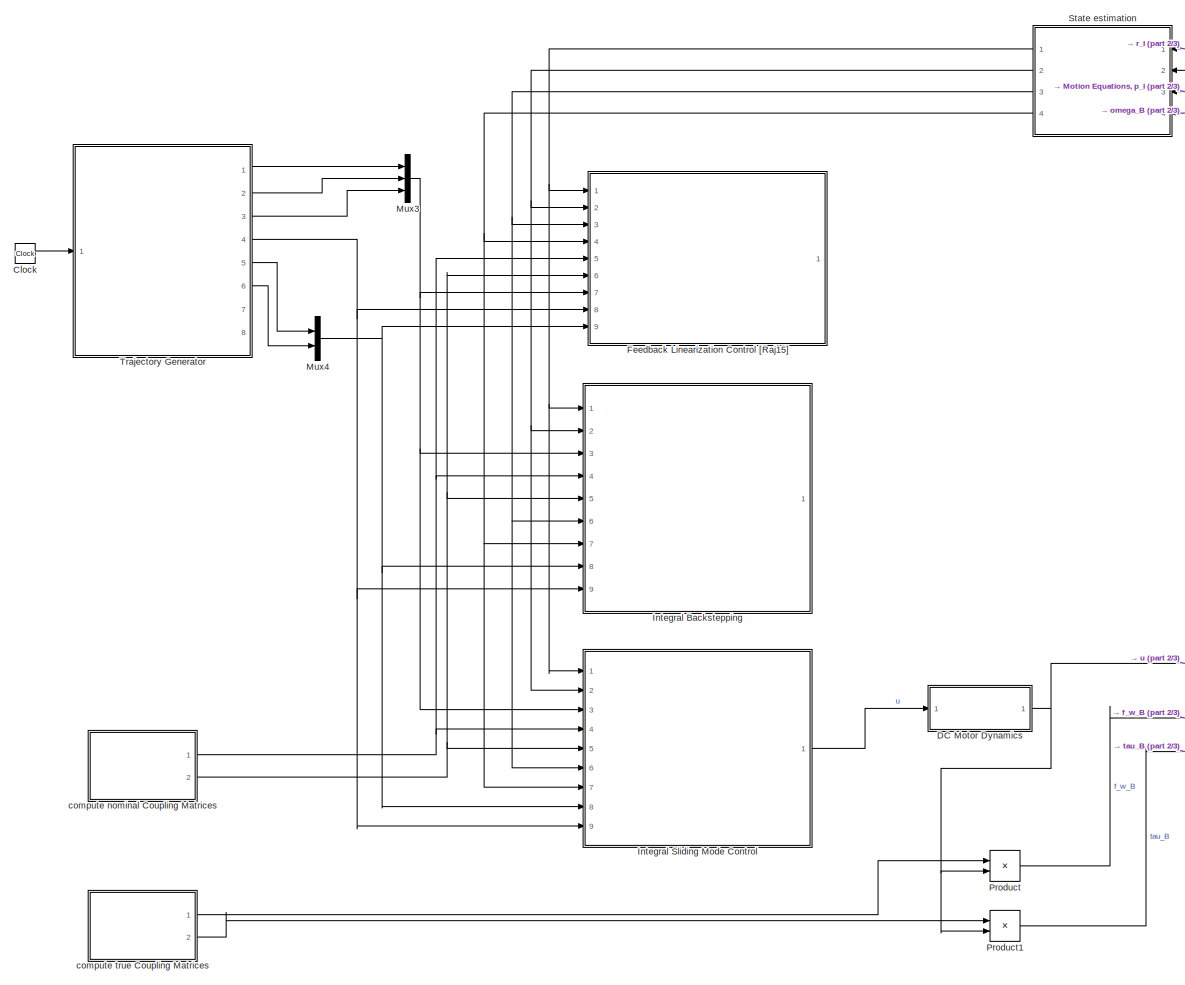
[diagram: root canvas - part 1/3, middle left region]
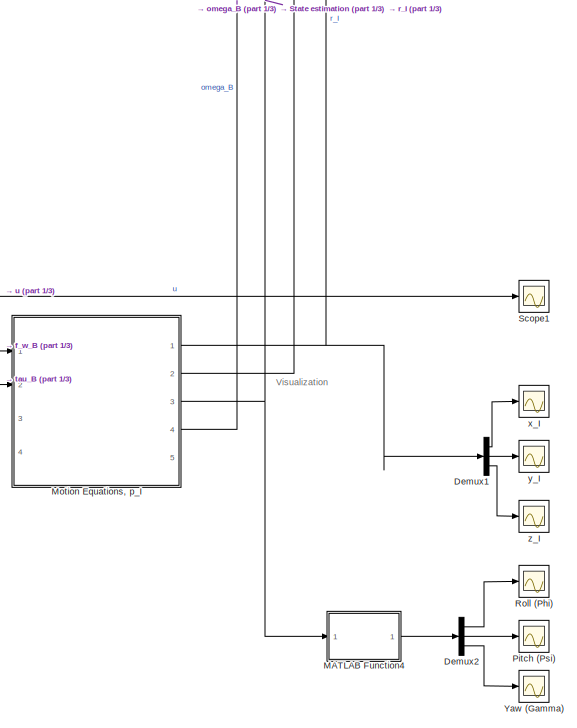
[diagram: root canvas - part 2/3, middle right region]
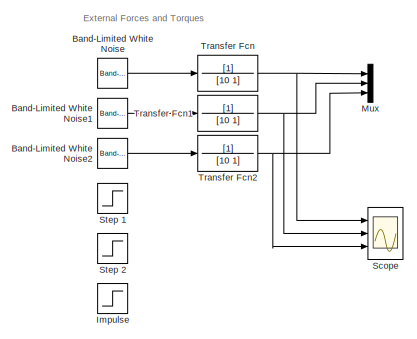
[diagram: root canvas - part 3/3, bottom center region]
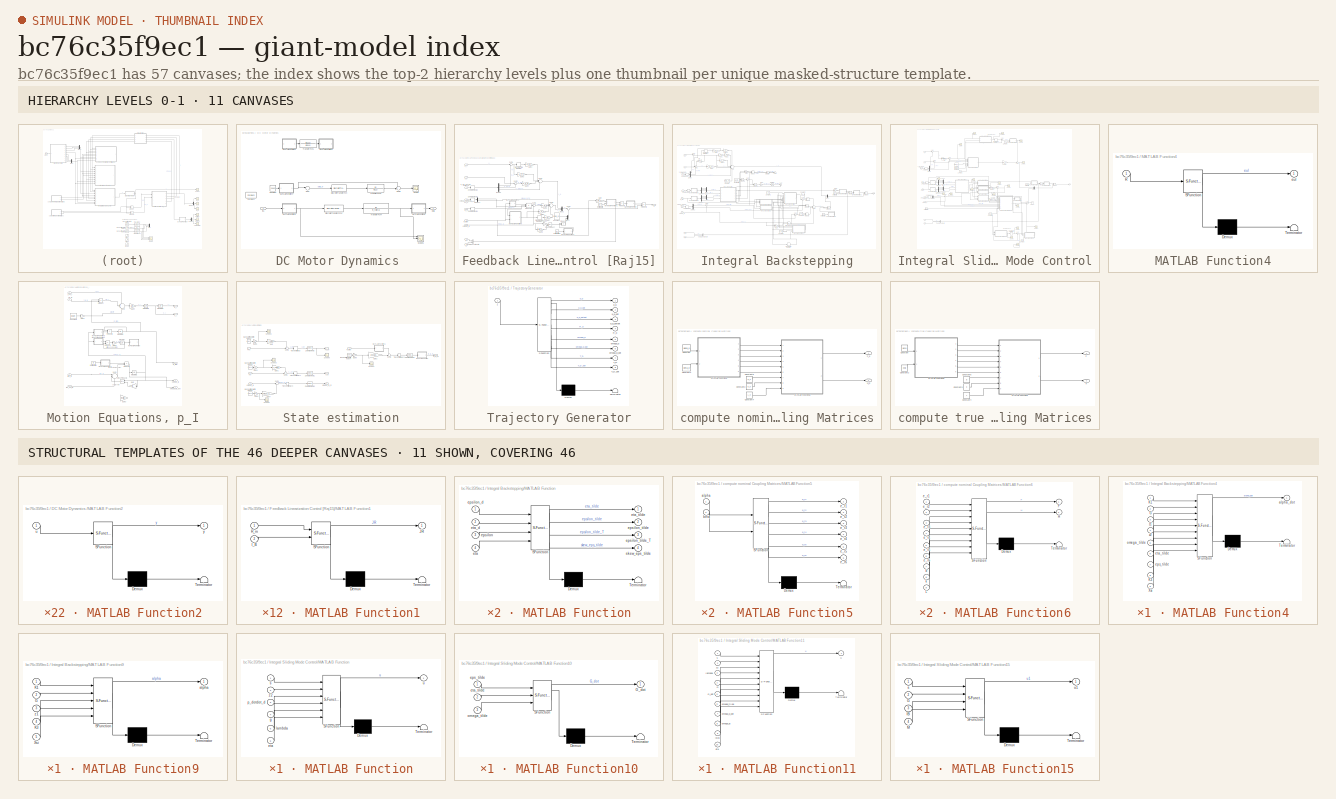
[diagram: thumbnail index - top-2 hierarchy levels (11 canvases) + 11 structural-template representatives of the remaining 46 canvases]
MODEL slx_bc76c35f9ec1
KIND model
CONFIG AbsTol = auto
CONFIG EnableMultiTasking = off
CONFIG FixedStep = 0.0005
CONFIG InitFcn = Parameter
CONFIG MaxStep = auto
CONFIG MinStep = auto
CONFIG RelTol = 1e-3
CONFIG SampleTimeConstraint = Unconstrained
CONFIG Solver = FixedStepAuto
CONFIG SolverName = FixedStepAuto
CONFIG StartTime = 0.0
CONFIG StopTime = 20
BLOCK [Reference] Band-Limited White Noise  REF=simulink/Sources/Band-Limited
White Noise
  Ports = [0, 1]
  SourceBlock = simulink/Sources/Band-Limited\nWhite Noise
  SourceProductBaseCode = SL
  SourceProductName = Simulink
  SourceType = Band-Limited White Noise.
BLOCK [Reference] Band-Limited White Noise1  REF=simulink/Sources/Band-Limited
White Noise
  Ports = [0, 1]
  SourceBlock = simulink/Sources/Band-Limited\nWhite Noise
  SourceProductBaseCode = SL
  SourceProductName = Simulink
  SourceType = Band-Limited White Noise.
BLOCK [Reference] Band-Limited White Noise2  REF=simulink/Sources/Band-Limited
White Noise
  Ports = [0, 1]
  SourceBlock = simulink/Sources/Band-Limited\nWhite Noise
  SourceProductBaseCode = SL
  SourceProductName = Simulink
  SourceType = Band-Limited White Noise.
BLOCK [Clock] Clock
BLOCK [SubSystem] DC Motor Dynamics 
  Ports = [1, 1]
  RequestExecContextInheritance = off
  TreatAsAtomicUnit = on
BLOCK [Constant] DC Motor Dynamics /Constant
  Commented = on
  Value = 3.3869
BLOCK [DiscreteTransferFcn] DC Motor Dynamics /Discrete Transfer Fcn
  Commented = on
  Denominator = [0.175 0]
  InputPortMap = u0
  Numerator = [1 -0.8]
  Ports = [1, 1]
  SampleTime = Ts
BLOCK [DiscreteTransferFcn] DC Motor Dynamics /Discrete Transfer Fcn1
  Denominator = [K_0 0]
  InputPortMap = u0
  Numerator = [1 -z_p_0]
  Ports = [1, 1]
  SampleTime = Ts
BLOCK [ForEach] DC Motor Dynamics /For Each
  DisableCoverage = on
  IndexMode = One-based
  Ports = []
BLOCK [Inport] DC Motor Dynamics /In1
  IconDisplay = Port number
  Partition = on
  PartitionDimension = 1
  PartitionOffset = 0
  PartitionWidth = 1
BLOCK [SubSystem] DC Motor Dynamics /MATLAB Function2
  Commented = on
  ErrorFcn = Stateflow.Translate.translate
  PermitHierarchicalResolution = ExplicitOnly
  Ports = [1, 1]
  RequestExecContextInheritance = off
  SFBlockType = MATLAB Function
  TreatAsAtomicUnit = on
BLOCK [Demux] DC Motor Dynamics /MATLAB Function2/ Demux 
  Outputs = 1
  Ports = [1, 1]
BLOCK [S-Function] DC Motor Dynamics /MATLAB Function2/ SFunction 
  EnableBusSupport = on
  FunctionName = sf_sfun
  PortCounts = [1 2]
  Ports = [1, 2]
  SFcnIsStateOwnerBlock = off
  SFunctionDeploymentMode = off
  Tag = Stateflow S-Function pose_ctrl 19
BLOCK [Terminator] DC Motor Dynamics /MATLAB Function2/ Terminator 
BLOCK [Inport] DC Motor Dynamics /MATLAB Function2/u
  IconDisplay = Port number
BLOCK [Outport] DC Motor Dynamics /MATLAB Function2/y
  IconDisplay = Port number
BLOCK [SubSystem] DC Motor Dynamics /MATLAB Function3
  Commented = on
  ErrorFcn = Stateflow.Translate.translate
  PermitHierarchicalResolution = ExplicitOnly
  Ports = [1, 1]
  RequestExecContextInheritance = off
  SFBlockType = MATLAB Function
  TreatAsAtomicUnit = on
BLOCK [Demux] DC Motor Dynamics /MATLAB Function3/ Demux 
  Outputs = 1
  Ports = [1, 1]
BLOCK [S-Function] DC Motor Dynamics /MATLAB Function3/ SFunction 
  EnableBusSupport = on
  FunctionName = sf_sfun
  PortCounts = [1 2]
  Ports = [1, 2]
  SFcnIsStateOwnerBlock = off
  SFunctionDeploymentMode = off
  Tag = Stateflow S-Function pose_ctrl 20
BLOCK [Terminator] DC Motor Dynamics /MATLAB Function3/ Terminator 
BLOCK [Inport] DC Motor Dynamics /MATLAB Function3/u
  IconDisplay = Port number
BLOCK [Outport] DC Motor Dynamics /MATLAB Function3/y
  IconDisplay = Port number
BLOCK [SubSystem] DC Motor Dynamics /MATLAB Function4
  Commented = on
  ErrorFcn = Stateflow.Translate.translate
  PermitHierarchicalResolution = ExplicitOnly
  Ports = [1, 1]
  RequestExecContextInheritance = off
  SFBlockType = MATLAB Function
  TreatAsAtomicUnit = on
BLOCK [Demux] DC Motor Dynamics /MATLAB Function4/ Demux 
  Outputs = 1
  Ports = [1, 1]
BLOCK [S-Function] DC Motor Dynamics /MATLAB Function4/ SFunction 
  EnableBusSupport = on
  FunctionName = sf_sfun
  PortCounts = [1 2]
  Ports = [1, 2]
  SFcnIsStateOwnerBlock = off
  SFunctionDeploymentMode = off
  Tag = Stateflow S-Function pose_ctrl 98
BLOCK [Terminator] DC Motor Dynamics /MATLAB Function4/ Terminator 
BLOCK [Inport] DC Motor Dynamics /MATLAB Function4/u
  IconDisplay = Port number
BLOCK [Outport] DC Motor Dynamics /MATLAB Function4/y
  IconDisplay = Port number
BLOCK [SubSystem] DC Motor Dynamics /MATLAB Function5
  ErrorFcn = Stateflow.Translate.translate
  PermitHierarchicalResolution = ExplicitOnly
  Ports = [1, 1]
  RequestExecContextInheritance = off
  SFBlockType = MATLAB Function
  SystemSampleTime = Ts
  TreatAsAtomicUnit = on
BLOCK [Demux] DC Motor Dynamics /MATLAB Function5/ Demux 
  Outputs = 1
  Ports = [1, 1]
BLOCK [S-Function] DC Motor Dynamics /MATLAB Function5/ SFunction 
  EnableBusSupport = on
  FunctionName = sf_sfun
  PortCounts = [1 2]
  Ports = [1, 2]
  SFcnIsStateOwnerBlock = off
  SFunctionDeploymentMode = off
  Tag = Stateflow S-Function pose_ctrl 99
BLOCK [Terminator] DC Motor Dynamics /MATLAB Function5/ Terminator 
BLOCK [Inport] DC Motor Dynamics /MATLAB Function5/u
  IconDisplay = Port number
BLOCK [Outport] DC Motor Dynamics /MATLAB Function5/y
  IconDisplay = Port number
BLOCK [SubSystem] DC Motor Dynamics /MATLAB Function6
  ErrorFcn = Stateflow.Translate.translate
  PermitHierarchicalResolution = ExplicitOnly
  Ports = [1, 1]
  RequestExecContextInheritance = off
  SFBlockType = MATLAB Function
  TreatAsAtomicUnit = on
BLOCK [Demux] DC Motor Dynamics /MATLAB Function6/ Demux 
  Outputs = 1
  Ports = [1, 1]
BLOCK [S-Function] DC Motor Dynamics /MATLAB Function6/ SFunction 
  EnableBusSupport = on
  FunctionName = sf_sfun
  PortCounts = [1 2]
  Ports = [1, 2]
  SFcnIsStateOwnerBlock = off
  SFunctionDeploymentMode = off
  Tag = Stateflow S-Function pose_ctrl 100
BLOCK [Terminator] DC Motor Dynamics /MATLAB Function6/ Terminator 
BLOCK [Inport] DC Motor Dynamics /MATLAB Function6/u
  IconDisplay = Port number
BLOCK [Outport] DC Motor Dynamics /MATLAB Function6/y
  IconDisplay = Port number
BLOCK [Outport] DC Motor Dynamics /Out1
  ConcatenationDimension = 1
  IconDisplay = Port number
BLOCK [Scope] DC Motor Dynamics /Scope
  Commented = on
  Floating = off
  NumInputPorts = 1
  Ports = [1]
  ScopeSpecificationString = Simulink.scopes.TimeScopeBlockCfg('CurrentConfiguration', extmgr.ConfigurationSet(extmgr.Configuration('Core','General UI',true),extmgr.Configuration('Core','Source UI',true),extmgr.Configuration('Sources','WiredSimulink',true,'DataLoggingVariableName','ScopeData1'),extmgr.Configuration('Visuals','Time Domain',true,'SerializedDisplays',{struct('MinYLimReal','376.971','MaxYLimReal','680.75438','YLa...<+1419ch>
BLOCK [Scope] DC Motor Dynamics /Scope1
  Floating = off
  NumInputPorts = 3
  Ports = [3]
  ScopeSpecificationString = Simulink.scopes.TimeScopeBlockCfg('CurrentConfiguration', extmgr.ConfigurationSet(extmgr.Configuration('Core','General UI',true),extmgr.Configuration('Core','Source UI',true),extmgr.Configuration('Sources','WiredSimulink',true,'DataLoggingVariableName','ScopeData2'),extmgr.Configuration('Visuals','Time Domain',true,'SerializedDisplays',{struct('MinYLimReal','-3413.51419','MaxYLimReal','3696.18081'...<+2072ch>
BLOCK [Sum] DC Motor Dynamics /Sum
  Commented = on
  IconShape = round
  InputSameDT = off
  Inputs = |-+
  OutDataTypeStr = Inherit: Inherit via internal rule
  Ports = [2, 1]
  SaturateOnIntegerOverflow = off
BLOCK [Sum] DC Motor Dynamics /Sum1
  Commented = on
  IconShape = round
  InputSameDT = off
  Inputs = ++|
  OutDataTypeStr = Inherit: Inherit via internal rule
  Ports = [2, 1]
  SaturateOnIntegerOverflow = off
BLOCK [TransferFcn] DC Motor Dynamics /Transfer Fcn1
  Commented = on
  Denominator = [0.01 1]
  Numerator = [0.11 1]
BLOCK [TransferFcn] DC Motor Dynamics /Transfer Fcn2
  Commented = on
  Denominator = [0.1 1]
BLOCK [TransferFcn] DC Motor Dynamics /Transfer Fcn4
  Denominator = [T_rotor 1]
BLOCK [Demux] Demux1
  DisplayOption = bar
  Outputs = 3
  Ports = [1, 3]
BLOCK [Demux] Demux2
  DisplayOption = bar
  Outputs = 3
  Ports = [1, 3]
BLOCK [SubSystem] Feedback Linearization Control [Raj15]
  Ports = [9, 1]
  RequestExecContextInheritance = off
BLOCK [Constant] Feedback Linearization Control [Raj15]/Constant
  Value = [0;0;-g_0]
  VectorParams1D = off
BLOCK [Reference] Feedback Linearization Control [Raj15]/Cross Product  REF=vrlib/Utilities/Cross Product
  Ports = [2, 1]
  SourceBlock = vrlib/Utilities/Cross Product
  SourceProductBaseCode = VR
  SourceProductName = Simulink 3D Animation
  SourceType = Cross Product
BLOCK [Demux] Feedback Linearization Control [Raj15]/Demux
  DisplayOption = bar
  Outputs = 3
  Ports = [1, 3]
BLOCK [Demux] Feedback Linearization Control [Raj15]/Demux1
  DisplayOption = bar
  Outputs = 2
  Ports = [1, 2]
BLOCK [DiscreteIntegrator] Feedback Linearization Control [Raj15]/Discrete-Time Integrator
  ICPrevOutput = DiscIntNeverNeededParam
  ICPrevScaledInput = DiscIntNeverNeededParam
  InitialCondition = [0;0;0]
  InitialConditionSetting = Auto
  Ports = [1, 1]
  SampleTime = Ts
BLOCK [DiscreteIntegrator] Feedback Linearization Control [Raj15]/Discrete-Time Integrator1
  ICPrevOutput = DiscIntNeverNeededParam
  ICPrevScaledInput = DiscIntNeverNeededParam
  InitialCondition = [0;0;0]
  InitialConditionSetting = Auto
  Ports = [1, 1]
  SampleTime = Ts
BLOCK [Inport] Feedback Linearization Control [Raj15]/F
  IconDisplay = Port number
  Port = 5
BLOCK [Gain] Feedback Linearization Control [Raj15]/Gain
  Gain = 1/m_0
  OutDataTypeStr = Inherit: Inherit via internal rule
  ParamDataTypeStr = Inherit: Inherit via internal rule
  SaturateOnIntegerOverflow = off
BLOCK [Gain] Feedback Linearization Control [Raj15]/Gain1
  Gain = -1
  OutDataTypeStr = Inherit: Inherit via internal rule
  ParamDataTypeStr = Inherit: Inherit via internal rule
  SaturateOnIntegerOverflow = off
BLOCK [Gain] Feedback Linearization Control [Raj15]/Gain2
  Gain = K_P_I
  Multiplication = Matrix(K*u)
  OutDataTypeStr = Inherit: Inherit via internal rule
  ParamDataTypeStr = Inherit: Inherit via internal rule
  SaturateOnIntegerOverflow = off
BLOCK [Gain] Feedback Linearization Control [Raj15]/Gain3
  Gain = K_P_P
  Multiplication = Matrix(K*u)
  OutDataTypeStr = Inherit: Inherit via internal rule
  ParamDataTypeStr = Inherit: Inherit via internal rule
  SaturateOnIntegerOverflow = off
BLOCK [Gain] Feedback Linearization Control [Raj15]/Gain4
  Gain = K_P_D
  Multiplication = Matrix(K*u)
  OutDataTypeStr = Inherit: Inherit via internal rule
  ParamDataTypeStr = Inherit: Inherit via internal rule
  SaturateOnIntegerOverflow = off
BLOCK [Gain] Feedback Linearization Control [Raj15]/Gain5
  Gain = K_R_D
  Multiplication = Matrix(K*u)
  OutDataTypeStr = Inherit: Inherit via internal rule
  ParamDataTypeStr = Inherit: Inherit via internal rule
  SaturateOnIntegerOverflow = off
BLOCK [Gain] Feedback Linearization Control [Raj15]/Gain6
  Gain = K_R_P
  Multiplication = Matrix(K*u)
  OutDataTypeStr = Inherit: Inherit via internal rule
  ParamDataTypeStr = Inherit: Inherit via internal rule
  SaturateOnIntegerOverflow = off
BLOCK [Gain] Feedback Linearization Control [Raj15]/Gain7
  Gain = K_R_I
  Multiplication = Matrix(K*u)
  OutDataTypeStr = Inherit: Inherit via internal rule
  ParamDataTypeStr = Inherit: Inherit via internal rule
  SaturateOnIntegerOverflow = off
BLOCK [Gain] Feedback Linearization Control [Raj15]/Gain8
  Gain = IB_0
  Multiplication = Matrix(K*u)
  OutDataTypeStr = Inherit: Inherit via internal rule
  ParamDataTypeStr = Inherit: Inherit via internal rule
  SaturateOnIntegerOverflow = off
BLOCK [Inport] Feedback Linearization Control [Raj15]/H
  IconDisplay = Port number
  Port = 6
BLOCK [Constant] Feedback Linearization Control [Raj15]/Inertia Matrix
  Value = IB_0
  VectorParams1D = off
BLOCK [Constant] Feedback Linearization Control [Raj15]/Inertia Matrix1
  Value = IB_0
  VectorParams1D = off
BLOCK [SubSystem] Feedback Linearization Control [Raj15]/MATLAB Function
  ErrorFcn = Stateflow.Translate.translate
  PermitHierarchicalResolution = ExplicitOnly
  Ports = [1, 1]
  RequestExecContextInheritance = off
  SFBlockType = MATLAB Function
  TreatAsAtomicUnit = on
BLOCK [Demux] Feedback Linearization Control [Raj15]/MATLAB Function/ Demux 
  Outputs = 1
  Ports = [1, 1]
BLOCK [S-Function] Feedback Linearization Control [Raj15]/MATLAB Function/ SFunction 
  EnableBusSupport = on
  FunctionName = sf_sfun
  PortCounts = [1 2]
  Ports = [1, 2]
  SFcnIsStateOwnerBlock = off
  SFunctionDeploymentMode = off
  Tag = Stateflow S-Function pose_ctrl 4
BLOCK [Terminator] Feedback Linearization Control [Raj15]/MATLAB Function/ Terminator 
BLOCK [Inport] Feedback Linearization Control [Raj15]/MATLAB Function/J
  IconDisplay = Port number
BLOCK [Outport] Feedback Linearization Control [Raj15]/MATLAB Function/J_inv
  IconDisplay = Port number
BLOCK [SubSystem] Feedback Linearization Control [Raj15]/MATLAB Function1
  ErrorFcn = Stateflow.Translate.translate
  PermitHierarchicalResolution = ExplicitOnly
  Ports = [2, 1]
  RequestExecContextInheritance = off
  SFBlockType = MATLAB Function
  TreatAsAtomicUnit = on
BLOCK [Demux] Feedback Linearization Control [Raj15]/MATLAB Function1/ Demux 
  Outputs = 1
  Ports = [1, 1]
BLOCK [S-Function] Feedback Linearization Control [Raj15]/MATLAB Function1/ SFunction 
  EnableBusSupport = on
  FunctionName = sf_sfun
  PortCounts = [2 2]
  Ports = [2, 2]
  SFcnIsStateOwnerBlock = off
  SFunctionDeploymentMode = off
  Tag = Stateflow S-Function pose_ctrl 11
BLOCK [Terminator] Feedback Linearization Control [Raj15]/MATLAB Function1/ Terminator 
BLOCK [Inport] Feedback Linearization Control [Raj15]/MATLAB Function1/I_B
  IconDisplay = Port number
  Port = 2
BLOCK [Outport] Feedback Linearization Control [Raj15]/MATLAB Function1/JR
  IconDisplay = Port number
BLOCK [Inport] Feedback Linearization Control [Raj15]/MATLAB Function1/R_m
  IconDisplay = Port number
BLOCK [SubSystem] Feedback Linearization Control [Raj15]/MATLAB Function2
  ErrorFcn = Stateflow.Translate.translate
  PermitHierarchicalResolution = ExplicitOnly
  Ports = [1, 1]
  RequestExecContextInheritance = off
  SFBlockType = MATLAB Function
  TreatAsAtomicUnit = on
BLOCK [Demux] Feedback Linearization Control [Raj15]/MATLAB Function2/ Demux 
  Outputs = 1
  Ports = [1, 1]
BLOCK [S-Function] Feedback Linearization Control [Raj15]/MATLAB Function2/ SFunction 
  EnableBusSupport = on
  FunctionName = sf_sfun
  PortCounts = [1 2]
  Ports = [1, 2]
  SFcnIsStateOwnerBlock = off
  SFunctionDeploymentMode = off
  Tag = Stateflow S-Function pose_ctrl 52
BLOCK [Terminator] Feedback Linearization Control [Raj15]/MATLAB Function2/ Terminator 
BLOCK [Inport] Feedback Linearization Control [Raj15]/MATLAB Function2/I
  IconDisplay = Port number
BLOCK [Outport] Feedback Linearization Control [Raj15]/MATLAB Function2/I_inv
  IconDisplay = Port number
BLOCK [SubSystem] Feedback Linearization Control [Raj15]/MATLAB Function3
  ErrorFcn = Stateflow.Translate.translate
  PermitHierarchicalResolution = ExplicitOnly
  Ports = [1, 1]
  RequestExecContextInheritance = off
  SFBlockType = MATLAB Function
  TreatAsAtomicUnit = on
BLOCK [Demux] Feedback Linearization Control [Raj15]/MATLAB Function3/ Demux 
  Outputs = 1
  Ports = [1, 1]
BLOCK [S-Function] Feedback Linearization Control [Raj15]/MATLAB Function3/ SFunction 
  EnableBusSupport = on
  FunctionName = sf_sfun
  PortCounts = [1 2]
  Ports = [1, 2]
  SFcnIsStateOwnerBlock = off
  SFunctionDeploymentMode = off
  Tag = Stateflow S-Function pose_ctrl 21
BLOCK [Terminator] Feedback Linearization Control [Raj15]/MATLAB Function3/ Terminator 
BLOCK [Inport] Feedback Linearization Control [Raj15]/MATLAB Function3/u
  IconDisplay = Port number
BLOCK [Outport] Feedback Linearization Control [Raj15]/MATLAB Function3/y
  IconDisplay = Port number
BLOCK [SubSystem] Feedback Linearization Control [Raj15]/MATLAB Function5
  ErrorFcn = Stateflow.Translate.translate
  PermitHierarchicalResolution = ExplicitOnly
  Ports = [2, 1]
  RequestExecContextInheritance = off
  SFBlockType = MATLAB Function
  TreatAsAtomicUnit = on
BLOCK [Demux] Feedback Linearization Control [Raj15]/MATLAB Function5/ Demux 
  Outputs = 1
  Ports = [1, 1]
BLOCK [S-Function] Feedback Linearization Control [Raj15]/MATLAB Function5/ SFunction 
  EnableBusSupport = on
  FunctionName = sf_sfun
  PortCounts = [2 2]
  Ports = [2, 2]
  SFcnIsStateOwnerBlock = off
  SFunctionDeploymentMode = off
  Tag = Stateflow S-Function pose_ctrl 22
BLOCK [Terminator] Feedback Linearization Control [Raj15]/MATLAB Function5/ Terminator 
BLOCK [Inport] Feedback Linearization Control [Raj15]/MATLAB Function5/R_BtoI
  IconDisplay = Port number
  Port = 2
BLOCK [Inport] Feedback Linearization Control [Raj15]/MATLAB Function5/R_d
  IconDisplay = Port number
BLOCK [Outport] Feedback Linearization Control [Raj15]/MATLAB Function5/e_R
  IconDisplay = Port number
BLOCK [Mux] Feedback Linearization Control [Raj15]/Mux1
  DisplayOption = bar
  Inputs = 2
  Ports = [2, 1]
BLOCK [Mux] Feedback Linearization Control [Raj15]/Mux2
  DisplayOption = bar
  Inputs = 2
  Ports = [2, 1]
BLOCK [Product] Feedback Linearization Control [Raj15]/Product1
  InputSameDT = off
  Multiplication = Matrix(*)
  OutDataTypeStr = Inherit: Inherit via internal rule
  Ports = [2, 1]
  RndMeth = Floor
  SaturateOnIntegerOverflow = off
BLOCK [Product] Feedback Linearization Control [Raj15]/Product12
  InputSameDT = off
  Inputs = ***
  Multiplication = Matrix(*)
  OutDataTypeStr = Inherit: Inherit via internal rule
  Ports = [3, 1]
  RndMeth = Floor
  SaturateOnIntegerOverflow = off
BLOCK [Product] Feedback Linearization Control [Raj15]/Product2
  InputSameDT = off
  Multiplication = Matrix(*)
  OutDataTypeStr = Inherit: Inherit via internal rule
  Ports = [2, 1]
  RndMeth = Floor
  SaturateOnIntegerOverflow = off
BLOCK [Product] Feedback Linearization Control [Raj15]/Product3
  InputSameDT = off
  Multiplication = Matrix(*)
  OutDataTypeStr = Inherit: Inherit via internal rule
  Ports = [2, 1]
  RndMeth = Floor
  SaturateOnIntegerOverflow = off
BLOCK [Inport] Feedback Linearization Control [Raj15]/R_BtoI 
  IconDisplay = Port number
  Port = 3
BLOCK [Inport] Feedback Linearization Control [Raj15]/R_d
  IconDisplay = Port number
  Port = 8
BLOCK [Sum] Feedback Linearization Control [Raj15]/Sum1
  IconShape = round
  InputSameDT = off
  Inputs = |+-
  OutDataTypeStr = Inherit: Inherit via internal rule
  Ports = [2, 1]
  SaturateOnIntegerOverflow = off
BLOCK [Sum] Feedback Linearization Control [Raj15]/Sum2
  IconShape = round
  InputSameDT = off
  Inputs = |---+
  OutDataTypeStr = Inherit: Inherit via internal rule
  Ports = [4, 1]
  SaturateOnIntegerOverflow = off
BLOCK [Sum] Feedback Linearization Control [Raj15]/Sum3
  IconShape = round
  InputSameDT = off
  Inputs = |+-
  OutDataTypeStr = Inherit: Inherit via internal rule
  Ports = [2, 1]
  SaturateOnIntegerOverflow = off
BLOCK [Sum] Feedback Linearization Control [Raj15]/Sum4
  IconShape = round
  InputSameDT = off
  Inputs = |+-
  OutDataTypeStr = Inherit: Inherit via internal rule
  Ports = [2, 1]
  SaturateOnIntegerOverflow = off
BLOCK [Sum] Feedback Linearization Control [Raj15]/Sum5
  IconShape = round
  InputSameDT = off
  Inputs = |-+
  OutDataTypeStr = Inherit: Inherit via internal rule
  Ports = [2, 1]
  SaturateOnIntegerOverflow = off
BLOCK [Sum] Feedback Linearization Control [Raj15]/Sum6
  IconShape = round
  InputSameDT = off
  Inputs = |+---
  OutDataTypeStr = Inherit: Inherit via internal rule
  Ports = [4, 1]
  SaturateOnIntegerOverflow = off
BLOCK [Concatenate] Feedback Linearization Control [Raj15]/Vector Concatenate
  Mode = Multidimensional array
  Ports = [2, 1]
BLOCK [ZeroOrderHold] Feedback Linearization Control [Raj15]/Zero-Order Hold2
  SampleTime = Ts
BLOCK [ZeroOrderHold] Feedback Linearization Control [Raj15]/Zero-Order Hold3
  SampleTime = Ts
BLOCK [ZeroOrderHold] Feedback Linearization Control [Raj15]/Zero-Order Hold4
  SampleTime = Ts
BLOCK [Inport] Feedback Linearization Control [Raj15]/omega_B
  IconDisplay = Port number
  Port = 4
BLOCK [Inport] Feedback Linearization Control [Raj15]/omega_d, omega_dot_d
  IconDisplay = Port number
  Port = 9
BLOCK [Inport] Feedback Linearization Control [Raj15]/p_I 
  IconDisplay = Port number
BLOCK [Inport] Feedback Linearization Control [Raj15]/p_d, p_dot_d, p_dotdot_d
  IconDisplay = Port number
  Port = 7
BLOCK [Outport] Feedback Linearization Control [Raj15]/u
  IconDisplay = Port number
BLOCK [Inport] Feedback Linearization Control [Raj15]/v_I
  IconDisplay = Port number
  Port = 2
BLOCK [Step] Impulse
  After = [0,0,0]'
  Before = [6,0,6]'
  SampleTime = 0
  Time = 0.1
  VectorParams1D = off
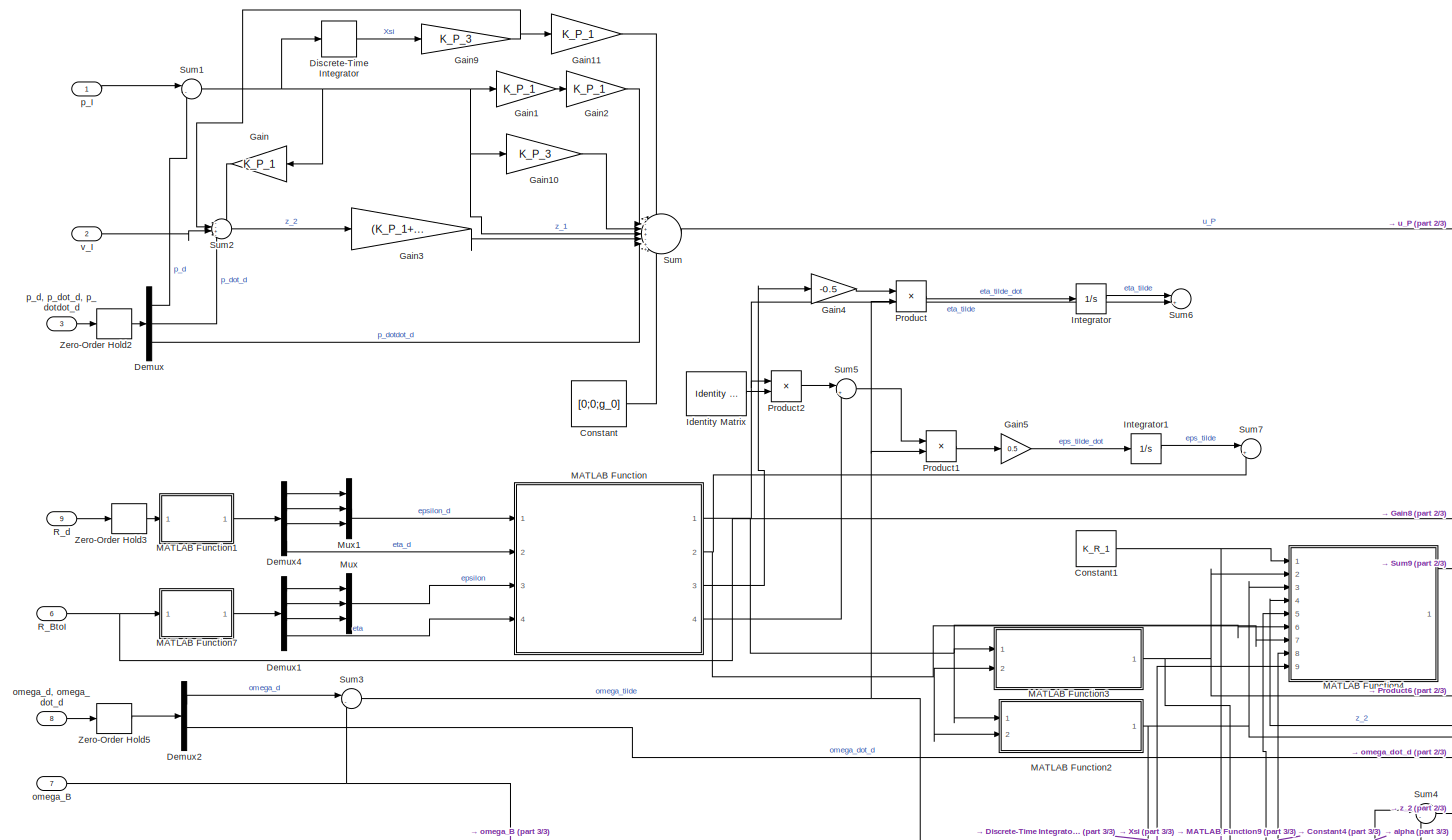
[diagram: Integral Backstepping - part 1/3, middle left region]
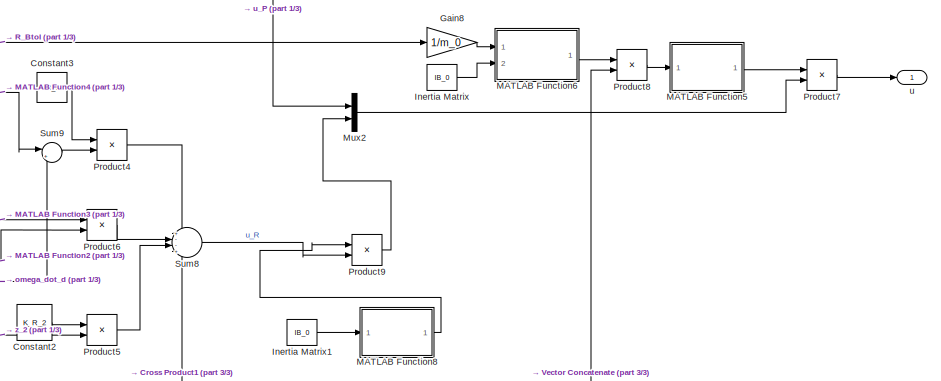
[diagram: Integral Backstepping - part 2/3, middle right region]
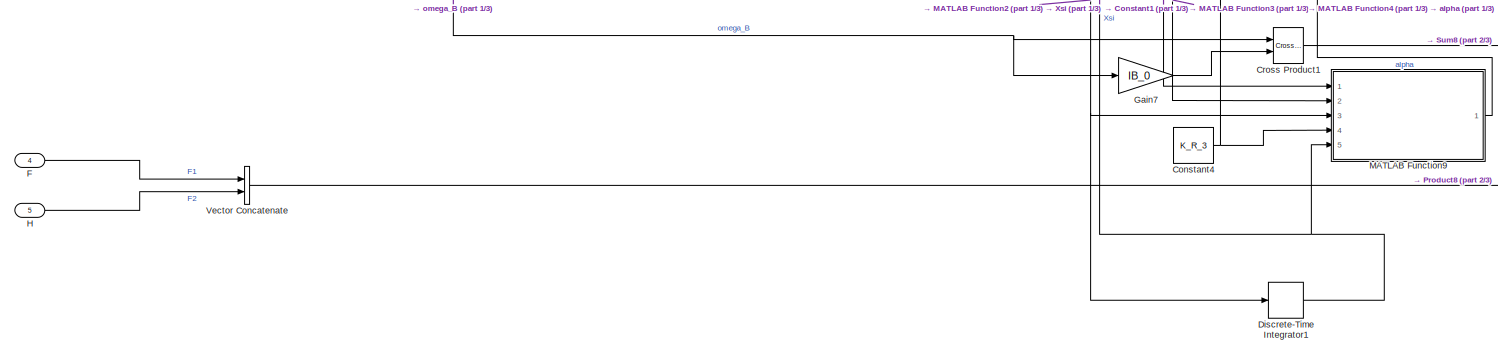
[diagram: Integral Backstepping - part 3/3, bottom center region]
BLOCK [SubSystem] Integral Backstepping
  Ports = [9, 1]
  RequestExecContextInheritance = off
BLOCK [Constant] Integral Backstepping/Constant
  Value = [0;0;g_0]
  VectorParams1D = off
BLOCK [Constant] Integral Backstepping/Constant1
  Value = K_R_1
  VectorParams1D = off
BLOCK [Constant] Integral Backstepping/Constant2
  Value = K_R_2
  VectorParams1D = off
BLOCK [Constant] Integral Backstepping/Constant3
  Value = IB_0
  VectorParams1D = off
BLOCK [Constant] Integral Backstepping/Constant4
  Value = K_R_3
  VectorParams1D = off
BLOCK [Reference] Integral Backstepping/Cross Product1  REF=vrlib/Utilities/Cross Product
  Ports = [2, 1]
  SourceBlock = vrlib/Utilities/Cross Product
  SourceProductBaseCode = VR
  SourceProductName = Simulink 3D Animation
  SourceType = Cross Product
BLOCK [Demux] Integral Backstepping/Demux
  DisplayOption = bar
  Outputs = 3
  Ports = [1, 3]
BLOCK [Demux] Integral Backstepping/Demux1
  DisplayOption = bar
  Ports = [1, 4]
BLOCK [Demux] Integral Backstepping/Demux2
  DisplayOption = bar
  Outputs = 2
  Ports = [1, 2]
BLOCK [Demux] Integral Backstepping/Demux4
  DisplayOption = bar
  Ports = [1, 4]
BLOCK [DiscreteIntegrator] Integral Backstepping/Discrete-Time Integrator
  ICPrevOutput = DiscIntNeverNeededParam
  ICPrevScaledInput = DiscIntNeverNeededParam
  InitialCondition = [0;0;0]
  InitialConditionSetting = Auto
  Ports = [1, 1]
  SampleTime = Ts
BLOCK [DiscreteIntegrator] Integral Backstepping/Discrete-Time Integrator1
  ICPrevOutput = DiscIntNeverNeededParam
  ICPrevScaledInput = DiscIntNeverNeededParam
  InitialCondition = [0;0;0;0]
  InitialConditionSetting = Auto
  Ports = [1, 1]
  SampleTime = Ts
BLOCK [Inport] Integral Backstepping/F
  IconDisplay = Port number
  Port = 4
BLOCK [Gain] Integral Backstepping/Gain
  Gain = K_P_1
  Multiplication = Matrix(K*u)
  OutDataTypeStr = Inherit: Inherit via internal rule
  ParamDataTypeStr = Inherit: Inherit via internal rule
  SaturateOnIntegerOverflow = off
BLOCK [Gain] Integral Backstepping/Gain1
  Gain = K_P_1
  Multiplication = Matrix(K*u)
  OutDataTypeStr = Inherit: Inherit via internal rule
  ParamDataTypeStr = Inherit: Inherit via internal rule
  SaturateOnIntegerOverflow = off
BLOCK [Gain] Integral Backstepping/Gain10
  Gain = K_P_3
  Multiplication = Matrix(K*u)
  OutDataTypeStr = Inherit: Inherit via internal rule
  ParamDataTypeStr = Inherit: Inherit via internal rule
  SaturateOnIntegerOverflow = off
BLOCK [Gain] Integral Backstepping/Gain11
  Gain = K_P_1
  Multiplication = Matrix(K*u)
  OutDataTypeStr = Inherit: Inherit via internal rule
  ParamDataTypeStr = Inherit: Inherit via internal rule
  SaturateOnIntegerOverflow = off
BLOCK [Gain] Integral Backstepping/Gain2
  Gain = K_P_1
  Multiplication = Matrix(K*u)
  OutDataTypeStr = Inherit: Inherit via internal rule
  ParamDataTypeStr = Inherit: Inherit via internal rule
  SaturateOnIntegerOverflow = off
BLOCK [Gain] Integral Backstepping/Gain3
  Gain = (K_P_1+K_P_2)
  Multiplication = Matrix(K*u)
  OutDataTypeStr = Inherit: Inherit via internal rule
  ParamDataTypeStr = Inherit: Inherit via internal rule
  SaturateOnIntegerOverflow = off
BLOCK [Gain] Integral Backstepping/Gain4
  Commented = on
  Gain = -0.5
  OutDataTypeStr = Inherit: Inherit via internal rule
  ParamDataTypeStr = Inherit: Inherit via internal rule
  SaturateOnIntegerOverflow = off
BLOCK [Gain] Integral Backstepping/Gain5
  Commented = on
  Gain = 0.5
  OutDataTypeStr = Inherit: Inherit via internal rule
  ParamDataTypeStr = Inherit: Inherit via internal rule
  SaturateOnIntegerOverflow = off
BLOCK [Gain] Integral Backstepping/Gain7
  Gain = IB_0
  Multiplication = Matrix(K*u)
  OutDataTypeStr = Inherit: Inherit via internal rule
  ParamDataTypeStr = Inherit: Inherit via internal rule
  SaturateOnIntegerOverflow = off
BLOCK [Gain] Integral Backstepping/Gain8
  Gain = 1/m_0
  OutDataTypeStr = Inherit: Inherit via internal rule
  ParamDataTypeStr = Inherit: Inherit via internal rule
  SaturateOnIntegerOverflow = off
BLOCK [Gain] Integral Backstepping/Gain9
  Gain = K_P_3
  Multiplication = Matrix(K*u)
  OutDataTypeStr = Inherit: Inherit via internal rule
  ParamDataTypeStr = Inherit: Inherit via internal rule
  SaturateOnIntegerOverflow = off
BLOCK [Inport] Integral Backstepping/H
  IconDisplay = Port number
  Port = 5
BLOCK [Reference] Integral Backstepping/Identity Matrix  REF=dspmtrx3/Identity Matrix
  Commented = on
  Ports = [0, 1]
  SourceBlock = dspmtrx3/Identity Matrix
  SourceProductBaseCode = DS
  SourceProductName = DSP System Toolbox
  SourceType = Identity Matrix
BLOCK [Constant] Integral Backstepping/Inertia Matrix
  Value = IB_0
  VectorParams1D = off
BLOCK [Constant] Integral Backstepping/Inertia Matrix1
  Value = IB_0
  VectorParams1D = off
BLOCK [Integrator] Integral Backstepping/Integrator
  Commented = on
  InitialCondition = 1
  Ports = [1, 1]
BLOCK [Integrator] Integral Backstepping/Integrator1
  Commented = on
  InitialCondition = [0;0;0]
  Ports = [1, 1]
BLOCK [SubSystem] Integral Backstepping/MATLAB Function
  ErrorFcn = Stateflow.Translate.translate
  PermitHierarchicalResolution = ExplicitOnly
  Ports = [4, 4]
  RequestExecContextInheritance = off
  SFBlockType = MATLAB Function
  TreatAsAtomicUnit = on
BLOCK [Demux] Integral Backstepping/MATLAB Function/ Demux 
  Outputs = 1
  Ports = [1, 1]
BLOCK [S-Function] Integral Backstepping/MATLAB Function/ SFunction 
  EnableBusSupport = on
  FunctionName = sf_sfun
  PortCounts = [4 5]
  Ports = [4, 5]
  SFcnIsStateOwnerBlock = off
  SFunctionDeploymentMode = off
  Tag = Stateflow S-Function pose_ctrl 45
BLOCK [Terminator] Integral Backstepping/MATLAB Function/ Terminator 
BLOCK [Inport] Integral Backstepping/MATLAB Function/epsilon
  IconDisplay = Port number
  Port = 3
BLOCK [Inport] Integral Backstepping/MATLAB Function/epsilon_d
  IconDisplay = Port number
BLOCK [Outport] Integral Backstepping/MATLAB Function/epsilon_tilde
  IconDisplay = Port number
  Port = 2
BLOCK [Outport] Integral Backstepping/MATLAB Function/epsilon_tilde_T
  IconDisplay = Port number
  Port = 3
BLOCK [Inport] Integral Backstepping/MATLAB Function/eta
  IconDisplay = Port number
  Port = 4
BLOCK [Inport] Integral Backstepping/MATLAB Function/eta_d
  IconDisplay = Port number
  Port = 2
BLOCK [Outport] Integral Backstepping/MATLAB Function/eta_tilde
  IconDisplay = Port number
BLOCK [Outport] Integral Backstepping/MATLAB Function/skew_eps_tilde
  IconDisplay = Port number
  Port = 4
BLOCK [SubSystem] Integral Backstepping/MATLAB Function1
  ErrorFcn = Stateflow.Translate.translate
  PermitHierarchicalResolution = ExplicitOnly
  Ports = [1, 1]
  RequestExecContextInheritance = off
  SFBlockType = MATLAB Function
  TreatAsAtomicUnit = on
BLOCK [Demux] Integral Backstepping/MATLAB Function1/ Demux 
  Outputs = 1
  Ports = [1, 1]
BLOCK [S-Function] Integral Backstepping/MATLAB Function1/ SFunction 
  EnableBusSupport = on
  FunctionName = sf_sfun
  PortCounts = [1 2]
  Ports = [1, 2]
  SFcnIsStateOwnerBlock = off
  SFunctionDeploymentMode = off
  Tag = Stateflow S-Function pose_ctrl 44
BLOCK [Terminator] Integral Backstepping/MATLAB Function1/ Terminator 
BLOCK [Inport] Integral Backstepping/MATLAB Function1/R
  IconDisplay = Port number
BLOCK [Outport] Integral Backstepping/MATLAB Function1/q
  IconDisplay = Port number
BLOCK [SubSystem] Integral Backstepping/MATLAB Function2
  ErrorFcn = Stateflow.Translate.translate
  PermitHierarchicalResolution = ExplicitOnly
  Ports = [2, 1]
  RequestExecContextInheritance = off
  SFBlockType = MATLAB Function
  TreatAsAtomicUnit = on
BLOCK [Demux] Integral Backstepping/MATLAB Function2/ Demux 
  Outputs = 1
  Ports = [1, 1]
BLOCK [S-Function] Integral Backstepping/MATLAB Function2/ SFunction 
  EnableBusSupport = on
  FunctionName = sf_sfun
  PortCounts = [2 2]
  Ports = [2, 2]
  SFcnIsStateOwnerBlock = off
  SFunctionDeploymentMode = off
  Tag = Stateflow S-Function pose_ctrl 46
BLOCK [Terminator] Integral Backstepping/MATLAB Function2/ Terminator 
BLOCK [Inport] Integral Backstepping/MATLAB Function2/eps_tilde
  IconDisplay = Port number
  Port = 2
BLOCK [Inport] Integral Backstepping/MATLAB Function2/eta_tilde
  IconDisplay = Port number
BLOCK [Outport] Integral Backstepping/MATLAB Function2/z1
  IconDisplay = Port number
BLOCK [SubSystem] Integral Backstepping/MATLAB Function3
  ErrorFcn = Stateflow.Translate.translate
  PermitHierarchicalResolution = ExplicitOnly
  Ports = [2, 1]
  RequestExecContextInheritance = off
  SFBlockType = MATLAB Function
  TreatAsAtomicUnit = on
BLOCK [Demux] Integral Backstepping/MATLAB Function3/ Demux 
  Outputs = 1
  Ports = [1, 1]
BLOCK [S-Function] Integral Backstepping/MATLAB Function3/ SFunction 
  EnableBusSupport = on
  FunctionName = sf_sfun
  PortCounts = [2 2]
  Ports = [2, 2]
  SFcnIsStateOwnerBlock = off
  SFunctionDeploymentMode = off
  Tag = Stateflow S-Function pose_ctrl 47
BLOCK [Terminator] Integral Backstepping/MATLAB Function3/ Terminator 
BLOCK [Outport] Integral Backstepping/MATLAB Function3/G
  IconDisplay = Port number
BLOCK [Inport] Integral Backstepping/MATLAB Function3/eps_tilde
  IconDisplay = Port number
  Port = 2
BLOCK [Inport] Integral Backstepping/MATLAB Function3/eta_tilde
  IconDisplay = Port number
BLOCK [SubSystem] Integral Backstepping/MATLAB Function4
  ErrorFcn = Stateflow.Translate.translate
  PermitHierarchicalResolution = ExplicitOnly
  Ports = [9, 1]
  RequestExecContextInheritance = off
  SFBlockType = MATLAB Function
  TreatAsAtomicUnit = on
BLOCK [Demux] Integral Backstepping/MATLAB Function4/ Demux 
  Outputs = 1
  Ports = [1, 1]
BLOCK [S-Function] Integral Backstepping/MATLAB Function4/ SFunction 
  EnableBusSupport = on
  FunctionName = sf_sfun
  PortCounts = [9 2]
  Ports = [9, 2]
  SFcnIsStateOwnerBlock = off
  SFunctionDeploymentMode = off
  Tag = Stateflow S-Function pose_ctrl 48
BLOCK [Terminator] Integral Backstepping/MATLAB Function4/ Terminator 
BLOCK [Inport] Integral Backstepping/MATLAB Function4/G
  IconDisplay = Port number
  Port = 2
BLOCK [Inport] Integral Backstepping/MATLAB Function4/K1
  IconDisplay = Port number
BLOCK [Inport] Integral Backstepping/MATLAB Function4/K3
  IconDisplay = Port number
  Port = 8
BLOCK [Inport] Integral Backstepping/MATLAB Function4/Xsi
  IconDisplay = Port number
  Port = 9
BLOCK [Outport] Integral Backstepping/MATLAB Function4/alpha_dot
  IconDisplay = Port number
BLOCK [Inport] Integral Backstepping/MATLAB Function4/eps_tilde
  IconDisplay = Port number
  Port = 7
BLOCK [Inport] Integral Backstepping/MATLAB Function4/eta_tilde
  IconDisplay = Port number
  Port = 6
BLOCK [Inport] Integral Backstepping/MATLAB Function4/omega_tilde
  IconDisplay = Port number
  Port = 5
BLOCK [Inport] Integral Backstepping/MATLAB Function4/z1
  IconDisplay = Port number
  Port = 3
BLOCK [Inport] Integral Backstepping/MATLAB Function4/z2
  IconDisplay = Port number
  Port = 4
BLOCK [SubSystem] Integral Backstepping/MATLAB Function5
  ErrorFcn = Stateflow.Translate.translate
  PermitHierarchicalResolution = ExplicitOnly
  Ports = [1, 1]
  RequestExecContextInheritance = off
  SFBlockType = MATLAB Function
  TreatAsAtomicUnit = on
BLOCK [Demux] Integral Backstepping/MATLAB Function5/ Demux 
  Outputs = 1
  Ports = [1, 1]
BLOCK [S-Function] Integral Backstepping/MATLAB Function5/ SFunction 
  EnableBusSupport = on
  FunctionName = sf_sfun
  PortCounts = [1 2]
  Ports = [1, 2]
  SFcnIsStateOwnerBlock = off
  SFunctionDeploymentMode = off
  Tag = Stateflow S-Function pose_ctrl 49
BLOCK [Terminator] Integral Backstepping/MATLAB Function5/ Terminator 
BLOCK [Inport] Integral Backstepping/MATLAB Function5/J
  IconDisplay = Port number
BLOCK [Outport] Integral Backstepping/MATLAB Function5/J_inv
  IconDisplay = Port number
BLOCK [SubSystem] Integral Backstepping/MATLAB Function6
  ErrorFcn = Stateflow.Translate.translate
  PermitHierarchicalResolution = ExplicitOnly
  Ports = [2, 1]
  RequestExecContextInheritance = off
  SFBlockType = MATLAB Function
  TreatAsAtomicUnit = on
BLOCK [Demux] Integral Backstepping/MATLAB Function6/ Demux 
  Outputs = 1
  Ports = [1, 1]
BLOCK [S-Function] Integral Backstepping/MATLAB Function6/ SFunction 
  EnableBusSupport = on
  FunctionName = sf_sfun
  PortCounts = [2 2]
  Ports = [2, 2]
  SFcnIsStateOwnerBlock = off
  SFunctionDeploymentMode = off
  Tag = Stateflow S-Function pose_ctrl 50
BLOCK [Terminator] Integral Backstepping/MATLAB Function6/ Terminator 
BLOCK [Inport] Integral Backstepping/MATLAB Function6/I_B
  IconDisplay = Port number
  Port = 2
BLOCK [Outport] Integral Backstepping/MATLAB Function6/JR
  IconDisplay = Port number
BLOCK [Inport] Integral Backstepping/MATLAB Function6/R_m
  IconDisplay = Port number
BLOCK [SubSystem] Integral Backstepping/MATLAB Function7
  ErrorFcn = Stateflow.Translate.translate
  PermitHierarchicalResolution = ExplicitOnly
  Ports = [1, 1]
  RequestExecContextInheritance = off
  SFBlockType = MATLAB Function
  TreatAsAtomicUnit = on
BLOCK [Demux] Integral Backstepping/MATLAB Function7/ Demux 
  Outputs = 1
  Ports = [1, 1]
BLOCK [S-Function] Integral Backstepping/MATLAB Function7/ SFunction 
  EnableBusSupport = on
  FunctionName = sf_sfun
  PortCounts = [1 2]
  Ports = [1, 2]
  SFcnIsStateOwnerBlock = off
  SFunctionDeploymentMode = off
  Tag = Stateflow S-Function pose_ctrl 51
BLOCK [Terminator] Integral Backstepping/MATLAB Function7/ Terminator 
BLOCK [Inport] Integral Backstepping/MATLAB Function7/R
  IconDisplay = Port number
BLOCK [Outport] Integral Backstepping/MATLAB Function7/q
  IconDisplay = Port number
BLOCK [SubSystem] Integral Backstepping/MATLAB Function8
  ErrorFcn = Stateflow.Translate.translate
  PermitHierarchicalResolution = ExplicitOnly
  Ports = [1, 1]
  RequestExecContextInheritance = off
  SFBlockType = MATLAB Function
  TreatAsAtomicUnit = on
BLOCK [Demux] Integral Backstepping/MATLAB Function8/ Demux 
  Outputs = 1
  Ports = [1, 1]
BLOCK [S-Function] Integral Backstepping/MATLAB Function8/ SFunction 
  EnableBusSupport = on
  FunctionName = sf_sfun
  PortCounts = [1 2]
  Ports = [1, 2]
  SFcnIsStateOwnerBlock = off
  SFunctionDeploymentMode = off
  Tag = Stateflow S-Function pose_ctrl 55
BLOCK [Terminator] Integral Backstepping/MATLAB Function8/ Terminator 
BLOCK [Inport] Integral Backstepping/MATLAB Function8/I
  IconDisplay = Port number
BLOCK [Outport] Integral Backstepping/MATLAB Function8/I_inv
  IconDisplay = Port number
BLOCK [SubSystem] Integral Backstepping/MATLAB Function9
  ErrorFcn = Stateflow.Translate.translate
  PermitHierarchicalResolution = ExplicitOnly
  Ports = [5, 1]
  RequestExecContextInheritance = off
  SFBlockType = MATLAB Function
  TreatAsAtomicUnit = on
BLOCK [Demux] Integral Backstepping/MATLAB Function9/ Demux 
  Outputs = 1
  Ports = [1, 1]
BLOCK [S-Function] Integral Backstepping/MATLAB Function9/ SFunction 
  EnableBusSupport = on
  FunctionName = sf_sfun
  PortCounts = [5 2]
  Ports = [5, 2]
  SFcnIsStateOwnerBlock = off
  SFunctionDeploymentMode = off
  Tag = Stateflow S-Function pose_ctrl 65
BLOCK [Terminator] Integral Backstepping/MATLAB Function9/ Terminator 
BLOCK [Inport] Integral Backstepping/MATLAB Function9/G
  IconDisplay = Port number
  Port = 2
BLOCK [Inport] Integral Backstepping/MATLAB Function9/K1
  IconDisplay = Port number
BLOCK [Inport] Integral Backstepping/MATLAB Function9/K3
  IconDisplay = Port number
  Port = 4
BLOCK [Inport] Integral Backstepping/MATLAB Function9/Xsi
  IconDisplay = Port number
  Port = 5
BLOCK [Outport] Integral Backstepping/MATLAB Function9/alpha
  IconDisplay = Port number
BLOCK [Inport] Integral Backstepping/MATLAB Function9/z1
  IconDisplay = Port number
  Port = 3
BLOCK [Mux] Integral Backstepping/Mux
  DisplayOption = bar
  Inputs = 3
  Ports = [3, 1]
BLOCK [Mux] Integral Backstepping/Mux1
  DisplayOption = bar
  Inputs = 3
  Ports = [3, 1]
BLOCK [Mux] Integral Backstepping/Mux2
  DisplayOption = bar
  Inputs = 2
  Ports = [2, 1]
BLOCK [Product] Integral Backstepping/Product
  Commented = on
  InputSameDT = off
  Multiplication = Matrix(*)
  OutDataTypeStr = Inherit: Inherit via internal rule
  Ports = [2, 1]
  RndMeth = Floor
  SaturateOnIntegerOverflow = off
BLOCK [Product] Integral Backstepping/Product1
  Commented = on
  InputSameDT = off
  Multiplication = Matrix(*)
  OutDataTypeStr = Inherit: Inherit via internal rule
  Ports = [2, 1]
  RndMeth = Floor
  SaturateOnIntegerOverflow = off
BLOCK [Product] Integral Backstepping/Product2
  Commented = on
  InputSameDT = off
  OutDataTypeStr = Inherit: Inherit via internal rule
  Ports = [2, 1]
  RndMeth = Floor
  SaturateOnIntegerOverflow = off
BLOCK [Product] Integral Backstepping/Product4
  InputSameDT = off
  Multiplication = Matrix(*)
  OutDataTypeStr = Inherit: Inherit via internal rule
  Ports = [2, 1]
  RndMeth = Floor
  SaturateOnIntegerOverflow = off
BLOCK [Product] Integral Backstepping/Product5
  InputSameDT = off
  Multiplication = Matrix(*)
  OutDataTypeStr = Inherit: Inherit via internal rule
  Ports = [2, 1]
  RndMeth = Floor
  SaturateOnIntegerOverflow = off
BLOCK [Product] Integral Backstepping/Product6
  InputSameDT = off
  Multiplication = Matrix(*)
  OutDataTypeStr = Inherit: Inherit via internal rule
  Ports = [2, 1]
  RndMeth = Floor
  SaturateOnIntegerOverflow = off
BLOCK [Product] Integral Backstepping/Product7
  InputSameDT = off
  Multiplication = Matrix(*)
  OutDataTypeStr = Inherit: Inherit via internal rule
  Ports = [2, 1]
  RndMeth = Floor
  SaturateOnIntegerOverflow = off
BLOCK [Product] Integral Backstepping/Product8
  InputSameDT = off
  Multiplication = Matrix(*)
  OutDataTypeStr = Inherit: Inherit via internal rule
  Ports = [2, 1]
  RndMeth = Floor
  SaturateOnIntegerOverflow = off
BLOCK [Product] Integral Backstepping/Product9
  InputSameDT = off
  Multiplication = Matrix(*)
  OutDataTypeStr = Inherit: Inherit via internal rule
  Ports = [2, 1]
  RndMeth = Floor
  SaturateOnIntegerOverflow = off
BLOCK [Inport] Integral Backstepping/R_BtoI
  IconDisplay = Port number
  Port = 6
BLOCK [Inport] Integral Backstepping/R_d
  IconDisplay = Port number
  Port = 9
BLOCK [Sum] Integral Backstepping/Sum
  IconShape = round
  InputSameDT = off
  Inputs = --++-++
  OutDataTypeStr = Inherit: Inherit via internal rule
  Ports = [7, 1]
  SaturateOnIntegerOverflow = off
BLOCK [Sum] Integral Backstepping/Sum1
  IconShape = round
  InputSameDT = off
  Inputs = |-+
  OutDataTypeStr = Inherit: Inherit via internal rule
  Ports = [2, 1]
  SaturateOnIntegerOverflow = off
BLOCK [Sum] Integral Backstepping/Sum2
  IconShape = round
  InputSameDT = off
  Inputs = --+-
  OutDataTypeStr = Inherit: Inherit via internal rule
  Ports = [4, 1]
  SaturateOnIntegerOverflow = off
BLOCK [Sum] Integral Backstepping/Sum3
  IconShape = round
  InputSameDT = off
  Inputs = |-+
  OutDataTypeStr = Inherit: Inherit via internal rule
  Ports = [2, 1]
  SaturateOnIntegerOverflow = off
BLOCK [Sum] Integral Backstepping/Sum4
  IconShape = round
  InputSameDT = off
  Inputs = |-+
  OutDataTypeStr = Inherit: Inherit via internal rule
  Ports = [2, 1]
  SaturateOnIntegerOverflow = off
BLOCK [Sum] Integral Backstepping/Sum5
  Commented = on
  IconShape = round
  InputSameDT = off
  Inputs = |++
  OutDataTypeStr = Inherit: Inherit via internal rule
  Ports = [2, 1]
  SaturateOnIntegerOverflow = off
BLOCK [Sum] Integral Backstepping/Sum6
  Commented = on
  IconShape = round
  InputSameDT = off
  Inputs = |+-
  OutDataTypeStr = Inherit: Inherit via internal rule
  Ports = [2, 1]
  SaturateOnIntegerOverflow = off
BLOCK [Sum] Integral Backstepping/Sum7
  Commented = on
  IconShape = round
  InputSameDT = off
  Inputs = |+-
  OutDataTypeStr = Inherit: Inherit via internal rule
  Ports = [2, 1]
  SaturateOnIntegerOverflow = off
BLOCK [Sum] Integral Backstepping/Sum8
  IconShape = round
  InputSameDT = off
  Inputs = +--+
  OutDataTypeStr = Inherit: Inherit via internal rule
  Ports = [4, 1]
  SaturateOnIntegerOverflow = off
BLOCK [Sum] Integral Backstepping/Sum9
  IconShape = round
  InputSameDT = off
  Inputs = |++
  OutDataTypeStr = Inherit: Inherit via internal rule
  Ports = [2, 1]
  SaturateOnIntegerOverflow = off
BLOCK [Concatenate] Integral Backstepping/Vector Concatenate
  Mode = Multidimensional array
  Ports = [2, 1]
BLOCK [ZeroOrderHold] Integral Backstepping/Zero-Order Hold2
  SampleTime = Ts
BLOCK [ZeroOrderHold] Integral Backstepping/Zero-Order Hold3
  SampleTime = Ts
BLOCK [ZeroOrderHold] Integral Backstepping/Zero-Order Hold5
  SampleTime = Ts
BLOCK [Inport] Integral Backstepping/omega_B
  IconDisplay = Port number
  Port = 7
BLOCK [Inport] Integral Backstepping/omega_d, omega_dot_d
  IconDisplay = Port number
  Port = 8
BLOCK [Inport] Integral Backstepping/p_I
  IconDisplay = Port number
BLOCK [Inport] Integral Backstepping/p_d, p_dot_d, p_dotdot_d
  IconDisplay = Port number
  Port = 3
BLOCK [Outport] Integral Backstepping/u
  IconDisplay = Port number
BLOCK [Inport] Integral Backstepping/v_I
  IconDisplay = Port number
  Port = 2
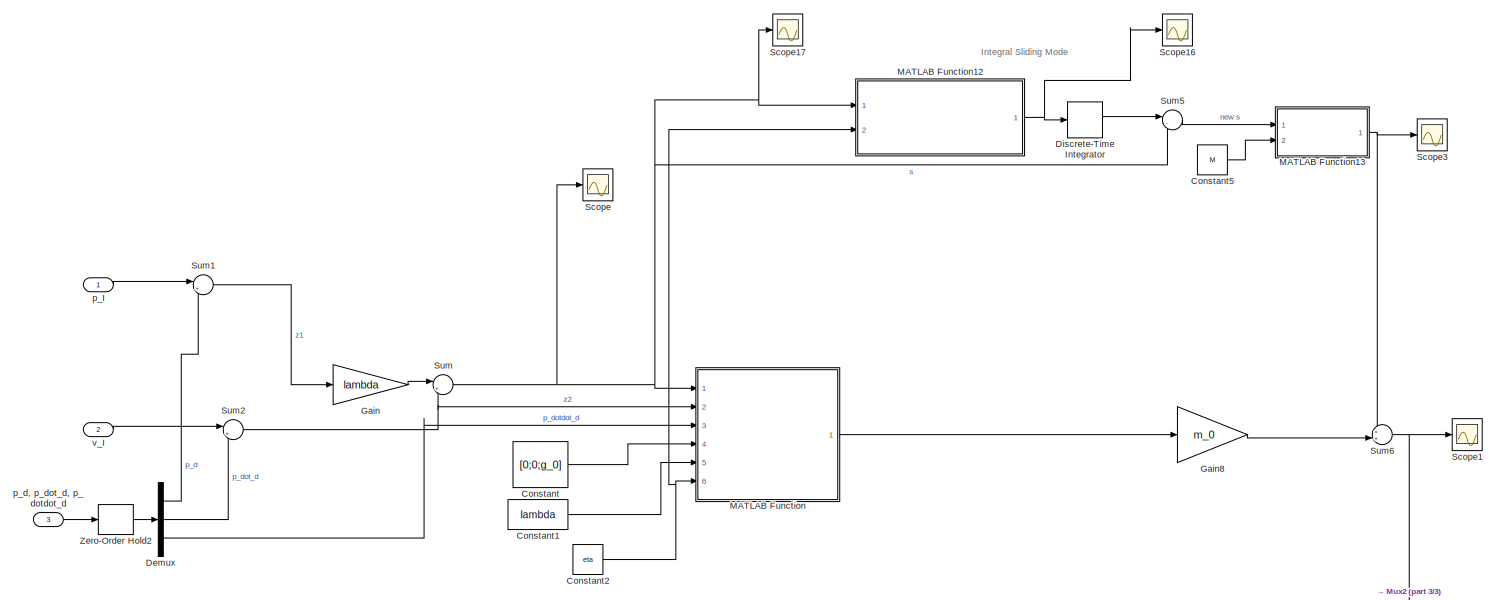
[diagram: Integral Sliding Mode Control - part 1/3, top center region]
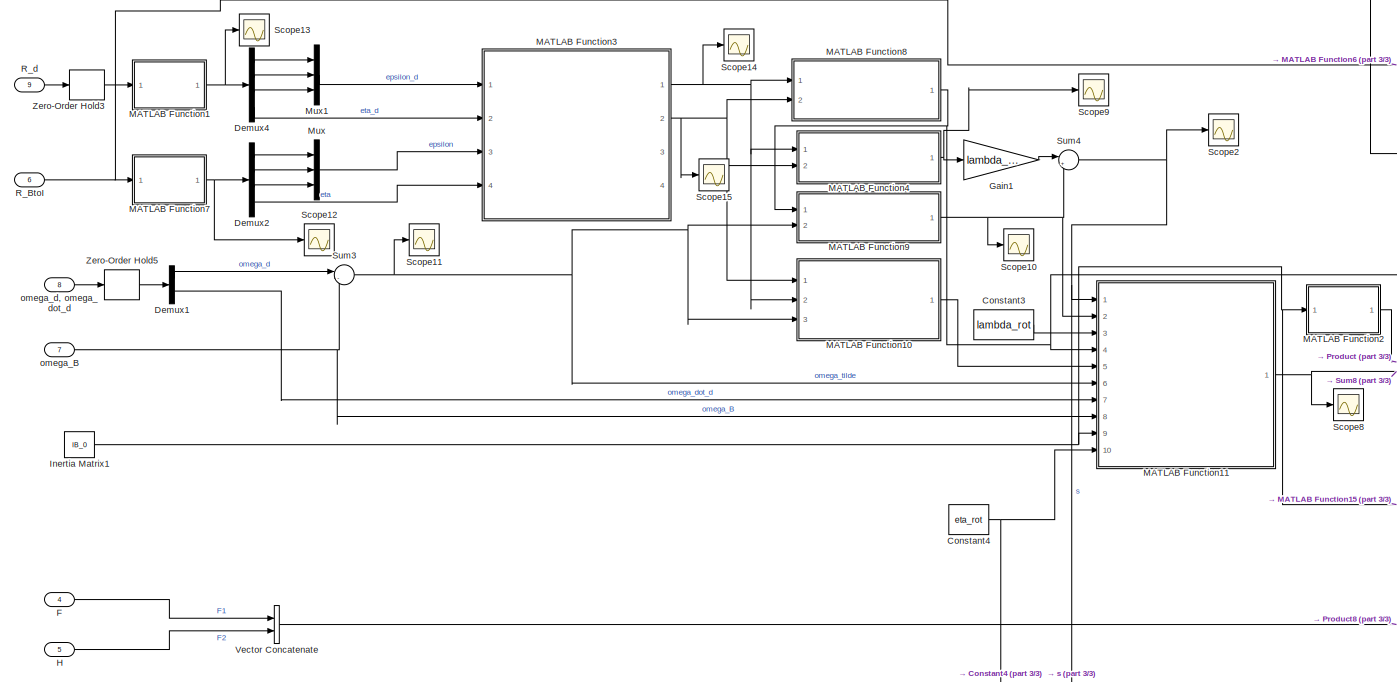
[diagram: Integral Sliding Mode Control - part 2/3, central region]
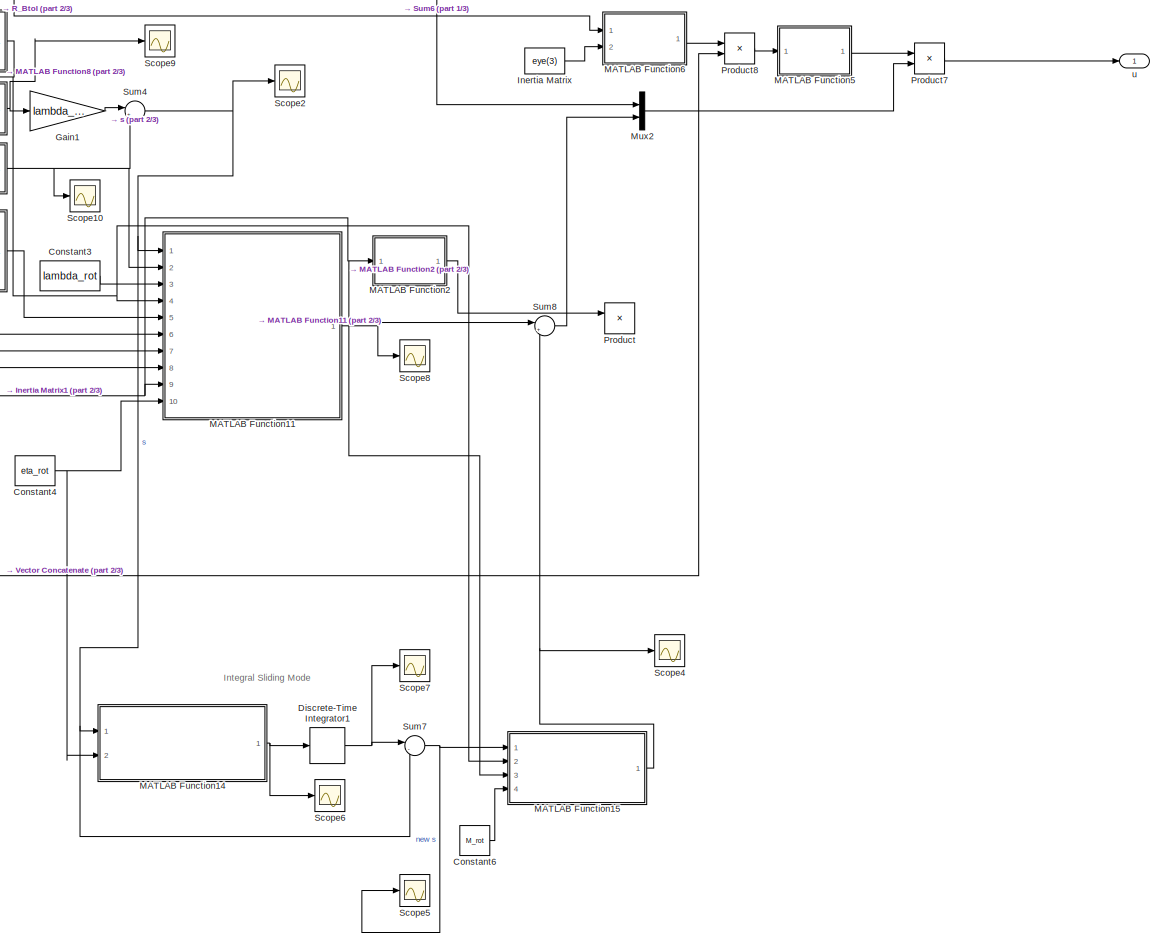
[diagram: Integral Sliding Mode Control - part 3/3, bottom right region]
BLOCK [SubSystem] Integral Sliding Mode Control
  Ports = [9, 1]
  RequestExecContextInheritance = off
BLOCK [Constant] Integral Sliding Mode Control/Constant
  Value = [0;0;g_0]
  VectorParams1D = off
BLOCK [Constant] Integral Sliding Mode Control/Constant1
  Value = lambda
BLOCK [Constant] Integral Sliding Mode Control/Constant2
  Value = eta
BLOCK [Constant] Integral Sliding Mode Control/Constant3
  Value = lambda_rot
BLOCK [Constant] Integral Sliding Mode Control/Constant4
  Value = eta_rot
BLOCK [Constant] Integral Sliding Mode Control/Constant5
  Value = M
BLOCK [Constant] Integral Sliding Mode Control/Constant6
  Value = M_rot
BLOCK [Demux] Integral Sliding Mode Control/Demux
  DisplayOption = bar
  Outputs = 3
  Ports = [1, 3]
BLOCK [Demux] Integral Sliding Mode Control/Demux1
  DisplayOption = bar
  Outputs = 2
  Ports = [1, 2]
BLOCK [Demux] Integral Sliding Mode Control/Demux2
  DisplayOption = bar
  Ports = [1, 4]
BLOCK [Demux] Integral Sliding Mode Control/Demux4
  DisplayOption = bar
  Ports = [1, 4]
BLOCK [DiscreteIntegrator] Integral Sliding Mode Control/Discrete-Time Integrator
  ICPrevOutput = DiscIntNeverNeededParam
  ICPrevScaledInput = DiscIntNeverNeededParam
  InitialCondition = [0;0;0]
  InitialConditionSetting = Auto
  Ports = [1, 1]
  SampleTime = Ts
BLOCK [DiscreteIntegrator] Integral Sliding Mode Control/Discrete-Time Integrator1
  ICPrevOutput = DiscIntNeverNeededParam
  ICPrevScaledInput = DiscIntNeverNeededParam
  InitialCondition = [0;0;0;0]
  InitialConditionSetting = Auto
  Ports = [1, 1]
  SampleTime = Ts
BLOCK [Inport] Integral Sliding Mode Control/F
  IconDisplay = Port number
  Port = 4
BLOCK [Gain] Integral Sliding Mode Control/Gain
  Gain = lambda
  OutDataTypeStr = Inherit: Inherit via internal rule
  ParamDataTypeStr = Inherit: Inherit via internal rule
  SaturateOnIntegerOverflow = off
BLOCK [Gain] Integral Sliding Mode Control/Gain1
  Gain = lambda_rot
  OutDataTypeStr = Inherit: Inherit via internal rule
  ParamDataTypeStr = Inherit: Inherit via internal rule
  SaturateOnIntegerOverflow = off
BLOCK [Gain] Integral Sliding Mode Control/Gain8
  Gain = m_0
  OutDataTypeStr = Inherit: Inherit via internal rule
  ParamDataTypeStr = Inherit: Inherit via internal rule
  SaturateOnIntegerOverflow = off
BLOCK [Inport] Integral Sliding Mode Control/H
  IconDisplay = Port number
  Port = 5
BLOCK [Constant] Integral Sliding Mode Control/Inertia Matrix
  Value = eye(3)
  VectorParams1D = off
BLOCK [Constant] Integral Sliding Mode Control/Inertia Matrix1
  Value = IB_0
  VectorParams1D = off
BLOCK [SubSystem] Integral Sliding Mode Control/MATLAB Function
  ErrorFcn = Stateflow.Translate.translate
  PermitHierarchicalResolution = ExplicitOnly
  Ports = [6, 1]
  RequestExecContextInheritance = off
  SFBlockType = MATLAB Function
  SystemSampleTime = Ts
  TreatAsAtomicUnit = on
BLOCK [Demux] Integral Sliding Mode Control/MATLAB Function/ Demux 
  Outputs = 1
  Ports = [1, 1]
BLOCK [S-Function] Integral Sliding Mode Control/MATLAB Function/ SFunction 
  EnableBusSupport = on
  FunctionName = sf_sfun
  PortCounts = [6 2]
  Ports = [6, 2]
  SFcnIsStateOwnerBlock = off
  SFunctionDeploymentMode = off
  Tag = Stateflow S-Function pose_ctrl 70
BLOCK [Terminator] Integral Sliding Mode Control/MATLAB Function/ Terminator 
BLOCK [Inport] Integral Sliding Mode Control/MATLAB Function/eta
  IconDisplay = Port number
  Port = 6
BLOCK [Inport] Integral Sliding Mode Control/MATLAB Function/g
  IconDisplay = Port number
  Port = 4
BLOCK [Inport] Integral Sliding Mode Control/MATLAB Function/lambda
  IconDisplay = Port number
  Port = 5
BLOCK [Inport] Integral Sliding Mode Control/MATLAB Function/p_dotdot_d
  IconDisplay = Port number
  Port = 3
BLOCK [Inport] Integral Sliding Mode Control/MATLAB Function/s
  IconDisplay = Port number
BLOCK [Outport] Integral Sliding Mode Control/MATLAB Function/u
  IconDisplay = Port number
BLOCK [Inport] Integral Sliding Mode Control/MATLAB Function/z2
  IconDisplay = Port number
  Port = 2
BLOCK [SubSystem] Integral Sliding Mode Control/MATLAB Function1
  ErrorFcn = Stateflow.Translate.translate
  PermitHierarchicalResolution = ExplicitOnly
  Ports = [1, 1]
  RequestExecContextInheritance = off
  SFBlockType = MATLAB Function
  TreatAsAtomicUnit = on
BLOCK [Demux] Integral Sliding Mode Control/MATLAB Function1/ Demux 
  Outputs = 1
  Ports = [1, 1]
BLOCK [S-Function] Integral Sliding Mode Control/MATLAB Function1/ SFunction 
  EnableBusSupport = on
  FunctionName = sf_sfun
  PortCounts = [1 2]
  Ports = [1, 2]
  SFcnIsStateOwnerBlock = off
  SFunctionDeploymentMode = off
  Tag = Stateflow S-Function pose_ctrl 68
BLOCK [Terminator] Integral Sliding Mode Control/MATLAB Function1/ Terminator 
BLOCK [Inport] Integral Sliding Mode Control/MATLAB Function1/R
  IconDisplay = Port number
BLOCK [Outport] Integral Sliding Mode Control/MATLAB Function1/q
  IconDisplay = Port number
BLOCK [SubSystem] Integral Sliding Mode Control/MATLAB Function10
  ErrorFcn = Stateflow.Translate.translate
  PermitHierarchicalResolution = ExplicitOnly
  Ports = [3, 1]
  RequestExecContextInheritance = off
  SFBlockType = MATLAB Function
  SystemSampleTime = Ts
  TreatAsAtomicUnit = on
BLOCK [Demux] Integral Sliding Mode Control/MATLAB Function10/ Demux 
  Outputs = 1
  Ports = [1, 1]
BLOCK [S-Function] Integral Sliding Mode Control/MATLAB Function10/ SFunction 
  EnableBusSupport = on
  FunctionName = sf_sfun
  PortCounts = [3 2]
  Ports = [3, 2]
  SFcnIsStateOwnerBlock = off
  SFunctionDeploymentMode = off
  Tag = Stateflow S-Function pose_ctrl 78
BLOCK [Terminator] Integral Sliding Mode Control/MATLAB Function10/ Terminator 
BLOCK [Outport] Integral Sliding Mode Control/MATLAB Function10/G_dot
  IconDisplay = Port number
BLOCK [Inport] Integral Sliding Mode Control/MATLAB Function10/eps_tilde
  IconDisplay = Port number
BLOCK [Inport] Integral Sliding Mode Control/MATLAB Function10/eta_tilde
  IconDisplay = Port number
  Port = 2
BLOCK [Inport] Integral Sliding Mode Control/MATLAB Function10/omega_tilde
  IconDisplay = Port number
  Port = 3
BLOCK [SubSystem] Integral Sliding Mode Control/MATLAB Function11
  ErrorFcn = Stateflow.Translate.translate
  PermitHierarchicalResolution = ExplicitOnly
  Ports = [10, 1]
  RequestExecContextInheritance = off
  SFBlockType = MATLAB Function
  SystemSampleTime = Ts
  TreatAsAtomicUnit = on
BLOCK [Demux] Integral Sliding Mode Control/MATLAB Function11/ Demux 
  Outputs = 1
  Ports = [1, 1]
BLOCK [S-Function] Integral Sliding Mode Control/MATLAB Function11/ SFunction 
  EnableBusSupport = on
  FunctionName = sf_sfun
  PortCounts = [10 2]
  Ports = [10, 2]
  SFcnIsStateOwnerBlock = off
  SFunctionDeploymentMode = off
  Tag = Stateflow S-Function pose_ctrl 79
BLOCK [Terminator] Integral Sliding Mode Control/MATLAB Function11/ Terminator 
BLOCK [Inport] Integral Sliding Mode Control/MATLAB Function11/G
  IconDisplay = Port number
  Port = 4
BLOCK [Inport] Integral Sliding Mode Control/MATLAB Function11/G_dot
  IconDisplay = Port number
  Port = 5
BLOCK [Inport] Integral Sliding Mode Control/MATLAB Function11/IBB
  IconDisplay = Port number
  Port = 9
BLOCK [Inport] Integral Sliding Mode Control/MATLAB Function11/eta
  IconDisplay = Port number
  Port = 10
BLOCK [Inport] Integral Sliding Mode Control/MATLAB Function11/lambda
  IconDisplay = Port number
  Port = 3
BLOCK [Inport] Integral Sliding Mode Control/MATLAB Function11/omega_B
  IconDisplay = Port number
  Port = 8
BLOCK [Inport] Integral Sliding Mode Control/MATLAB Function11/omega_d_dot
  IconDisplay = Port number
  Port = 7
BLOCK [Inport] Integral Sliding Mode Control/MATLAB Function11/omega_tilde
  IconDisplay = Port number
  Port = 6
BLOCK [Inport] Integral Sliding Mode Control/MATLAB Function11/s
  IconDisplay = Port number
BLOCK [Outport] Integral Sliding Mode Control/MATLAB Function11/u
  IconDisplay = Port number
BLOCK [Inport] Integral Sliding Mode Control/MATLAB Function11/z2
  IconDisplay = Port number
  Port = 2
BLOCK [SubSystem] Integral Sliding Mode Control/MATLAB Function12
  ErrorFcn = Stateflow.Translate.translate
  PermitHierarchicalResolution = ExplicitOnly
  Ports = [2, 1]
  RequestExecContextInheritance = off
  SFBlockType = MATLAB Function
  SystemSampleTime = Ts
  TreatAsAtomicUnit = on
BLOCK [Demux] Integral Sliding Mode Control/MATLAB Function12/ Demux 
  Outputs = 1
  Ports = [1, 1]
BLOCK [S-Function] Integral Sliding Mode Control/MATLAB Function12/ SFunction 
  EnableBusSupport = on
  FunctionName = sf_sfun
  PortCounts = [2 2]
  Ports = [2, 2]
  SFcnIsStateOwnerBlock = off
  SFunctionDeploymentMode = off
  Tag = Stateflow S-Function pose_ctrl 82
BLOCK [Terminator] Integral Sliding Mode Control/MATLAB Function12/ Terminator 
BLOCK [Inport] Integral Sliding Mode Control/MATLAB Function12/eta
  IconDisplay = Port number
  Port = 2
BLOCK [Outport] Integral Sliding Mode Control/MATLAB Function12/int_arg
  IconDisplay = Port number
BLOCK [Inport] Integral Sliding Mode Control/MATLAB Function12/s_0
  IconDisplay = Port number
BLOCK [SubSystem] Integral Sliding Mode Control/MATLAB Function13
  ErrorFcn = Stateflow.Translate.translate
  PermitHierarchicalResolution = ExplicitOnly
  Ports = [2, 1]
  RequestExecContextInheritance = off
  SFBlockType = MATLAB Function
  SystemSampleTime = Ts
  TreatAsAtomicUnit = on
BLOCK [Demux] Integral Sliding Mode Control/MATLAB Function13/ Demux 
  Outputs = 1
  Ports = [1, 1]
BLOCK [S-Function] Integral Sliding Mode Control/MATLAB Function13/ SFunction 
  EnableBusSupport = on
  FunctionName = sf_sfun
  PortCounts = [2 2]
  Ports = [2, 2]
  SFcnIsStateOwnerBlock = off
  SFunctionDeploymentMode = off
  Tag = Stateflow S-Function pose_ctrl 83
BLOCK [Terminator] Integral Sliding Mode Control/MATLAB Function13/ Terminator 
BLOCK [Inport] Integral Sliding Mode Control/MATLAB Function13/M
  IconDisplay = Port number
  Port = 2
BLOCK [Inport] Integral Sliding Mode Control/MATLAB Function13/s
  IconDisplay = Port number
BLOCK [Outport] Integral Sliding Mode Control/MATLAB Function13/u1
  IconDisplay = Port number
BLOCK [SubSystem] Integral Sliding Mode Control/MATLAB Function14
  ErrorFcn = Stateflow.Translate.translate
  PermitHierarchicalResolution = ExplicitOnly
  Ports = [2, 1]
  RequestExecContextInheritance = off
  SFBlockType = MATLAB Function
  SystemSampleTime = Ts
  TreatAsAtomicUnit = on
BLOCK [Demux] Integral Sliding Mode Control/MATLAB Function14/ Demux 
  Outputs = 1
  Ports = [1, 1]
BLOCK [S-Function] Integral Sliding Mode Control/MATLAB Function14/ SFunction 
  EnableBusSupport = on
  FunctionName = sf_sfun
  PortCounts = [2 2]
  Ports = [2, 2]
  SFcnIsStateOwnerBlock = off
  SFunctionDeploymentMode = off
  Tag = Stateflow S-Function pose_ctrl 84
BLOCK [Terminator] Integral Sliding Mode Control/MATLAB Function14/ Terminator 
BLOCK [Inport] Integral Sliding Mode Control/MATLAB Function14/eta
  IconDisplay = Port number
  Port = 2
BLOCK [Outport] Integral Sliding Mode Control/MATLAB Function14/int_arg
  IconDisplay = Port number
BLOCK [Inport] Integral Sliding Mode Control/MATLAB Function14/s_0
  IconDisplay = Port number
BLOCK [SubSystem] Integral Sliding Mode Control/MATLAB Function15
  ErrorFcn = Stateflow.Translate.translate
  PermitHierarchicalResolution = ExplicitOnly
  Ports = [4, 1]
  RequestExecContextInheritance = off
  SFBlockType = MATLAB Function
  SystemSampleTime = Ts
  TreatAsAtomicUnit = on
BLOCK [Demux] Integral Sliding Mode Control/MATLAB Function15/ Demux 
  Outputs = 1
  Ports = [1, 1]
BLOCK [S-Function] Integral Sliding Mode Control/MATLAB Function15/ SFunction 
  EnableBusSupport = on
  FunctionName = sf_sfun
  PortCounts = [4 2]
  Ports = [4, 2]
  SFcnIsStateOwnerBlock = off
  SFunctionDeploymentMode = off
  Tag = Stateflow S-Function pose_ctrl 85
BLOCK [Terminator] Integral Sliding Mode Control/MATLAB Function15/ Terminator 
BLOCK [Inport] Integral Sliding Mode Control/MATLAB Function15/G
  IconDisplay = Port number
  Port = 2
BLOCK [Inport] Integral Sliding Mode Control/MATLAB Function15/IB
  IconDisplay = Port number
  Port = 3
BLOCK [Inport] Integral Sliding Mode Control/MATLAB Function15/M
  IconDisplay = Port number
  Port = 4
BLOCK [Inport] Integral Sliding Mode Control/MATLAB Function15/s
  IconDisplay = Port number
BLOCK [Outport] Integral Sliding Mode Control/MATLAB Function15/u1
  IconDisplay = Port number
BLOCK [SubSystem] Integral Sliding Mode Control/MATLAB Function2
  Commented = on
  ErrorFcn = Stateflow.Translate.translate
  PermitHierarchicalResolution = ExplicitOnly
  Ports = [1, 1]
  RequestExecContextInheritance = off
  SFBlockType = MATLAB Function
  SystemSampleTime = Ts
  TreatAsAtomicUnit = on
BLOCK [Demux] Integral Sliding Mode Control/MATLAB Function2/ Demux 
  Outputs = 1
  Ports = [1, 1]
BLOCK [S-Function] Integral Sliding Mode Control/MATLAB Function2/ SFunction 
  EnableBusSupport = on
  FunctionName = sf_sfun
  PortCounts = [1 2]
  Ports = [1, 2]
  SFcnIsStateOwnerBlock = off
  SFunctionDeploymentMode = off
  Tag = Stateflow S-Function pose_ctrl 73
BLOCK [Terminator] Integral Sliding Mode Control/MATLAB Function2/ Terminator 
BLOCK [Inport] Integral Sliding Mode Control/MATLAB Function2/I
  IconDisplay = Port number
BLOCK [Outport] Integral Sliding Mode Control/MATLAB Function2/I_inv
  IconDisplay = Port number
BLOCK [SubSystem] Integral Sliding Mode Control/MATLAB Function3
  ErrorFcn = Stateflow.Translate.translate
  PermitHierarchicalResolution = ExplicitOnly
  Ports = [4, 4]
  RequestExecContextInheritance = off
  SFBlockType = MATLAB Function
  SystemSampleTime = Ts
  TreatAsAtomicUnit = on
BLOCK [Demux] Integral Sliding Mode Control/MATLAB Function3/ Demux 
  Outputs = 1
  Ports = [1, 1]
BLOCK [S-Function] Integral Sliding Mode Control/MATLAB Function3/ SFunction 
  EnableBusSupport = on
  FunctionName = sf_sfun
  PortCounts = [4 5]
  Ports = [4, 5]
  SFcnIsStateOwnerBlock = off
  SFunctionDeploymentMode = off
  Tag = Stateflow S-Function pose_ctrl 74
BLOCK [Terminator] Integral Sliding Mode Control/MATLAB Function3/ Terminator 
BLOCK [Inport] Integral Sliding Mode Control/MATLAB Function3/epsilon
  IconDisplay = Port number
  Port = 3
BLOCK [Inport] Integral Sliding Mode Control/MATLAB Function3/epsilon_d
  IconDisplay = Port number
BLOCK [Outport] Integral Sliding Mode Control/MATLAB Function3/epsilon_tilde
  IconDisplay = Port number
  Port = 2
BLOCK [Outport] Integral Sliding Mode Control/MATLAB Function3/epsilon_tilde_T
  IconDisplay = Port number
  Port = 3
BLOCK [Inport] Integral Sliding Mode Control/MATLAB Function3/eta
  IconDisplay = Port number
  Port = 4
BLOCK [Inport] Integral Sliding Mode Control/MATLAB Function3/eta_d
  IconDisplay = Port number
  Port = 2
BLOCK [Outport] Integral Sliding Mode Control/MATLAB Function3/eta_tilde
  IconDisplay = Port number
BLOCK [Outport] Integral Sliding Mode Control/MATLAB Function3/skew_eps_tilde
  IconDisplay = Port number
  Port = 4
BLOCK [SubSystem] Integral Sliding Mode Control/MATLAB Function4
  ErrorFcn = Stateflow.Translate.translate
  PermitHierarchicalResolution = ExplicitOnly
  Ports = [2, 1]
  RequestExecContextInheritance = off
  SFBlockType = MATLAB Function
  SystemSampleTime = Ts
  TreatAsAtomicUnit = on
BLOCK [Demux] Integral Sliding Mode Control/MATLAB Function4/ Demux 
  Outputs = 1
  Ports = [1, 1]
BLOCK [S-Function] Integral Sliding Mode Control/MATLAB Function4/ SFunction 
  EnableBusSupport = on
  FunctionName = sf_sfun
  PortCounts = [2 2]
  Ports = [2, 2]
  SFcnIsStateOwnerBlock = off
  SFunctionDeploymentMode = off
  Tag = Stateflow S-Function pose_ctrl 75
BLOCK [Terminator] Integral Sliding Mode Control/MATLAB Function4/ Terminator 
BLOCK [Inport] Integral Sliding Mode Control/MATLAB Function4/eps_tilde
  IconDisplay = Port number
  Port = 2
BLOCK [Inport] Integral Sliding Mode Control/MATLAB Function4/eta_tilde
  IconDisplay = Port number
BLOCK [Outport] Integral Sliding Mode Control/MATLAB Function4/z1
  IconDisplay = Port number
BLOCK [SubSystem] Integral Sliding Mode Control/MATLAB Function5
  ErrorFcn = Stateflow.Translate.translate
  PermitHierarchicalResolution = ExplicitOnly
  Ports = [1, 1]
  RequestExecContextInheritance = off
  SFBlockType = MATLAB Function
  SystemSampleTime = Ts
  TreatAsAtomicUnit = on
BLOCK [Demux] Integral Sliding Mode Control/MATLAB Function5/ Demux 
  Outputs = 1
  Ports = [1, 1]
BLOCK [S-Function] Integral Sliding Mode Control/MATLAB Function5/ SFunction 
  EnableBusSupport = on
  FunctionName = sf_sfun
  PortCounts = [1 2]
  Ports = [1, 2]
  SFcnIsStateOwnerBlock = off
  SFunctionDeploymentMode = off
  Tag = Stateflow S-Function pose_ctrl 71
BLOCK [Terminator] Integral Sliding Mode Control/MATLAB Function5/ Terminator 
BLOCK [Inport] Integral Sliding Mode Control/MATLAB Function5/J
  IconDisplay = Port number
BLOCK [Outport] Integral Sliding Mode Control/MATLAB Function5/J_inv
  IconDisplay = Port number
BLOCK [SubSystem] Integral Sliding Mode Control/MATLAB Function6
  ErrorFcn = Stateflow.Translate.translate
  PermitHierarchicalResolution = ExplicitOnly
  Ports = [2, 1]
  RequestExecContextInheritance = off
  SFBlockType = MATLAB Function
  TreatAsAtomicUnit = on
BLOCK [Demux] Integral Sliding Mode Control/MATLAB Function6/ Demux 
  Outputs = 1
  Ports = [1, 1]
BLOCK [S-Function] Integral Sliding Mode Control/MATLAB Function6/ SFunction 
  EnableBusSupport = on
  FunctionName = sf_sfun
  PortCounts = [2 2]
  Ports = [2, 2]
  SFcnIsStateOwnerBlock = off
  SFunctionDeploymentMode = off
  Tag = Stateflow S-Function pose_ctrl 72
BLOCK [Terminator] Integral Sliding Mode Control/MATLAB Function6/ Terminator 
BLOCK [Inport] Integral Sliding Mode Control/MATLAB Function6/I_B
  IconDisplay = Port number
  Port = 2
BLOCK [Outport] Integral Sliding Mode Control/MATLAB Function6/JR
  IconDisplay = Port number
BLOCK [Inport] Integral Sliding Mode Control/MATLAB Function6/R_m
  IconDisplay = Port number
BLOCK [SubSystem] Integral Sliding Mode Control/MATLAB Function7
  ErrorFcn = Stateflow.Translate.translate
  PermitHierarchicalResolution = ExplicitOnly
  Ports = [1, 1]
  RequestExecContextInheritance = off
  SFBlockType = MATLAB Function
  TreatAsAtomicUnit = on
BLOCK [Demux] Integral Sliding Mode Control/MATLAB Function7/ Demux 
  Outputs = 1
  Ports = [1, 1]
BLOCK [S-Function] Integral Sliding Mode Control/MATLAB Function7/ SFunction 
  EnableBusSupport = on
  FunctionName = sf_sfun
  PortCounts = [1 2]
  Ports = [1, 2]
  SFcnIsStateOwnerBlock = off
  SFunctionDeploymentMode = off
  Tag = Stateflow S-Function pose_ctrl 69
BLOCK [Terminator] Integral Sliding Mode Control/MATLAB Function7/ Terminator 
BLOCK [Inport] Integral Sliding Mode Control/MATLAB Function7/R
  IconDisplay = Port number
BLOCK [Outport] Integral Sliding Mode Control/MATLAB Function7/q
  IconDisplay = Port number
BLOCK [SubSystem] Integral Sliding Mode Control/MATLAB Function8
  ErrorFcn = Stateflow.Translate.translate
  PermitHierarchicalResolution = ExplicitOnly
  Ports = [2, 1]
  RequestExecContextInheritance = off
  SFBlockType = MATLAB Function
  SystemSampleTime = Ts
  TreatAsAtomicUnit = on
BLOCK [Demux] Integral Sliding Mode Control/MATLAB Function8/ Demux 
  Outputs = 1
  Ports = [1, 1]
BLOCK [S-Function] Integral Sliding Mode Control/MATLAB Function8/ SFunction 
  EnableBusSupport = on
  FunctionName = sf_sfun
  PortCounts = [2 2]
  Ports = [2, 2]
  SFcnIsStateOwnerBlock = off
  SFunctionDeploymentMode = off
  Tag = Stateflow S-Function pose_ctrl 76
BLOCK [Terminator] Integral Sliding Mode Control/MATLAB Function8/ Terminator 
BLOCK [Outport] Integral Sliding Mode Control/MATLAB Function8/G
  IconDisplay = Port number
BLOCK [Inport] Integral Sliding Mode Control/MATLAB Function8/eps_tilde
  IconDisplay = Port number
  Port = 2
BLOCK [Inport] Integral Sliding Mode Control/MATLAB Function8/eta_tilde
  IconDisplay = Port number
BLOCK [SubSystem] Integral Sliding Mode Control/MATLAB Function9
  ErrorFcn = Stateflow.Translate.translate
  PermitHierarchicalResolution = ExplicitOnly
  Ports = [2, 1]
  RequestExecContextInheritance = off
  SFBlockType = MATLAB Function
  SystemSampleTime = Ts
  TreatAsAtomicUnit = on
BLOCK [Demux] Integral Sliding Mode Control/MATLAB Function9/ Demux 
  Outputs = 1
  Ports = [1, 1]
BLOCK [S-Function] Integral Sliding Mode Control/MATLAB Function9/ SFunction 
  EnableBusSupport = on
  FunctionName = sf_sfun
  PortCounts = [2 2]
  Ports = [2, 2]
  SFcnIsStateOwnerBlock = off
  SFunctionDeploymentMode = off
  Tag = Stateflow S-Function pose_ctrl 77
BLOCK [Terminator] Integral Sliding Mode Control/MATLAB Function9/ Terminator 
BLOCK [Inport] Integral Sliding Mode Control/MATLAB Function9/G
  IconDisplay = Port number
BLOCK [Inport] Integral Sliding Mode Control/MATLAB Function9/omega_tilde
  IconDisplay = Port number
  Port = 2
BLOCK [Outport] Integral Sliding Mode Control/MATLAB Function9/z2
  IconDisplay = Port number
BLOCK [Mux] Integral Sliding Mode Control/Mux
  DisplayOption = bar
  Inputs = 3
  Ports = [3, 1]
BLOCK [Mux] Integral Sliding Mode Control/Mux1
  DisplayOption = bar
  Inputs = 3
  Ports = [3, 1]
BLOCK [Mux] Integral Sliding Mode Control/Mux2
  DisplayOption = bar
  Inputs = 2
  Ports = [2, 1]
BLOCK [Product] Integral Sliding Mode Control/Product
  Commented = on
  InputSameDT = off
  Multiplication = Matrix(*)
  OutDataTypeStr = Inherit: Inherit via internal rule
  Ports = [2, 1]
  RndMeth = Floor
  SaturateOnIntegerOverflow = off
BLOCK [Product] Integral Sliding Mode Control/Product7
  InputSameDT = off
  Multiplication = Matrix(*)
  OutDataTypeStr = Inherit: Inherit via internal rule
  Ports = [2, 1]
  RndMeth = Floor
  SaturateOnIntegerOverflow = off
BLOCK [Product] Integral Sliding Mode Control/Product8
  InputSameDT = off
  Multiplication = Matrix(*)
  OutDataTypeStr = Inherit: Inherit via internal rule
  Ports = [2, 1]
  RndMeth = Floor
  SaturateOnIntegerOverflow = off
BLOCK [Inport] Integral Sliding Mode Control/R_BtoI
  IconDisplay = Port number
  Port = 6
BLOCK [Inport] Integral Sliding Mode Control/R_d
  IconDisplay = Port number
  Port = 9
BLOCK [Scope] Integral Sliding Mode Control/Scope
  Floating = off
  NumInputPorts = 1
  Ports = [1]
  ScopeSpecificationString = Simulink.scopes.TimeScopeBlockCfg('CurrentConfiguration', extmgr.ConfigurationSet(extmgr.Configuration('Core','General UI',true),extmgr.Configuration('Core','Source UI',true),extmgr.Configuration('Sources','WiredSimulink',true,'DataLoggingVariableName','ScopeData1'),extmgr.Configuration('Visuals','Time Domain',true,'SerializedDisplays',{struct('MinYLimReal','-1.56153','MaxYLimReal','1.22705','YLab...<+1510ch>
BLOCK [Scope] Integral Sliding Mode Control/Scope1
  Floating = off
  NumInputPorts = 1
  Ports = [1]
  ScopeSpecificationString = Simulink.scopes.TimeScopeBlockCfg('CurrentConfiguration', extmgr.ConfigurationSet(extmgr.Configuration('Core','General UI',true),extmgr.Configuration('Core','Source UI',true),extmgr.Configuration('Sources','WiredSimulink',true,'DataLoggingVariableName','ScopeData2'),extmgr.Configuration('Visuals','Time Domain',true,'SerializedDisplays',{struct('MinYLimReal','-17.7196','MaxYLimReal','36.04446','YLa...<+1499ch>
BLOCK [Scope] Integral Sliding Mode Control/Scope10
  Floating = off
  NumInputPorts = 1
  Ports = [1]
  ScopeSpecificationString = Simulink.scopes.TimeScopeBlockCfg('CurrentConfiguration', extmgr.ConfigurationSet(extmgr.Configuration('Core','General UI',true),extmgr.Configuration('Core','Source UI',true),extmgr.Configuration('Sources','WiredSimulink',true,'DataLoggingVariableName','ScopeData7'),extmgr.Configuration('Visuals','Time Domain',true,'SerializedDisplays',{struct('MinYLimReal','-0.61319','MaxYLimReal','0.60845','YLab...<+1576ch>
BLOCK [Scope] Integral Sliding Mode Control/Scope11
  Floating = off
  NumInputPorts = 1
  Ports = [1]
  ScopeSpecificationString = Simulink.scopes.TimeScopeBlockCfg('CurrentConfiguration', extmgr.ConfigurationSet(extmgr.Configuration('Core','General UI',true),extmgr.Configuration('Core','Source UI',true),extmgr.Configuration('Sources','WiredSimulink',true,'DataLoggingVariableName','ScopeData8'),extmgr.Configuration('Visuals','Time Domain',true,'SerializedDisplays',{struct('MinYLimReal','-0.65134','MaxYLimReal','0.65334','YLab...<+1540ch>
BLOCK [Scope] Integral Sliding Mode Control/Scope12
  Floating = off
  NumInputPorts = 1
  Ports = [1]
  ScopeSpecificationString = Simulink.scopes.TimeScopeBlockCfg('CurrentConfiguration', extmgr.ConfigurationSet(extmgr.Configuration('Core','General UI',true),extmgr.Configuration('Core','Source UI',true),extmgr.Configuration('Sources','WiredSimulink',true,'DataLoggingVariableName','ScopeData9'),extmgr.Configuration('Visuals','Time Domain',true,'SerializedDisplays',{struct('MinYLimReal','-0.14545','MaxYLimReal','1.12727','YLab...<+1601ch>
BLOCK [Scope] Integral Sliding Mode Control/Scope13
  Floating = off
  NumInputPorts = 1
  Ports = [1]
  ScopeSpecificationString = Simulink.scopes.TimeScopeBlockCfg('CurrentConfiguration', extmgr.ConfigurationSet(extmgr.Configuration('Core','General UI',true),extmgr.Configuration('Core','Source UI',true),extmgr.Configuration('Sources','WiredSimulink',true,'DataLoggingVariableName','ScopeData10'),extmgr.Configuration('Visuals','Time Domain',true,'SerializedDisplays',{struct('MinYLimReal','-0.125','MaxYLimReal','1.125','YLabelR...<+1590ch>
BLOCK [Scope] Integral Sliding Mode Control/Scope14
  Floating = off
  NumInputPorts = 1
  Ports = [1]
  ScopeSpecificationString = Simulink.scopes.TimeScopeBlockCfg('CurrentConfiguration', extmgr.ConfigurationSet(extmgr.Configuration('Core','General UI',true),extmgr.Configuration('Core','Source UI',true),extmgr.Configuration('Sources','WiredSimulink',true,'DataLoggingVariableName','ScopeData11'),extmgr.Configuration('Visuals','Time Domain',true,'SerializedDisplays',{struct('MinYLimReal','-0.02631','MaxYLimReal','0.02641','YLa...<+1522ch>
BLOCK [Scope] Integral Sliding Mode Control/Scope15
  Floating = off
  NumInputPorts = 1
  Ports = [1]
  ScopeSpecificationString = Simulink.scopes.TimeScopeBlockCfg('CurrentConfiguration', extmgr.ConfigurationSet(extmgr.Configuration('Core','General UI',true),extmgr.Configuration('Core','Source UI',true),extmgr.Configuration('Sources','WiredSimulink',true,'DataLoggingVariableName','ScopeData12'),extmgr.Configuration('Visuals','Time Domain',true,'SerializedDisplays',{struct('MinYLimReal','-0.02631','MaxYLimReal','0.02641','YLa...<+1577ch>
BLOCK [Scope] Integral Sliding Mode Control/Scope16
  Floating = off
  NumInputPorts = 1
  Ports = [1]
  ScopeSpecificationString = Simulink.scopes.TimeScopeBlockCfg('CurrentConfiguration', extmgr.ConfigurationSet(extmgr.Configuration('Core','General UI',true),extmgr.Configuration('Core','Source UI',true),extmgr.Configuration('Sources','WiredSimulink',true,'DataLoggingVariableName','ScopeData13'),extmgr.Configuration('Visuals','Time Domain',true,'SerializedDisplays',{struct('MinYLimReal','-0.18321','MaxYLimReal','0.08306','YLa...<+1537ch>
BLOCK [Scope] Integral Sliding Mode Control/Scope17
  Floating = off
  NumInputPorts = 1
  Ports = [1]
  ScopeSpecificationString = Simulink.scopes.TimeScopeBlockCfg('CurrentConfiguration', extmgr.ConfigurationSet(extmgr.Configuration('Core','General UI',true),extmgr.Configuration('Core','Source UI',true),extmgr.Configuration('Sources','WiredSimulink',true,'DataLoggingVariableName','ScopeData14'),extmgr.Configuration('Visuals','Time Domain',true,'SerializedDisplays',{struct('MinYLimReal','-0.14478','MaxYLimReal','0.02228','YLa...<+1470ch>
BLOCK [Scope] Integral Sliding Mode Control/Scope2
  Floating = off
  NumInputPorts = 1
  Ports = [1]
  ScopeSpecificationString = Simulink.scopes.TimeScopeBlockCfg('CurrentConfiguration', extmgr.ConfigurationSet(extmgr.Configuration('Core','General UI',true),extmgr.Configuration('Core','Source UI',true),extmgr.Configuration('Sources','WiredSimulink',true,'DataLoggingVariableName','ScopeData3'),extmgr.Configuration('Visuals','Time Domain',true,'SerializedDisplays',{struct('MinYLimReal','-0.61319','MaxYLimReal','0.60845','YLab...<+1516ch>
BLOCK [Scope] Integral Sliding Mode Control/Scope3
  Floating = off
  NumInputPorts = 1
  Ports = [1]
  ScopeSpecificationString = Simulink.scopes.TimeScopeBlockCfg('CurrentConfiguration', extmgr.ConfigurationSet(extmgr.Configuration('Core','General UI',true),extmgr.Configuration('Core','Source UI',true),extmgr.Configuration('Sources','WiredSimulink',true,'DataLoggingVariableName','ScopeData1'),extmgr.Configuration('Visuals','Time Domain',true,'SerializedDisplays',{struct('MinYLimReal','-0.30928','MaxYLimReal','2.03965','YLab...<+1517ch>
BLOCK [Scope] Integral Sliding Mode Control/Scope4
  Floating = off
  NumInputPorts = 1
  Ports = [1]
  ScopeSpecificationString = Simulink.scopes.TimeScopeBlockCfg('CurrentConfiguration', extmgr.ConfigurationSet(extmgr.Configuration('Core','General UI',true),extmgr.Configuration('Core','Source UI',true),extmgr.Configuration('Sources','WiredSimulink',true,'DataLoggingVariableName','ScopeData1'),extmgr.Configuration('Visuals','Time Domain',true,'SerializedDisplays',{struct('MinYLimReal','-3.0124','MaxYLimReal','0.20664','YLabe...<+1579ch>
BLOCK [Scope] Integral Sliding Mode Control/Scope5
  Floating = off
  NumInputPorts = 1
  Ports = [1]
  ScopeSpecificationString = Simulink.scopes.TimeScopeBlockCfg('CurrentConfiguration', extmgr.ConfigurationSet(extmgr.Configuration('Core','General UI',true),extmgr.Configuration('Core','Source UI',true),extmgr.Configuration('Sources','WiredSimulink',true,'DataLoggingVariableName','ScopeData2'),extmgr.Configuration('Visuals','Time Domain',true,'SerializedDisplays',{struct('MinYLimReal','-12.49995','MaxYLimReal','12.4997','YLa...<+1562ch>
BLOCK [Scope] Integral Sliding Mode Control/Scope6
  Floating = off
  NumInputPorts = 1
  Ports = [1]
  ScopeSpecificationString = Simulink.scopes.TimeScopeBlockCfg('CurrentConfiguration', extmgr.ConfigurationSet(extmgr.Configuration('Core','General UI',true),extmgr.Configuration('Core','Source UI',true),extmgr.Configuration('Sources','WiredSimulink',true,'DataLoggingVariableName','ScopeData3'),extmgr.Configuration('Visuals','Time Domain',true,'SerializedDisplays',{struct('MinYLimReal','-0.4075','MaxYLimReal','0.40658','YLabe...<+1602ch>
BLOCK [Scope] Integral Sliding Mode Control/Scope7
  Floating = off
  NumInputPorts = 1
  Ports = [1]
  ScopeSpecificationString = Simulink.scopes.TimeScopeBlockCfg('CurrentConfiguration', extmgr.ConfigurationSet(extmgr.Configuration('Core','General UI',true),extmgr.Configuration('Core','Source UI',true),extmgr.Configuration('Sources','WiredSimulink',true,'DataLoggingVariableName','ScopeData4'),extmgr.Configuration('Visuals','Time Domain',true,'SerializedDisplays',{struct('MinYLimReal','-0.15311','MaxYLimReal','0.07296','YLab...<+1638ch>
BLOCK [Scope] Integral Sliding Mode Control/Scope8
  Floating = off
  NumInputPorts = 1
  Ports = [1]
  ScopeSpecificationString = Simulink.scopes.TimeScopeBlockCfg('CurrentConfiguration', extmgr.ConfigurationSet(extmgr.Configuration('Core','General UI',true),extmgr.Configuration('Core','Source UI',true),extmgr.Configuration('Sources','WiredSimulink',true,'DataLoggingVariableName','ScopeData5'),extmgr.Configuration('Visuals','Time Domain',true,'SerializedDisplays',{struct('MinYLimReal','-4.08741','MaxYLimReal','2.54743','YLab...<+1541ch>
BLOCK [Scope] Integral Sliding Mode Control/Scope9
  Floating = off
  NumInputPorts = 1
  Ports = [1]
  ScopeSpecificationString = Simulink.scopes.TimeScopeBlockCfg('CurrentConfiguration', extmgr.ConfigurationSet(extmgr.Configuration('Core','General UI',true),extmgr.Configuration('Core','Source UI',true),extmgr.Configuration('Sources','WiredSimulink',true,'DataLoggingVariableName','ScopeData6'),extmgr.Configuration('Visuals','Time Domain',true,'SerializedDisplays',{struct('MinYLimReal','-0.02631','MaxYLimReal','0.02641','YLab...<+1576ch>
BLOCK [Sum] Integral Sliding Mode Control/Sum
  IconShape = round
  InputSameDT = off
  Inputs = |++
  OutDataTypeStr = Inherit: Inherit via internal rule
  Ports = [2, 1]
  SaturateOnIntegerOverflow = off
BLOCK [Sum] Integral Sliding Mode Control/Sum1
  IconShape = round
  InputSameDT = off
  Inputs = |+-
  OutDataTypeStr = Inherit: Inherit via internal rule
  Ports = [2, 1]
  SaturateOnIntegerOverflow = off
BLOCK [Sum] Integral Sliding Mode Control/Sum2
  IconShape = round
  InputSameDT = off
  Inputs = |+-
  OutDataTypeStr = Inherit: Inherit via internal rule
  Ports = [2, 1]
  SaturateOnIntegerOverflow = off
BLOCK [Sum] Integral Sliding Mode Control/Sum3
  IconShape = round
  InputSameDT = off
  Inputs = |-+
  OutDataTypeStr = Inherit: Inherit via internal rule
  Ports = [2, 1]
  SaturateOnIntegerOverflow = off
BLOCK [Sum] Integral Sliding Mode Control/Sum4
  IconShape = round
  InputSameDT = off
  Inputs = |++
  OutDataTypeStr = Inherit: Inherit via internal rule
  Ports = [2, 1]
  SaturateOnIntegerOverflow = off
BLOCK [Sum] Integral Sliding Mode Control/Sum5
  IconShape = round
  InputSameDT = off
  Inputs = |-+
  OutDataTypeStr = Inherit: Inherit via internal rule
  Ports = [2, 1]
  SaturateOnIntegerOverflow = off
BLOCK [Sum] Integral Sliding Mode Control/Sum6
  IconShape = round
  InputSameDT = off
  Inputs = ++|
  OutDataTypeStr = Inherit: Inherit via internal rule
  Ports = [2, 1]
  SaturateOnIntegerOverflow = off
BLOCK [Sum] Integral Sliding Mode Control/Sum7
  IconShape = round
  InputSameDT = off
  Inputs = |-+
  OutDataTypeStr = Inherit: Inherit via internal rule
  Ports = [2, 1]
  SaturateOnIntegerOverflow = off
BLOCK [Sum] Integral Sliding Mode Control/Sum8
  IconShape = round
  InputSameDT = off
  Inputs = |++
  OutDataTypeStr = Inherit: Inherit via internal rule
  Ports = [2, 1]
  SaturateOnIntegerOverflow = off
BLOCK [Concatenate] Integral Sliding Mode Control/Vector Concatenate
  Mode = Multidimensional array
  Ports = [2, 1]
BLOCK [ZeroOrderHold] Integral Sliding Mode Control/Zero-Order Hold2
  SampleTime = Ts
BLOCK [ZeroOrderHold] Integral Sliding Mode Control/Zero-Order Hold3
  SampleTime = Ts
BLOCK [ZeroOrderHold] Integral Sliding Mode Control/Zero-Order Hold5
  SampleTime = Ts
BLOCK [Inport] Integral Sliding Mode Control/omega_B
  IconDisplay = Port number
  Port = 7
BLOCK [Inport] Integral Sliding Mode Control/omega_d, omega_dot_d
  IconDisplay = Port number
  Port = 8
BLOCK [Inport] Integral Sliding Mode Control/p_I
  IconDisplay = Port number
BLOCK [Inport] Integral Sliding Mode Control/p_d, p_dot_d, p_dotdot_d
  IconDisplay = Port number
  Port = 3
BLOCK [Outport] Integral Sliding Mode Control/u
  IconDisplay = Port number
BLOCK [Inport] Integral Sliding Mode Control/v_I
  IconDisplay = Port number
  Port = 2
BLOCK [SubSystem] MATLAB Function4
  ErrorFcn = Stateflow.Translate.translate
  PermitHierarchicalResolution = ExplicitOnly
  Ports = [1, 1]
  RequestExecContextInheritance = off
  SFBlockType = MATLAB Function
  TreatAsAtomicUnit = on
BLOCK [Demux] MATLAB Function4/ Demux 
  Outputs = 1
  Ports = [1, 1]
BLOCK [S-Function] MATLAB Function4/ SFunction 
  EnableBusSupport = on
  FunctionName = sf_sfun
  PortCounts = [1 2]
  Ports = [1, 2]
  SFcnIsStateOwnerBlock = off
  SFunctionDeploymentMode = off
  Tag = Stateflow S-Function pose_ctrl 5
BLOCK [Terminator] MATLAB Function4/ Terminator 
BLOCK [Inport] MATLAB Function4/R
  IconDisplay = Port number
BLOCK [Outport] MATLAB Function4/eul
  IconDisplay = Port number
BLOCK [SubSystem] Motion Equations, p_I
  Ports = [4, 5]
  RequestExecContextInheritance = off
BLOCK [Constant] Motion Equations, p_I/Constant1
  Value = [0 0 -g]'
  VectorParams1D = off
BLOCK [Reference] Motion Equations, p_I/Cross Product1  REF=vrlib/Utilities/Cross Product
  Ports = [2, 1]
  SourceBlock = vrlib/Utilities/Cross Product
  SourceProductBaseCode = VR
  SourceProductName = Simulink 3D Animation
  SourceType = Cross Product
BLOCK [Gain] Motion Equations, p_I/Gain
  Gain = IB
  Multiplication = Matrix(K*u)
  OutDataTypeStr = Inherit: Inherit via internal rule
  ParamDataTypeStr = Inherit: Inherit via internal rule
  SaturateOnIntegerOverflow = off
BLOCK [Gain] Motion Equations, p_I/Gain1
  Gain = m
  OutDataTypeStr = Inherit: Inherit via internal rule
  ParamDataTypeStr = Inherit: Inherit via internal rule
  SaturateOnIntegerOverflow = off
BLOCK [Gain] Motion Equations, p_I/Gain2
  Commented = on
  Gain = 0.5
  OutDataTypeStr = Inherit: Inherit via internal rule
  ParamDataTypeStr = Inherit: Inherit via internal rule
  SaturateOnIntegerOverflow = off
BLOCK [Gain] Motion Equations, p_I/Gain3
  Commented = on
  Gain = inv(IB)
  Multiplication = Matrix(K*u)
  OutDataTypeStr = Inherit: Inherit via internal rule
  ParamDataTypeStr = Inherit: Inherit via internal rule
  SaturateOnIntegerOverflow = off
BLOCK [Gain] Motion Equations, p_I/Gain4
  Gain = 1/m
  OutDataTypeStr = Inherit: Inherit via internal rule
  ParamDataTypeStr = Inherit: Inherit via internal rule
  SaturateOnIntegerOverflow = off
BLOCK [Constant] Motion Equations, p_I/Inertia Matrix1
  Value = IB
  VectorParams1D = off
BLOCK [Integrator] Motion Equations, p_I/Integrator
  Commented = on
  InitialCondition = [0 0 0 1]
  Ports = [1, 1]
BLOCK [Integrator] Motion Equations, p_I/Integrator1
  InitialCondition = [0 0 0]'
  Ports = [1, 1]
BLOCK [Integrator] Motion Equations, p_I/Integrator2
  InitialCondition = [0;0;0]
  Ports = [1, 1]
BLOCK [Integrator] Motion Equations, p_I/Integrator3
  InitialCondition = [0 0 0]'
  Ports = [1, 1]
BLOCK [Integrator] Motion Equations, p_I/Integrator4
  InitialCondition = [1 0 0; 0 1 0; 0 0 1]
  Ports = [1, 1]
BLOCK [SubSystem] Motion Equations, p_I/MATLAB Function
  Commented = on
  ErrorFcn = Stateflow.Translate.translate
  PermitHierarchicalResolution = ExplicitOnly
  Ports = [1, 1]
  RequestExecContextInheritance = off
  SFBlockType = MATLAB Function
  TreatAsAtomicUnit = on
BLOCK [Demux] Motion Equations, p_I/MATLAB Function/ Demux 
  Outputs = 1
  Ports = [1, 1]
BLOCK [S-Function] Motion Equations, p_I/MATLAB Function/ SFunction 
  EnableBusSupport = on
  FunctionName = sf_sfun
  PortCounts = [1 2]
  Ports = [1, 2]
  SFcnIsStateOwnerBlock = off
  SFunctionDeploymentMode = off
  Tag = Stateflow S-Function pose_ctrl 1
BLOCK [Terminator] Motion Equations, p_I/MATLAB Function/ Terminator 
BLOCK [Outport] Motion Equations, p_I/MATLAB Function/R
  IconDisplay = Port number
BLOCK [Inport] Motion Equations, p_I/MATLAB Function/q
  IconDisplay = Port number
BLOCK [SubSystem] Motion Equations, p_I/MATLAB Function1
  Commented = on
  ErrorFcn = Stateflow.Translate.translate
  PermitHierarchicalResolution = ExplicitOnly
  Ports = [1, 1]
  RequestExecContextInheritance = off
  SFBlockType = MATLAB Function
  TreatAsAtomicUnit = on
BLOCK [Demux] Motion Equations, p_I/MATLAB Function1/ Demux 
  Outputs = 1
  Ports = [1, 1]
BLOCK [S-Function] Motion Equations, p_I/MATLAB Function1/ SFunction 
  EnableBusSupport = on
  FunctionName = sf_sfun
  PortCounts = [1 2]
  Ports = [1, 2]
  SFcnIsStateOwnerBlock = off
  SFunctionDeploymentMode = off
  Tag = Stateflow S-Function pose_ctrl 2
BLOCK [Terminator] Motion Equations, p_I/MATLAB Function1/ Terminator 
BLOCK [Outport] Motion Equations, p_I/MATLAB Function1/Q
  IconDisplay = Port number
BLOCK [Inport] Motion Equations, p_I/MATLAB Function1/w
  IconDisplay = Port number
BLOCK [SubSystem] Motion Equations, p_I/MATLAB Function3
  ErrorFcn = Stateflow.Translate.translate
  PermitHierarchicalResolution = ExplicitOnly
  Ports = [1, 1]
  RequestExecContextInheritance = off
  SFBlockType = MATLAB Function
  TreatAsAtomicUnit = on
BLOCK [Demux] Motion Equations, p_I/MATLAB Function3/ Demux 
  Outputs = 1
  Ports = [1, 1]
BLOCK [S-Function] Motion Equations, p_I/MATLAB Function3/ SFunction 
  EnableBusSupport = on
  FunctionName = sf_sfun
  PortCounts = [1 2]
  Ports = [1, 2]
  SFcnIsStateOwnerBlock = off
  SFunctionDeploymentMode = off
  Tag = Stateflow S-Function pose_ctrl 54
BLOCK [Terminator] Motion Equations, p_I/MATLAB Function3/ Terminator 
BLOCK [Inport] Motion Equations, p_I/MATLAB Function3/I
  IconDisplay = Port number
BLOCK [Outport] Motion Equations, p_I/MATLAB Function3/I_inv
  IconDisplay = Port number
BLOCK [SubSystem] Motion Equations, p_I/MATLAB Function5
  ErrorFcn = Stateflow.Translate.translate
  PermitHierarchicalResolution = ExplicitOnly
  Ports = [1, 1]
  RequestExecContextInheritance = off
  SFBlockType = MATLAB Function
  TreatAsAtomicUnit = on
BLOCK [Demux] Motion Equations, p_I/MATLAB Function5/ Demux 
  Outputs = 1
  Ports = [1, 1]
BLOCK [S-Function] Motion Equations, p_I/MATLAB Function5/ SFunction 
  EnableBusSupport = on
  FunctionName = sf_sfun
  PortCounts = [1 2]
  Ports = [1, 2]
  SFcnIsStateOwnerBlock = off
  SFunctionDeploymentMode = off
  Tag = Stateflow S-Function pose_ctrl 3
BLOCK [Terminator] Motion Equations, p_I/MATLAB Function5/ Terminator 
BLOCK [Inport] Motion Equations, p_I/MATLAB Function5/omega
  IconDisplay = Port number
BLOCK [Outport] Motion Equations, p_I/MATLAB Function5/w_x
  IconDisplay = Port number
BLOCK [Product] Motion Equations, p_I/Product
  InputSameDT = off
  Multiplication = Matrix(*)
  OutDataTypeStr = Inherit: Inherit via internal rule
  Ports = [2, 1]
  RndMeth = Floor
  SaturateOnIntegerOverflow = off
BLOCK [Product] Motion Equations, p_I/Product1
  Commented = on
  InputSameDT = off
  Multiplication = Matrix(*)
  OutDataTypeStr = Inherit: Inherit via internal rule
  Ports = [2, 1]
  RndMeth = Floor
  SaturateOnIntegerOverflow = off
BLOCK [Product] Motion Equations, p_I/Product2
  InputSameDT = off
  Multiplication = Matrix(*)
  OutDataTypeStr = Inherit: Inherit via internal rule
  Ports = [2, 1]
  RndMeth = Floor
  SaturateOnIntegerOverflow = off
BLOCK [Product] Motion Equations, p_I/Product8
  InputSameDT = off
  Multiplication = Matrix(*)
  OutDataTypeStr = Inherit: Inherit via internal rule
  Ports = [2, 1]
  RndMeth = Floor
  SaturateOnIntegerOverflow = off
BLOCK [Outport] Motion Equations, p_I/R_BtoI
  IconDisplay = Port number
  Port = 3
BLOCK [Sum] Motion Equations, p_I/Sum
  IconShape = round
  InputSameDT = off
  Inputs = +++
  OutDataTypeStr = Inherit: Inherit via internal rule
  Ports = [3, 1]
  SaturateOnIntegerOverflow = off
BLOCK [Sum] Motion Equations, p_I/Sum1
  IconShape = round
  InputSameDT = off
  Inputs = |+-+
  OutDataTypeStr = Inherit: Inherit via internal rule
  Ports = [3, 1]
  SaturateOnIntegerOverflow = off
BLOCK [Inport] Motion Equations, p_I/f_ext_I
  IconDisplay = Port number
  Port = 3
BLOCK [Inport] Motion Equations, p_I/f_w_B 
  IconDisplay = Port number
BLOCK [Outport] Motion Equations, p_I/omega_B
  IconDisplay = Port number
  Port = 4
BLOCK [Outport] Motion Equations, p_I/omega_B_dot
  IconDisplay = Port number
  Port = 5
BLOCK [Outport] Motion Equations, p_I/p_I
  IconDisplay = Port number
BLOCK [Inport] Motion Equations, p_I/tau_B
  IconDisplay = Port number
  Port = 2
BLOCK [Inport] Motion Equations, p_I/tau_ext_B
  IconDisplay = Port number
  Port = 4
BLOCK [Outport] Motion Equations, p_I/v_I
  IconDisplay = Port number
  Port = 2
BLOCK [Mux] Mux
  DisplayOption = bar
  Inputs = 3
  Ports = [3, 1]
BLOCK [Mux] Mux3
  DisplayOption = bar
  Inputs = 3
  Ports = [3, 1]
BLOCK [Mux] Mux4
  DisplayOption = bar
  Inputs = 2
  Ports = [2, 1]
BLOCK [Scope] Pitch (Psi)
  Floating = off
  NumInputPorts = 1
  Ports = [1]
  ScopeSpecificationString = Simulink.scopes.TimeScopeBlockCfg('CurrentConfiguration', extmgr.ConfigurationSet(extmgr.Configuration('Core','General UI',true),extmgr.Configuration('Core','Source UI',true),extmgr.Configuration('Sources','WiredSimulink',true,'DataLoggingVariableName','ScopeData1'),extmgr.Configuration('Visuals','Time Domain',true,'SerializedDisplays',{struct('MinYLimReal','-0.9375','MaxYLimReal','8.4375','YLabel...<+1409ch>
BLOCK [Product] Product
  InputSameDT = off
  Multiplication = Matrix(*)
  OutDataTypeStr = Inherit: Inherit via internal rule
  Ports = [2, 1]
  RndMeth = Floor
  SaturateOnIntegerOverflow = off
BLOCK [Product] Product1
  InputSameDT = off
  Multiplication = Matrix(*)
  OutDataTypeStr = Inherit: Inherit via internal rule
  Ports = [2, 1]
  RndMeth = Floor
  SaturateOnIntegerOverflow = off
BLOCK [Scope] Roll (Phi)
  Floating = off
  NumInputPorts = 1
  Ports = [1]
  ScopeSpecificationString = Simulink.scopes.TimeScopeBlockCfg('CurrentConfiguration', extmgr.ConfigurationSet(extmgr.Configuration('Core','General UI',true),extmgr.Configuration('Core','Source UI',true),extmgr.Configuration('Sources','WiredSimulink',true,'DataLoggingVariableName','ScopeData2'),extmgr.Configuration('Visuals','Time Domain',true,'SerializedDisplays',{struct('MinYLimReal','-2.13924','MaxYLimReal','12.23404','YLa...<+1462ch>
BLOCK [Scope] Scope
  Floating = off
  NumInputPorts = 3
  Ports = [3]
  ScopeSpecificationString = Simulink.scopes.TimeScopeBlockCfg('CurrentConfiguration', extmgr.ConfigurationSet(extmgr.Configuration('Core','General UI',true),extmgr.Configuration('Core','Source UI',true),extmgr.Configuration('Sources','WiredSimulink',true,'DataLoggingVariableName','ScopeData1'),extmgr.Configuration('Visuals','Time Domain',true,'SerializedDisplays',{struct('MinYLimReal','-1.78932','MaxYLimReal','1.08657','YLab...<+1430ch>
BLOCK [Scope] Scope1
  Floating = off
  NumInputPorts = 1
  Ports = [1]
  ScopeSpecificationString = Simulink.scopes.TimeScopeBlockCfg('CurrentConfiguration', extmgr.ConfigurationSet(extmgr.Configuration('Core','General UI',true),extmgr.Configuration('Core','Source UI',true),extmgr.Configuration('Sources','WiredSimulink',true,'DataLoggingVariableName','ScopeData1'),extmgr.Configuration('Visuals','Time Domain',true,'SerializedDisplays',{struct('MinYLimReal','-11203683.31854','MaxYLimReal','8531922...<+1650ch>
BLOCK [SubSystem] State estimation
  Ports = [4, 4]
  RequestExecContextInheritance = off
BLOCK [Reference] State estimation/Band-Limited White Noise3  REF=simulink/Sources/Band-Limited
White Noise
  Ports = [0, 1]
  SourceBlock = simulink/Sources/Band-Limited\nWhite Noise
  SourceProductBaseCode = SL
  SourceProductName = Simulink
  SourceType = Band-Limited White Noise.
BLOCK [Reference] State estimation/Band-Limited White Noise4  REF=simulink/Sources/Band-Limited
White Noise
  Ports = [0, 1]
  SourceBlock = simulink/Sources/Band-Limited\nWhite Noise
  SourceProductBaseCode = SL
  SourceProductName = Simulink
  SourceType = Band-Limited White Noise.
BLOCK [Reference] State estimation/Band-Limited White Noise5  REF=simulink/Sources/Band-Limited
White Noise
  Ports = [0, 1]
  SourceBlock = simulink/Sources/Band-Limited\nWhite Noise
  SourceProductBaseCode = SL
  SourceProductName = Simulink
  SourceType = Band-Limited White Noise.
BLOCK [Reference] State estimation/Band-Limited White Noise6  REF=simulink/Sources/Band-Limited
White Noise
  Ports = [0, 1]
  SourceBlock = simulink/Sources/Band-Limited\nWhite Noise
  SourceProductBaseCode = SL
  SourceProductName = Simulink
  SourceType = Band-Limited White Noise.
BLOCK [Gain] State estimation/Gain
  Gain = p_noise
  OutDataTypeStr = Inherit: Inherit via internal rule
  ParamDataTypeStr = Inherit: Inherit via internal rule
  SaturateOnIntegerOverflow = off
BLOCK [Gain] State estimation/Gain1
  Gain = v_noise
  OutDataTypeStr = Inherit: Inherit via internal rule
  ParamDataTypeStr = Inherit: Inherit via internal rule
  SaturateOnIntegerOverflow = off
BLOCK [Gain] State estimation/Gain2
  Gain = angular_noise
  OutDataTypeStr = Inherit: Inherit via internal rule
  ParamDataTypeStr = Inherit: Inherit via internal rule
  SaturateOnIntegerOverflow = off
BLOCK [Gain] State estimation/Gain4
  Gain = 0.5
  OutDataTypeStr = Inherit: Inherit via internal rule
  ParamDataTypeStr = Inherit: Inherit via internal rule
  SaturateOnIntegerOverflow = off
BLOCK [Gain] State estimation/Gain5
  Gain = 0.5
  OutDataTypeStr = Inherit: Inherit via internal rule
  ParamDataTypeStr = Inherit: Inherit via internal rule
  SaturateOnIntegerOverflow = off
BLOCK [Gain] State estimation/Gain6
  Gain = 0.5
  OutDataTypeStr = Inherit: Inherit via internal rule
  ParamDataTypeStr = Inherit: Inherit via internal rule
  SaturateOnIntegerOverflow = off
BLOCK [Gain] State estimation/Gain7
  Gain = omega_noise
  OutDataTypeStr = Inherit: Inherit via internal rule
  ParamDataTypeStr = Inherit: Inherit via internal rule
  SaturateOnIntegerOverflow = off
BLOCK [Gain] State estimation/Gain8
  Gain = 0.5
  OutDataTypeStr = Inherit: Inherit via internal rule
  ParamDataTypeStr = Inherit: Inherit via internal rule
  SaturateOnIntegerOverflow = off
BLOCK [SubSystem] State estimation/MATLAB Function
  ErrorFcn = Stateflow.Translate.translate
  PermitHierarchicalResolution = ExplicitOnly
  Ports = [1, 1]
  RequestExecContextInheritance = off
  SFBlockType = MATLAB Function
  TreatAsAtomicUnit = on
BLOCK [Demux] State estimation/MATLAB Function/ Demux 
  Outputs = 1
  Ports = [1, 1]
BLOCK [S-Function] State estimation/MATLAB Function/ SFunction 
  EnableBusSupport = on
  FunctionName = sf_sfun
  PortCounts = [1 2]
  Ports = [1, 2]
  SFcnIsStateOwnerBlock = off
  SFunctionDeploymentMode = off
  Tag = Stateflow S-Function pose_ctrl 97
BLOCK [Terminator] State estimation/MATLAB Function/ Terminator 
BLOCK [Outport] State estimation/MATLAB Function/R
  IconDisplay = Port number
BLOCK [Inport] State estimation/MATLAB Function/rpy
  IconDisplay = Port number
BLOCK [SubSystem] State estimation/MATLAB Function1
  ErrorFcn = Stateflow.Translate.translate
  PermitHierarchicalResolution = ExplicitOnly
  Ports = [1, 1]
  RequestExecContextInheritance = off
  SFBlockType = MATLAB Function
  TreatAsAtomicUnit = on
BLOCK [Demux] State estimation/MATLAB Function1/ Demux 
  Outputs = 1
  Ports = [1, 1]
BLOCK [S-Function] State estimation/MATLAB Function1/ SFunction 
  EnableBusSupport = on
  FunctionName = sf_sfun
  PortCounts = [1 2]
  Ports = [1, 2]
  SFcnIsStateOwnerBlock = off
  SFunctionDeploymentMode = off
  Tag = Stateflow S-Function pose_ctrl 96
BLOCK [Terminator] State estimation/MATLAB Function1/ Terminator 
BLOCK [Inport] State estimation/MATLAB Function1/R
  IconDisplay = Port number
BLOCK [Outport] State estimation/MATLAB Function1/eul
  IconDisplay = Port number
BLOCK [Outport] State estimation/Omega_B_m
  IconDisplay = Port number
  Port = 4
BLOCK [Outport] State estimation/P_I_m
  IconDisplay = Port number
BLOCK [Inport] State estimation/Pos
  IconDisplay = Port number
BLOCK [Outport] State estimation/R_B_m
  IconDisplay = Port number
  Port = 3
BLOCK [Inport] State estimation/R_BtoI
  IconDisplay = Port number
  Port = 3
BLOCK [Scope] State estimation/Scope2
  Floating = off
  NumInputPorts = 1
  Ports = [1]
  ScopeSpecificationString = Simulink.scopes.TimeScopeBlockCfg('CurrentConfiguration', extmgr.ConfigurationSet(extmgr.Configuration('Core','General UI',true),extmgr.Configuration('Core','Source UI',true),extmgr.Configuration('Sources','WiredSimulink',true,'DataLoggingVariableName','ScopeData1'),extmgr.Configuration('Visuals','Time Domain',true,'SerializedDisplays',{struct('MinYLimReal','-3.91496','MaxYLimReal','4.27004','YLab...<+1411ch>
BLOCK [Scope] State estimation/Scope3
  Floating = off
  NumInputPorts = 1
  Ports = [1]
  ScopeSpecificationString = Simulink.scopes.TimeScopeBlockCfg('CurrentConfiguration', extmgr.ConfigurationSet(extmgr.Configuration('Core','General UI',true),extmgr.Configuration('Core','Source UI',true),extmgr.Configuration('Sources','WiredSimulink',true,'DataLoggingVariableName','ScopeData2'),extmgr.Configuration('Visuals','Time Domain',true,'SerializedDisplays',{struct('MinYLimReal','-1.55633','MaxYLimReal','1.34059','YLab...<+1482ch>
BLOCK [Scope] State estimation/Scope4
  Floating = off
  NumInputPorts = 1
  Ports = [1]
  ScopeSpecificationString = Simulink.scopes.TimeScopeBlockCfg('CurrentConfiguration', extmgr.ConfigurationSet(extmgr.Configuration('Core','General UI',true),extmgr.Configuration('Core','Source UI',true),extmgr.Configuration('Sources','WiredSimulink',true,'DataLoggingVariableName','ScopeData2'),extmgr.Configuration('Visuals','Time Domain',true,'SerializedDisplays',{struct('MinYLimReal','-1.57808','MaxYLimReal','1.44255','YLab...<+1413ch>
BLOCK [Scope] State estimation/Scope5
  Floating = off
  NumInputPorts = 1
  Ports = [1]
  ScopeSpecificationString = Simulink.scopes.TimeScopeBlockCfg('CurrentConfiguration', extmgr.ConfigurationSet(extmgr.Configuration('Core','General UI',true),extmgr.Configuration('Core','Source UI',true),extmgr.Configuration('Sources','WiredSimulink',true,'DataLoggingVariableName','ScopeData3'),extmgr.Configuration('Visuals','Time Domain',true,'SerializedDisplays',{struct('MinYLimReal','-3.75052','MaxYLimReal','3.91407','YLab...<+1413ch>
BLOCK [Scope] State estimation/Scope6
  Floating = off
  NumInputPorts = 1
  Ports = [1]
  ScopeSpecificationString = Simulink.scopes.TimeScopeBlockCfg('CurrentConfiguration', extmgr.ConfigurationSet(extmgr.Configuration('Core','General UI',true),extmgr.Configuration('Core','Source UI',true),extmgr.Configuration('Sources','WiredSimulink',true,'DataLoggingVariableName','ScopeData1'),extmgr.Configuration('Visuals','Time Domain',true,'SerializedDisplays',{struct('MinYLimReal','-0.08525','MaxYLimReal','0.05949','YLab...<+1462ch>
BLOCK [Sum] State estimation/Sum1
  IconShape = round
  InputSameDT = off
  Inputs = ++|
  OutDataTypeStr = Inherit: Inherit via internal rule
  Ports = [2, 1]
  SaturateOnIntegerOverflow = off
BLOCK [Sum] State estimation/Sum2
  IconShape = round
  InputSameDT = off
  Inputs = ++|
  OutDataTypeStr = Inherit: Inherit via internal rule
  Ports = [2, 1]
  SaturateOnIntegerOverflow = off
BLOCK [Sum] State estimation/Sum4
  IconShape = round
  InputSameDT = off
  Inputs = |++
  OutDataTypeStr = Inherit: Inherit via internal rule
  Ports = [2, 1]
  SaturateOnIntegerOverflow = off
BLOCK [Sum] State estimation/Sum5
  IconShape = round
  InputSameDT = off
  Inputs = ++|
  OutDataTypeStr = Inherit: Inherit via internal rule
  Ports = [2, 1]
  SaturateOnIntegerOverflow = off
BLOCK [TransportDelay] State estimation/Transport Delay
  DelayTime = T_delay
  InitialOutput = [0;0;0]
  Ports = [1, 1]
BLOCK [TransportDelay] State estimation/Transport Delay1
  DelayTime = T_delay
  InitialOutput = [0;0;0]
  Ports = [1, 1]
BLOCK [TransportDelay] State estimation/Transport Delay2
  DelayTime = T_delay
  InitialOutput = [0;0;0]
  Ports = [1, 1]
BLOCK [TransportDelay] State estimation/Transport Delay3
  DelayTime = T_delay
  InitialOutput = [0;0;0]
  Ports = [1, 1]
BLOCK [Outport] State estimation/V_m
  IconDisplay = Port number
  Port = 2
BLOCK [Inport] State estimation/Vel
  IconDisplay = Port number
  Port = 2
BLOCK [ZeroOrderHold] State estimation/Zero-Order Hold
  SampleTime = Ts
BLOCK [ZeroOrderHold] State estimation/Zero-Order Hold1
  SampleTime = Ts
BLOCK [ZeroOrderHold] State estimation/Zero-Order Hold2
  SampleTime = Ts
BLOCK [ZeroOrderHold] State estimation/Zero-Order Hold3
  SampleTime = Ts
BLOCK [Inport] State estimation/omega_B
  IconDisplay = Port number
  Port = 4
BLOCK [Step] Step 1
  After = [10;1;1]
  Before = [0;0;0]
  SampleTime = 0
  VectorParams1D = off
BLOCK [Step] Step 2
  After = [5;1;1]
  Before = [0;0;0]
  SampleTime = 0
  VectorParams1D = off
BLOCK [SubSystem] Trajectory Generator
  ErrorFcn = Stateflow.Translate.translate
  PermitHierarchicalResolution = ExplicitOnly
  Ports = [1, 8]
  RequestExecContextInheritance = off
  SFBlockType = MATLAB Function
  TreatAsAtomicUnit = on
BLOCK [Demux] Trajectory Generator/ Demux 
  Outputs = 1
  Ports = [1, 1]
BLOCK [S-Function] Trajectory Generator/ SFunction 
  EnableBusSupport = on
  FunctionName = sf_sfun
  PortCounts = [1 9]
  Ports = [1, 9]
  SFcnIsStateOwnerBlock = off
  SFunctionDeploymentMode = off
  Tag = Stateflow S-Function pose_ctrl 14
BLOCK [Terminator] Trajectory Generator/ Terminator 
BLOCK [Outport] Trajectory Generator/R_d
  IconDisplay = Port number
  Port = 4
BLOCK [Outport] Trajectory Generator/T_D
  IconDisplay = Port number
  Port = 7
BLOCK [Outport] Trajectory Generator/T_D_dot
  IconDisplay = Port number
  Port = 8
BLOCK [Outport] Trajectory Generator/omega_d
  IconDisplay = Port number
  Port = 5
BLOCK [Outport] Trajectory Generator/omega_d_dot
  IconDisplay = Port number
  Port = 6
BLOCK [Outport] Trajectory Generator/p_d
  IconDisplay = Port number
BLOCK [Outport] Trajectory Generator/p_d_dot
  IconDisplay = Port number
  Port = 2
BLOCK [Outport] Trajectory Generator/p_d_dotdot
  IconDisplay = Port number
  Port = 3
BLOCK [Inport] Trajectory Generator/t
  IconDisplay = Port number
BLOCK [TransferFcn] Transfer Fcn
  Denominator = [10 1]
BLOCK [TransferFcn] Transfer Fcn1
  Denominator = [10 1]
BLOCK [TransferFcn] Transfer Fcn2
  Denominator = [10 1]
BLOCK [Scope] Yaw (Gamma)
  Floating = off
  NumInputPorts = 1
  Ports = [1]
  ScopeSpecificationString = Simulink.scopes.TimeScopeBlockCfg('CurrentConfiguration', extmgr.ConfigurationSet(extmgr.Configuration('Core','General UI',true),extmgr.Configuration('Core','Source UI',true),extmgr.Configuration('Sources','WiredSimulink',true,'DataLoggingVariableName','ScopeData3'),extmgr.Configuration('Visuals','Time Domain',true,'SerializedDisplays',{struct('MinYLimReal','-0.16737','MaxYLimReal','0.0186','YLabe...<+1438ch>
BLOCK [SubSystem] compute nominal Coupling Matrices
  Ports = [0, 2]
  RequestExecContextInheritance = off
BLOCK [Constant] compute nominal Coupling Matrices/Constant
  Value = alpha_0
BLOCK [Constant] compute nominal Coupling Matrices/Constant2
  Value = beta_0
BLOCK [Constant] compute nominal Coupling Matrices/Constant3
  Value = k_0
BLOCK [Constant] compute nominal Coupling Matrices/Constant4
  Value = L_0
BLOCK [Constant] compute nominal Coupling Matrices/Constant5
  Value = b_0
BLOCK [Outport] compute nominal Coupling Matrices/F_0
  IconDisplay = Port number
BLOCK [Outport] compute nominal Coupling Matrices/H_0 
  IconDisplay = Port number
  Port = 2
BLOCK [SubSystem] compute nominal Coupling Matrices/MATLAB Function5
  ErrorFcn = Stateflow.Translate.translate
  PermitHierarchicalResolution = ExplicitOnly
  Ports = [2, 6]
  RequestExecContextInheritance = off
  SFBlockType = MATLAB Function
  TreatAsAtomicUnit = on
BLOCK [Demux] compute nominal Coupling Matrices/MATLAB Function5/ Demux 
  Outputs = 1
  Ports = [1, 1]
BLOCK [S-Function] compute nominal Coupling Matrices/MATLAB Function5/ SFunction 
  EnableBusSupport = on
  FunctionName = sf_sfun
  PortCounts = [2 7]
  Ports = [2, 7]
  SFcnIsStateOwnerBlock = off
  SFunctionDeploymentMode = off
  Tag = Stateflow S-Function pose_ctrl 80
BLOCK [Terminator] compute nominal Coupling Matrices/MATLAB Function5/ Terminator 
BLOCK [Inport] compute nominal Coupling Matrices/MATLAB Function5/alpha
  IconDisplay = Port number
BLOCK [Inport] compute nominal Coupling Matrices/MATLAB Function5/beta
  IconDisplay = Port number
  Port = 2
BLOCK [Outport] compute nominal Coupling Matrices/MATLAB Function5/e_r1
  IconDisplay = Port number
BLOCK [Outport] compute nominal Coupling Matrices/MATLAB Function5/e_r2
  IconDisplay = Port number
  Port = 2
BLOCK [Outport] compute nominal Coupling Matrices/MATLAB Function5/e_r3
  IconDisplay = Port number
  Port = 3
BLOCK [Outport] compute nominal Coupling Matrices/MATLAB Function5/e_r4
  IconDisplay = Port number
  Port = 4
BLOCK [Outport] compute nominal Coupling Matrices/MATLAB Function5/e_r5
  IconDisplay = Port number
  Port = 5
BLOCK [Outport] compute nominal Coupling Matrices/MATLAB Function5/e_r6
  IconDisplay = Port number
  Port = 6
BLOCK [SubSystem] compute nominal Coupling Matrices/MATLAB Function6
  ErrorFcn = Stateflow.Translate.translate
  PermitHierarchicalResolution = ExplicitOnly
  Ports = [9, 2]
  RequestExecContextInheritance = off
  SFBlockType = MATLAB Function
  TreatAsAtomicUnit = on
BLOCK [Demux] compute nominal Coupling Matrices/MATLAB Function6/ Demux 
  Outputs = 1
  Ports = [1, 1]
BLOCK [S-Function] compute nominal Coupling Matrices/MATLAB Function6/ SFunction 
  EnableBusSupport = on
  FunctionName = sf_sfun
  PortCounts = [9 3]
  Ports = [9, 3]
  SFcnIsStateOwnerBlock = off
  SFunctionDeploymentMode = off
  Tag = Stateflow S-Function pose_ctrl 81
BLOCK [Terminator] compute nominal Coupling Matrices/MATLAB Function6/ Terminator 
BLOCK [Outport] compute nominal Coupling Matrices/MATLAB Function6/F
  IconDisplay = Port number
BLOCK [Outport] compute nominal Coupling Matrices/MATLAB Function6/H
  IconDisplay = Port number
  Port = 2
BLOCK [Inport] compute nominal Coupling Matrices/MATLAB Function6/L
  IconDisplay = Port number
  Port = 9
BLOCK [Inport] compute nominal Coupling Matrices/MATLAB Function6/b
  IconDisplay = Port number
  Port = 7
BLOCK [Inport] compute nominal Coupling Matrices/MATLAB Function6/e_r1
  IconDisplay = Port number
BLOCK [Inport] compute nominal Coupling Matrices/MATLAB Function6/e_r2
  IconDisplay = Port number
  Port = 2
BLOCK [Inport] compute nominal Coupling Matrices/MATLAB Function6/e_r3
  IconDisplay = Port number
  Port = 3
BLOCK [Inport] compute nominal Coupling Matrices/MATLAB Function6/e_r4
  IconDisplay = Port number
  Port = 4
BLOCK [Inport] compute nominal Coupling Matrices/MATLAB Function6/e_r5
  IconDisplay = Port number
  Port = 5
BLOCK [Inport] compute nominal Coupling Matrices/MATLAB Function6/e_r6
  IconDisplay = Port number
  Port = 6
BLOCK [Inport] compute nominal Coupling Matrices/MATLAB Function6/k
  IconDisplay = Port number
  Port = 8
BLOCK [SubSystem] compute true Coupling Matrices
  Ports = [0, 2]
  RequestExecContextInheritance = off
BLOCK [Constant] compute true Coupling Matrices/Constant
  Value = alpha
BLOCK [Constant] compute true Coupling Matrices/Constant2
  Value = beta
BLOCK [Constant] compute true Coupling Matrices/Constant3
  Value = k
BLOCK [Constant] compute true Coupling Matrices/Constant4
  Value = L
BLOCK [Constant] compute true Coupling Matrices/Constant5
  Value = b
BLOCK [Outport] compute true Coupling Matrices/F
  IconDisplay = Port number
BLOCK [Outport] compute true Coupling Matrices/H
  IconDisplay = Port number
  Port = 2
BLOCK [SubSystem] compute true Coupling Matrices/MATLAB Function5
  ErrorFcn = Stateflow.Translate.translate
  PermitHierarchicalResolution = ExplicitOnly
  Ports = [2, 6]
  RequestExecContextInheritance = off
  SFBlockType = MATLAB Function
  TreatAsAtomicUnit = on
BLOCK [Demux] compute true Coupling Matrices/MATLAB Function5/ Demux 
  Outputs = 1
  Ports = [1, 1]
BLOCK [S-Function] compute true Coupling Matrices/MATLAB Function5/ SFunction 
  EnableBusSupport = on
  FunctionName = sf_sfun
  PortCounts = [2 7]
  Ports = [2, 7]
  SFcnIsStateOwnerBlock = off
  SFunctionDeploymentMode = off
  Tag = Stateflow S-Function pose_ctrl 6
BLOCK [Terminator] compute true Coupling Matrices/MATLAB Function5/ Terminator 
BLOCK [Inport] compute true Coupling Matrices/MATLAB Function5/alpha
  IconDisplay = Port number
BLOCK [Inport] compute true Coupling Matrices/MATLAB Function5/beta
  IconDisplay = Port number
  Port = 2
BLOCK [Outport] compute true Coupling Matrices/MATLAB Function5/e_r1
  IconDisplay = Port number
BLOCK [Outport] compute true Coupling Matrices/MATLAB Function5/e_r2
  IconDisplay = Port number
  Port = 2
BLOCK [Outport] compute true Coupling Matrices/MATLAB Function5/e_r3
  IconDisplay = Port number
  Port = 3
BLOCK [Outport] compute true Coupling Matrices/MATLAB Function5/e_r4
  IconDisplay = Port number
  Port = 4
BLOCK [Outport] compute true Coupling Matrices/MATLAB Function5/e_r5
  IconDisplay = Port number
  Port = 5
BLOCK [Outport] compute true Coupling Matrices/MATLAB Function5/e_r6
  IconDisplay = Port number
  Port = 6
BLOCK [SubSystem] compute true Coupling Matrices/MATLAB Function6
  ErrorFcn = Stateflow.Translate.translate
  PermitHierarchicalResolution = ExplicitOnly
  Ports = [9, 2]
  RequestExecContextInheritance = off
  SFBlockType = MATLAB Function
  TreatAsAtomicUnit = on
BLOCK [Demux] compute true Coupling Matrices/MATLAB Function6/ Demux 
  Outputs = 1
  Ports = [1, 1]
BLOCK [S-Function] compute true Coupling Matrices/MATLAB Function6/ SFunction 
  EnableBusSupport = on
  FunctionName = sf_sfun
  PortCounts = [9 3]
  Ports = [9, 3]
  SFcnIsStateOwnerBlock = off
  SFunctionDeploymentMode = off
  Tag = Stateflow S-Function pose_ctrl 7
BLOCK [Terminator] compute true Coupling Matrices/MATLAB Function6/ Terminator 
BLOCK [Outport] compute true Coupling Matrices/MATLAB Function6/F
  IconDisplay = Port number
BLOCK [Outport] compute true Coupling Matrices/MATLAB Function6/H
  IconDisplay = Port number
  Port = 2
BLOCK [Inport] compute true Coupling Matrices/MATLAB Function6/L
  IconDisplay = Port number
  Port = 9
BLOCK [Inport] compute true Coupling Matrices/MATLAB Function6/b
  IconDisplay = Port number
  Port = 7
BLOCK [Inport] compute true Coupling Matrices/MATLAB Function6/e_r1
  IconDisplay = Port number
BLOCK [Inport] compute true Coupling Matrices/MATLAB Function6/e_r2
  IconDisplay = Port number
  Port = 2
BLOCK [Inport] compute true Coupling Matrices/MATLAB Function6/e_r3
  IconDisplay = Port number
  Port = 3
BLOCK [Inport] compute true Coupling Matrices/MATLAB Function6/e_r4
  IconDisplay = Port number
  Port = 4
BLOCK [Inport] compute true Coupling Matrices/MATLAB Function6/e_r5
  IconDisplay = Port number
  Port = 5
BLOCK [Inport] compute true Coupling Matrices/MATLAB Function6/e_r6
  IconDisplay = Port number
  Port = 6
BLOCK [Inport] compute true Coupling Matrices/MATLAB Function6/k
  IconDisplay = Port number
  Port = 8
BLOCK [Scope] x_I
  Floating = off
  NumInputPorts = 1
  Ports = [1]
  ScopeSpecificationString = Simulink.scopes.TimeScopeBlockCfg('CurrentConfiguration', extmgr.ConfigurationSet(extmgr.Configuration('Core','General UI',true),extmgr.Configuration('Core','Source UI',true),extmgr.Configuration('Sources','WiredSimulink',true,'DataLoggingVariableName','ScopeData6'),extmgr.Configuration('Visuals','Time Domain',true,'SerializedDisplays',{struct('MinYLimReal','-0.125','MaxYLimReal','1.125','YLabelRe...<+1426ch>
BLOCK [Scope] y_I
  Floating = off
  NumInputPorts = 1
  Ports = [1]
  ScopeSpecificationString = Simulink.scopes.TimeScopeBlockCfg('CurrentConfiguration', extmgr.ConfigurationSet(extmgr.Configuration('Core','General UI',true),extmgr.Configuration('Core','Source UI',true),extmgr.Configuration('Sources','WiredSimulink',true,'DataLoggingVariableName','ScopeData7'),extmgr.Configuration('Visuals','Time Domain',true,'SerializedDisplays',{struct('MinYLimReal','-0.09375','MaxYLimReal','0.84375','YLab...<+1442ch>
BLOCK [Scope] z_I
  Floating = off
  NumInputPorts = 1
  Ports = [1]
  ScopeSpecificationString = Simulink.scopes.TimeScopeBlockCfg('CurrentConfiguration', extmgr.ConfigurationSet(extmgr.Configuration('Core','General UI',true),extmgr.Configuration('Core','Source UI',true),extmgr.Configuration('Sources','WiredSimulink',true),extmgr.Configuration('Visuals','Time Domain',true,'SerializedDisplays',{struct('MinYLimReal','-0.00491','MaxYLimReal','0.00214','YLabelReal','','MinYLimMag','0.00000','MaxY...<+1447ch>
ANNOTATION (root): External Forces and Torques
ANNOTATION (root): Visualization
ANNOTATION Integral Sliding Mode Control: Integral Sliding Mode
ANNOTATION Motion Equations, p_I: Attitude Computation
ANNOTATION Motion Equations, p_I: Coriolis Term
ANNOTATION Motion Equations, p_I: Momentum Equation
LINE Band-Limited White Noise1:1 -> Transfer Fcn1:1
LINE Band-Limited White Noise2:1 -> Transfer Fcn2:1
LINE Band-Limited White Noise:1 -> Transfer Fcn:1
LINE Clock:1 -> Trajectory Generator:1
LINE DC Motor Dynamics /Constant:1 -> DC Motor Dynamics /MATLAB Function4:1
LINE DC Motor Dynamics /Discrete Transfer Fcn1:1 -> DC Motor Dynamics /Transfer Fcn4:1
LINE DC Motor Dynamics /Discrete Transfer Fcn:1 -> DC Motor Dynamics /Transfer Fcn2:1
LINE DC Motor Dynamics /In1:1 -> DC Motor Dynamics /MATLAB Function5:1
LINE DC Motor Dynamics /MATLAB Function2:1 -> DC Motor Dynamics /Transfer Fcn1:1
NET DC Motor Dynamics /MATLAB Function4:1 -> DC Motor Dynamics /Sum1:1, DC Motor Dynamics /Sum:1
NET DC Motor Dynamics /MATLAB Function5:1 -> DC Motor Dynamics /Discrete Transfer Fcn1:1, DC Motor Dynamics /Scope1:1
LINE DC Motor Dynamics /MATLAB Function6:1 -> DC Motor Dynamics /Out1:1
LINE DC Motor Dynamics /Sum1:1 -> DC Motor Dynamics /Scope:1
LINE DC Motor Dynamics /Sum:1 -> DC Motor Dynamics /Discrete Transfer Fcn:1
LINE DC Motor Dynamics /Transfer Fcn1:1 -> DC Motor Dynamics /MATLAB Function3:1
LINE DC Motor Dynamics /Transfer Fcn2:1 -> DC Motor Dynamics /Sum1:2
NET DC Motor Dynamics /Transfer Fcn4:1 -> DC Motor Dynamics /MATLAB Function6:1, DC Motor Dynamics /Scope1:2
NET DC Motor Dynamics :1 -> Product1:2, Product:2, Scope1:1
LINE Demux1:1 -> x_I:1
LINE Demux1:2 -> y_I:1
LINE Demux1:3 -> z_I:1
LINE Demux2:1 -> Roll (Phi):1
LINE Demux2:2 -> Pitch (Psi):1
LINE Demux2:3 -> Yaw (Gamma):1
LINE Feedback Linearization Control [Raj15]/Constant:1 -> Feedback Linearization Control [Raj15]/Mux1:1
LINE Feedback Linearization Control [Raj15]/Cross Product:1 -> Feedback Linearization Control [Raj15]/Product1:2
LINE Feedback Linearization Control [Raj15]/Demux1:1 -> Feedback Linearization Control [Raj15]/Product12:3
LINE Feedback Linearization Control [Raj15]/Demux1:2 -> Feedback Linearization Control [Raj15]/Sum6:1
LINE Feedback Linearization Control [Raj15]/Demux:1 -> Feedback Linearization Control [Raj15]/Sum4:2
LINE Feedback Linearization Control [Raj15]/Demux:2 -> Feedback Linearization Control [Raj15]/Sum3:2
LINE Feedback Linearization Control [Raj15]/Demux:3 -> Feedback Linearization Control [Raj15]/Sum2:4
LINE Feedback Linearization Control [Raj15]/Discrete-Time Integrator1:1 -> Feedback Linearization Control [Raj15]/Gain7:1
LINE Feedback Linearization Control [Raj15]/Discrete-Time Integrator:1 -> Feedback Linearization Control [Raj15]/Gain2:1
LINE Feedback Linearization Control [Raj15]/F:1 -> Feedback Linearization Control [Raj15]/Vector Concatenate:1
LINE Feedback Linearization Control [Raj15]/Gain1:1 -> Feedback Linearization Control [Raj15]/Cross Product:1
LINE Feedback Linearization Control [Raj15]/Gain2:1 -> Feedback Linearization Control [Raj15]/Sum2:1
LINE Feedback Linearization Control [Raj15]/Gain3:1 -> Feedback Linearization Control [Raj15]/Sum2:2
LINE Feedback Linearization Control [Raj15]/Gain4:1 -> Feedback Linearization Control [Raj15]/Sum2:3
LINE Feedback Linearization Control [Raj15]/Gain5:1 -> Feedback Linearization Control [Raj15]/Sum6:2
LINE Feedback Linearization Control [Raj15]/Gain6:1 -> Feedback Linearization Control [Raj15]/Sum6:3
LINE Feedback Linearization Control [Raj15]/Gain7:1 -> Feedback Linearization Control [Raj15]/Sum6:4
LINE Feedback Linearization Control [Raj15]/Gain8:1 -> Feedback Linearization Control [Raj15]/Cross Product:2
LINE Feedback Linearization Control [Raj15]/Gain:1 -> Feedback Linearization Control [Raj15]/MATLAB Function1:1
LINE Feedback Linearization Control [Raj15]/H:1 -> Feedback Linearization Control [Raj15]/Vector Concatenate:2
LINE Feedback Linearization Control [Raj15]/Inertia Matrix1:1 -> Feedback Linearization Control [Raj15]/MATLAB Function2:1
LINE Feedback Linearization Control [Raj15]/Inertia Matrix:1 -> Feedback Linearization Control [Raj15]/MATLAB Function1:2
LINE Feedback Linearization Control [Raj15]/MATLAB Function1:1 -> Feedback Linearization Control [Raj15]/Product3:1
LINE Feedback Linearization Control [Raj15]/MATLAB Function2:1 -> Feedback Linearization Control [Raj15]/Product1:1
LINE Feedback Linearization Control [Raj15]/MATLAB Function3:1 -> Feedback Linearization Control [Raj15]/Product12:1
NET Feedback Linearization Control [Raj15]/MATLAB Function5:1 -> Feedback Linearization Control [Raj15]/Discrete-Time Integrator1:1, Feedback Linearization Control [Raj15]/Gain6:1
LINE Feedback Linearization Control [Raj15]/MATLAB Function:1 -> Feedback Linearization Control [Raj15]/Product2:1
LINE Feedback Linearization Control [Raj15]/Mux1:1 -> Feedback Linearization Control [Raj15]/Sum1:2
LINE Feedback Linearization Control [Raj15]/Mux2:1 -> Feedback Linearization Control [Raj15]/Sum1:1
LINE Feedback Linearization Control [Raj15]/Product12:1 -> Feedback Linearization Control [Raj15]/Sum5:1
LINE Feedback Linearization Control [Raj15]/Product1:1 -> Feedback Linearization Control [Raj15]/Mux1:2
LINE Feedback Linearization Control [Raj15]/Product2:1 -> Feedback Linearization Control [Raj15]/u:1
LINE Feedback Linearization Control [Raj15]/Product3:1 -> Feedback Linearization Control [Raj15]/MATLAB Function:1
NET Feedback Linearization Control [Raj15]/R_BtoI :1 -> Feedback Linearization Control [Raj15]/Gain:1, Feedback Linearization Control [Raj15]/MATLAB Function3:1, Feedback Linearization Control [Raj15]/MATLAB Function5:2
LINE Feedback Linearization Control [Raj15]/R_d:1 -> Feedback Linearization Control [Raj15]/Zero-Order Hold4:1
LINE Feedback Linearization Control [Raj15]/Sum1:1 -> Feedback Linearization Control [Raj15]/Product2:2
LINE Feedback Linearization Control [Raj15]/Sum2:1 -> Feedback Linearization Control [Raj15]/Mux2:1
LINE Feedback Linearization Control [Raj15]/Sum3:1 -> Feedback Linearization Control [Raj15]/Gain4:1
NET Feedback Linearization Control [Raj15]/Sum4:1 -> Feedback Linearization Control [Raj15]/Discrete-Time Integrator:1, Feedback Linearization Control [Raj15]/Gain3:1
LINE Feedback Linearization Control [Raj15]/Sum5:1 -> Feedback Linearization Control [Raj15]/Gain5:1
LINE Feedback Linearization Control [Raj15]/Sum6:1 -> Feedback Linearization Control [Raj15]/Mux2:2
LINE Feedback Linearization Control [Raj15]/Vector Concatenate:1 -> Feedback Linearization Control [Raj15]/Product3:2
LINE Feedback Linearization Control [Raj15]/Zero-Order Hold2:1 -> Feedback Linearization Control [Raj15]/Demux:1
LINE Feedback Linearization Control [Raj15]/Zero-Order Hold3:1 -> Feedback Linearization Control [Raj15]/Demux1:1
NET Feedback Linearization Control [Raj15]/Zero-Order Hold4:1 -> Feedback Linearization Control [Raj15]/MATLAB Function5:1, Feedback Linearization Control [Raj15]/Product12:2
NET Feedback Linearization Control [Raj15]/omega_B:1 -> Feedback Linearization Control [Raj15]/Gain1:1, Feedback Linearization Control [Raj15]/Gain8:1, Feedback Linearization Control [Raj15]/Sum5:2
LINE Feedback Linearization Control [Raj15]/omega_d, omega_dot_d:1 -> Feedback Linearization Control [Raj15]/Zero-Order Hold3:1
LINE Feedback Linearization Control [Raj15]/p_I :1 -> Feedback Linearization Control [Raj15]/Sum4:1
LINE Feedback Linearization Control [Raj15]/p_d, p_dot_d, p_dotdot_d:1 -> Feedback Linearization Control [Raj15]/Zero-Order Hold2:1
LINE Feedback Linearization Control [Raj15]/v_I:1 -> Feedback Linearization Control [Raj15]/Sum3:1
NET Integral Backstepping/Constant1:1 -> Integral Backstepping/MATLAB Function4:1, Integral Backstepping/MATLAB Function9:1
LINE Integral Backstepping/Constant2:1 -> Integral Backstepping/Product5:1
LINE Integral Backstepping/Constant3:1 -> Integral Backstepping/Product4:1
NET Integral Backstepping/Constant4:1 -> Integral Backstepping/MATLAB Function4:8, Integral Backstepping/MATLAB Function9:4
LINE Integral Backstepping/Constant:1 -> Integral Backstepping/Sum:7
LINE Integral Backstepping/Cross Product1:1 -> Integral Backstepping/Sum8:4
LINE Integral Backstepping/Demux1:1 -> Integral Backstepping/Mux:1
LINE Integral Backstepping/Demux1:2 -> Integral Backstepping/Mux:2
LINE Integral Backstepping/Demux1:3 -> Integral Backstepping/Mux:3
LINE Integral Backstepping/Demux1:4 -> Integral Backstepping/MATLAB Function:4
LINE Integral Backstepping/Demux2:1 -> Integral Backstepping/Sum3:1
LINE Integral Backstepping/Demux2:2 -> Integral Backstepping/Sum9:2
LINE Integral Backstepping/Demux4:1 -> Integral Backstepping/Mux1:1
LINE Integral Backstepping/Demux4:2 -> Integral Backstepping/Mux1:2
LINE Integral Backstepping/Demux4:3 -> Integral Backstepping/Mux1:3
LINE Integral Backstepping/Demux4:4 -> Integral Backstepping/MATLAB Function:2
LINE Integral Backstepping/Demux:1 -> Integral Backstepping/Sum1:2
LINE Integral Backstepping/Demux:2 -> Integral Backstepping/Sum2:4
LINE Integral Backstepping/Demux:3 -> Integral Backstepping/Sum:6
NET Integral Backstepping/Discrete-Time Integrator1:1 -> Integral Backstepping/MATLAB Function4:9, Integral Backstepping/MATLAB Function9:5
LINE Integral Backstepping/Discrete-Time Integrator:1 -> Integral Backstepping/Gain9:1
LINE Integral Backstepping/F:1 -> Integral Backstepping/Vector Concatenate:1
LINE Integral Backstepping/Gain10:1 -> Integral Backstepping/Sum:3
LINE Integral Backstepping/Gain11:1 -> Integral Backstepping/Sum:1
LINE Integral Backstepping/Gain1:1 -> Integral Backstepping/Gain2:1
LINE Integral Backstepping/Gain2:1 -> Integral Backstepping/Sum:2
LINE Integral Backstepping/Gain3:1 -> Integral Backstepping/Sum:5
LINE Integral Backstepping/Gain4:1 -> Integral Backstepping/Product:1
LINE Integral Backstepping/Gain5:1 -> Integral Backstepping/Integrator1:1
LINE Integral Backstepping/Gain7:1 -> Integral Backstepping/Cross Product1:2
LINE Integral Backstepping/Gain8:1 -> Integral Backstepping/MATLAB Function6:1
NET Integral Backstepping/Gain9:1 -> Integral Backstepping/Gain11:1, Integral Backstepping/Sum2:2
LINE Integral Backstepping/Gain:1 -> Integral Backstepping/Sum2:1
LINE Integral Backstepping/H:1 -> Integral Backstepping/Vector Concatenate:2
LINE Integral Backstepping/Identity Matrix:1 -> Integral Backstepping/Product2:2
LINE Integral Backstepping/Inertia Matrix1:1 -> Integral Backstepping/MATLAB Function8:1
LINE Integral Backstepping/Inertia Matrix:1 -> Integral Backstepping/MATLAB Function6:2
LINE Integral Backstepping/Integrator1:1 -> Integral Backstepping/Sum7:1
LINE Integral Backstepping/Integrator:1 -> Integral Backstepping/Sum6:1
LINE Integral Backstepping/MATLAB Function1:1 -> Integral Backstepping/Demux4:1
NET Integral Backstepping/MATLAB Function2:1 -> Integral Backstepping/Discrete-Time Integrator1:1, Integral Backstepping/MATLAB Function4:3, Integral Backstepping/MATLAB Function9:3, Integral Backstepping/Product6:2
NET Integral Backstepping/MATLAB Function3:1 -> Integral Backstepping/MATLAB Function4:2, Integral Backstepping/MATLAB Function9:2, Integral Backstepping/Product6:1
LINE Integral Backstepping/MATLAB Function4:1 -> Integral Backstepping/Sum9:1
LINE Integral Backstepping/MATLAB Function5:1 -> Integral Backstepping/Product7:1
LINE Integral Backstepping/MATLAB Function6:1 -> Integral Backstepping/Product8:1
LINE Integral Backstepping/MATLAB Function7:1 -> Integral Backstepping/Demux1:1
LINE Integral Backstepping/MATLAB Function8:1 -> Integral Backstepping/Product9:1
LINE Integral Backstepping/MATLAB Function9:1 -> Integral Backstepping/Sum4:1
NET Integral Backstepping/MATLAB Function:1 -> Integral Backstepping/MATLAB Function2:1, Integral Backstepping/MATLAB Function3:1, Integral Backstepping/MATLAB Function4:6, Integral Backstepping/Product2:1, Integral Backstepping/Sum6:2
NET Integral Backstepping/MATLAB Function:2 -> Integral Backstepping/MATLAB Function2:2, Integral Backstepping/MATLAB Function3:2, Integral Backstepping/MATLAB Function4:7, Integral Backstepping/Sum7:2
LINE Integral Backstepping/MATLAB Function:3 -> Integral Backstepping/Gain4:1
LINE Integral Backstepping/MATLAB Function:4 -> Integral Backstepping/Sum5:2
LINE Integral Backstepping/Mux1:1 -> Integral Backstepping/MATLAB Function:1
LINE Integral Backstepping/Mux2:1 -> Integral Backstepping/Product7:2
LINE Integral Backstepping/Mux:1 -> Integral Backstepping/MATLAB Function:3
LINE Integral Backstepping/Product1:1 -> Integral Backstepping/Gain5:1
LINE Integral Backstepping/Product2:1 -> Integral Backstepping/Sum5:1
LINE Integral Backstepping/Product4:1 -> Integral Backstepping/Sum8:1
LINE Integral Backstepping/Product5:1 -> Integral Backstepping/Sum8:3
LINE Integral Backstepping/Product6:1 -> Integral Backstepping/Sum8:2
LINE Integral Backstepping/Product7:1 -> Integral Backstepping/u:1
LINE Integral Backstepping/Product8:1 -> Integral Backstepping/MATLAB Function5:1
LINE Integral Backstepping/Product9:1 -> Integral Backstepping/Mux2:2
LINE Integral Backstepping/Product:1 -> Integral Backstepping/Integrator:1
NET Integral Backstepping/R_BtoI:1 -> Integral Backstepping/Gain8:1, Integral Backstepping/MATLAB Function7:1
LINE Integral Backstepping/R_d:1 -> Integral Backstepping/Zero-Order Hold3:1
NET Integral Backstepping/Sum1:1 -> Integral Backstepping/Discrete-Time Integrator:1, Integral Backstepping/Gain10:1, Integral Backstepping/Gain1:1, Integral Backstepping/Gain:1, Integral Backstepping/Sum:4
LINE Integral Backstepping/Sum2:1 -> Integral Backstepping/Gain3:1
NET Integral Backstepping/Sum3:1 -> Integral Backstepping/MATLAB Function4:5, Integral Backstepping/Product1:2, Integral Backstepping/Product:2, Integral Backstepping/Sum4:2
NET Integral Backstepping/Sum4:1 -> Integral Backstepping/MATLAB Function4:4, Integral Backstepping/Product5:2
LINE Integral Backstepping/Sum5:1 -> Integral Backstepping/Product1:1
LINE Integral Backstepping/Sum8:1 -> Integral Backstepping/Product9:2
LINE Integral Backstepping/Sum9:1 -> Integral Backstepping/Product4:2
LINE Integral Backstepping/Sum:1 -> Integral Backstepping/Mux2:1
LINE Integral Backstepping/Vector Concatenate:1 -> Integral Backstepping/Product8:2
LINE Integral Backstepping/Zero-Order Hold2:1 -> Integral Backstepping/Demux:1
LINE Integral Backstepping/Zero-Order Hold3:1 -> Integral Backstepping/MATLAB Function1:1
LINE Integral Backstepping/Zero-Order Hold5:1 -> Integral Backstepping/Demux2:1
NET Integral Backstepping/omega_B:1 -> Integral Backstepping/Cross Product1:1, Integral Backstepping/Gain7:1, Integral Backstepping/Sum3:2
LINE Integral Backstepping/omega_d, omega_dot_d:1 -> Integral Backstepping/Zero-Order Hold5:1
LINE Integral Backstepping/p_I:1 -> Integral Backstepping/Sum1:1
LINE Integral Backstepping/p_d, p_dot_d, p_dotdot_d:1 -> Integral Backstepping/Zero-Order Hold2:1
LINE Integral Backstepping/v_I:1 -> Integral Backstepping/Sum2:3
LINE Integral Sliding Mode Control/Constant1:1 -> Integral Sliding Mode Control/MATLAB Function:5
NET Integral Sliding Mode Control/Constant2:1 -> Integral Sliding Mode Control/MATLAB Function12:2, Integral Sliding Mode Control/MATLAB Function:6
LINE Integral Sliding Mode Control/Constant3:1 -> Integral Sliding Mode Control/MATLAB Function11:3
NET Integral Sliding Mode Control/Constant4:1 -> Integral Sliding Mode Control/MATLAB Function11:10, Integral Sliding Mode Control/MATLAB Function14:2
LINE Integral Sliding Mode Control/Constant5:1 -> Integral Sliding Mode Control/MATLAB Function13:2
LINE Integral Sliding Mode Control/Constant6:1 -> Integral Sliding Mode Control/MATLAB Function15:4
LINE Integral Sliding Mode Control/Constant:1 -> Integral Sliding Mode Control/MATLAB Function:4
LINE Integral Sliding Mode Control/Demux1:1 -> Integral Sliding Mode Control/Sum3:1
LINE Integral Sliding Mode Control/Demux1:2 -> Integral Sliding Mode Control/MATLAB Function11:7
LINE Integral Sliding Mode Control/Demux2:1 -> Integral Sliding Mode Control/Mux:1
LINE Integral Sliding Mode Control/Demux2:2 -> Integral Sliding Mode Control/Mux:2
LINE Integral Sliding Mode Control/Demux2:3 -> Integral Sliding Mode Control/Mux:3
LINE Integral Sliding Mode Control/Demux2:4 -> Integral Sliding Mode Control/MATLAB Function3:4
LINE Integral Sliding Mode Control/Demux4:1 -> Integral Sliding Mode Control/Mux1:1
LINE Integral Sliding Mode Control/Demux4:2 -> Integral Sliding Mode Control/Mux1:2
LINE Integral Sliding Mode Control/Demux4:3 -> Integral Sliding Mode Control/Mux1:3
LINE Integral Sliding Mode Control/Demux4:4 -> Integral Sliding Mode Control/MATLAB Function3:2
LINE Integral Sliding Mode Control/Demux:1 -> Integral Sliding Mode Control/Sum1:2
LINE Integral Sliding Mode Control/Demux:2 -> Integral Sliding Mode Control/Sum2:2
LINE Integral Sliding Mode Control/Demux:3 -> Integral Sliding Mode Control/MATLAB Function:3
NET Integral Sliding Mode Control/Discrete-Time Integrator1:1 -> Integral Sliding Mode Control/Scope7:1, Integral Sliding Mode Control/Sum7:1
LINE Integral Sliding Mode Control/Discrete-Time Integrator:1 -> Integral Sliding Mode Control/Sum5:1
LINE Integral Sliding Mode Control/F:1 -> Integral Sliding Mode Control/Vector Concatenate:1
LINE Integral Sliding Mode Control/Gain1:1 -> Integral Sliding Mode Control/Sum4:1
LINE Integral Sliding Mode Control/Gain8:1 -> Integral Sliding Mode Control/Sum6:2
LINE Integral Sliding Mode Control/Gain:1 -> Integral Sliding Mode Control/Sum:1
LINE Integral Sliding Mode Control/H:1 -> Integral Sliding Mode Control/Vector Concatenate:2
NET Integral Sliding Mode Control/Inertia Matrix1:1 -> Integral Sliding Mode Control/MATLAB Function11:9, Integral Sliding Mode Control/MATLAB Function15:3, Integral Sliding Mode Control/MATLAB Function2:1
LINE Integral Sliding Mode Control/Inertia Matrix:1 -> Integral Sliding Mode Control/MATLAB Function6:2
LINE Integral Sliding Mode Control/MATLAB Function10:1 -> Integral Sliding Mode Control/MATLAB Function11:5
NET Integral Sliding Mode Control/MATLAB Function11:1 -> Integral Sliding Mode Control/Scope8:1, Integral Sliding Mode Control/Sum8:1
NET Integral Sliding Mode Control/MATLAB Function12:1 -> Integral Sliding Mode Control/Discrete-Time Integrator:1, Integral Sliding Mode Control/Scope16:1
NET Integral Sliding Mode Control/MATLAB Function13:1 -> Integral Sliding Mode Control/Scope3:1, Integral Sliding Mode Control/Sum6:1
NET Integral Sliding Mode Control/MATLAB Function14:1 -> Integral Sliding Mode Control/Discrete-Time Integrator1:1, Integral Sliding Mode Control/Scope6:1
NET Integral Sliding Mode Control/MATLAB Function15:1 -> Integral Sliding Mode Control/Scope4:1, Integral Sliding Mode Control/Sum8:2
NET Integral Sliding Mode Control/MATLAB Function1:1 -> Integral Sliding Mode Control/Demux4:1, Integral Sliding Mode Control/Scope13:1
LINE Integral Sliding Mode Control/MATLAB Function2:1 -> Integral Sliding Mode Control/Product:1
NET Integral Sliding Mode Control/MATLAB Function3:1 -> Integral Sliding Mode Control/MATLAB Function10:2, Integral Sliding Mode Control/MATLAB Function4:1, Integral Sliding Mode Control/MATLAB Function8:1, Integral Sliding Mode Control/Scope14:1
NET Integral Sliding Mode Control/MATLAB Function3:2 -> Integral Sliding Mode Control/MATLAB Function10:1, Integral Sliding Mode Control/MATLAB Function4:2, Integral Sliding Mode Control/MATLAB Function8:2, Integral Sliding Mode Control/Scope15:1
NET Integral Sliding Mode Control/MATLAB Function4:1 -> Integral Sliding Mode Control/Gain1:1, Integral Sliding Mode Control/Scope9:1
LINE Integral Sliding Mode Control/MATLAB Function5:1 -> Integral Sliding Mode Control/Product7:1
LINE Integral Sliding Mode Control/MATLAB Function6:1 -> Integral Sliding Mode Control/Product8:1
NET Integral Sliding Mode Control/MATLAB Function7:1 -> Integral Sliding Mode Control/Demux2:1, Integral Sliding Mode Control/Scope12:1
NET Integral Sliding Mode Control/MATLAB Function8:1 -> Integral Sliding Mode Control/MATLAB Function11:4, Integral Sliding Mode Control/MATLAB Function15:2, Integral Sliding Mode Control/MATLAB Function9:1
NET Integral Sliding Mode Control/MATLAB Function9:1 -> Integral Sliding Mode Control/MATLAB Function11:2, Integral Sliding Mode Control/Scope10:1, Integral Sliding Mode Control/Sum4:2
LINE Integral Sliding Mode Control/MATLAB Function:1 -> Integral Sliding Mode Control/Gain8:1
LINE Integral Sliding Mode Control/Mux1:1 -> Integral Sliding Mode Control/MATLAB Function3:1
LINE Integral Sliding Mode Control/Mux2:1 -> Integral Sliding Mode Control/Product7:2
LINE Integral Sliding Mode Control/Mux:1 -> Integral Sliding Mode Control/MATLAB Function3:3
LINE Integral Sliding Mode Control/Product7:1 -> Integral Sliding Mode Control/u:1
LINE Integral Sliding Mode Control/Product8:1 -> Integral Sliding Mode Control/MATLAB Function5:1
NET Integral Sliding Mode Control/R_BtoI:1 -> Integral Sliding Mode Control/MATLAB Function6:1, Integral Sliding Mode Control/MATLAB Function7:1
LINE Integral Sliding Mode Control/R_d:1 -> Integral Sliding Mode Control/Zero-Order Hold3:1
LINE Integral Sliding Mode Control/Sum1:1 -> Integral Sliding Mode Control/Gain:1
NET Integral Sliding Mode Control/Sum2:1 -> Integral Sliding Mode Control/MATLAB Function:2, Integral Sliding Mode Control/Sum:2
NET Integral Sliding Mode Control/Sum3:1 -> Integral Sliding Mode Control/MATLAB Function10:3, Integral Sliding Mode Control/MATLAB Function11:6, Integral Sliding Mode Control/MATLAB Function9:2, Integral Sliding Mode Control/Scope11:1
NET Integral Sliding Mode Control/Sum4:1 -> Integral Sliding Mode Control/MATLAB Function11:1, Integral Sliding Mode Control/MATLAB Function14:1, Integral Sliding Mode Control/Scope2:1, Integral Sliding Mode Control/Sum7:2
LINE Integral Sliding Mode Control/Sum5:1 -> Integral Sliding Mode Control/MATLAB Function13:1
NET Integral Sliding Mode Control/Sum6:1 -> Integral Sliding Mode Control/Mux2:1, Integral Sliding Mode Control/Scope1:1
NET Integral Sliding Mode Control/Sum7:1 -> Integral Sliding Mode Control/MATLAB Function15:1, Integral Sliding Mode Control/Scope5:1
LINE Integral Sliding Mode Control/Sum8:1 -> Integral Sliding Mode Control/Mux2:2
NET Integral Sliding Mode Control/Sum:1 -> Integral Sliding Mode Control/MATLAB Function12:1, Integral Sliding Mode Control/MATLAB Function:1, Integral Sliding Mode Control/Scope17:1, Integral Sliding Mode Control/Scope:1, Integral Sliding Mode Control/Sum5:2
LINE Integral Sliding Mode Control/Vector Concatenate:1 -> Integral Sliding Mode Control/Product8:2
LINE Integral Sliding Mode Control/Zero-Order Hold2:1 -> Integral Sliding Mode Control/Demux:1
LINE Integral Sliding Mode Control/Zero-Order Hold3:1 -> Integral Sliding Mode Control/MATLAB Function1:1
LINE Integral Sliding Mode Control/Zero-Order Hold5:1 -> Integral Sliding Mode Control/Demux1:1
NET Integral Sliding Mode Control/omega_B:1 -> Integral Sliding Mode Control/MATLAB Function11:8, Integral Sliding Mode Control/Sum3:2
LINE Integral Sliding Mode Control/omega_d, omega_dot_d:1 -> Integral Sliding Mode Control/Zero-Order Hold5:1
LINE Integral Sliding Mode Control/p_I:1 -> Integral Sliding Mode Control/Sum1:1
LINE Integral Sliding Mode Control/p_d, p_dot_d, p_dotdot_d:1 -> Integral Sliding Mode Control/Zero-Order Hold2:1
LINE Integral Sliding Mode Control/v_I:1 -> Integral Sliding Mode Control/Sum2:1
LINE Integral Sliding Mode Control:1 -> DC Motor Dynamics :1
LINE MATLAB Function4:1 -> Demux2:1
LINE Motion Equations, p_I/Constant1:1 -> Motion Equations, p_I/Gain1:1
LINE Motion Equations, p_I/Cross Product1:1 -> Motion Equations, p_I/Sum1:2
LINE Motion Equations, p_I/Gain1:1 -> Motion Equations, p_I/Sum:3
LINE Motion Equations, p_I/Gain2:1 -> Motion Equations, p_I/Integrator:1
LINE Motion Equations, p_I/Gain4:1 -> Motion Equations, p_I/Integrator2:1
LINE Motion Equations, p_I/Gain:1 -> Motion Equations, p_I/Cross Product1:2
LINE Motion Equations, p_I/Inertia Matrix1:1 -> Motion Equations, p_I/MATLAB Function3:1
NET Motion Equations, p_I/Integrator1:1 -> Motion Equations, p_I/Cross Product1:1, Motion Equations, p_I/Gain:1, Motion Equations, p_I/MATLAB Function1:1, Motion Equations, p_I/MATLAB Function5:1, Motion Equations, p_I/omega_B:1
NET Motion Equations, p_I/Integrator2:1 -> Motion Equations, p_I/Integrator3:1, Motion Equations, p_I/v_I:1
LINE Motion Equations, p_I/Integrator3:1 -> Motion Equations, p_I/p_I:1
NET Motion Equations, p_I/Integrator4:1 -> Motion Equations, p_I/Product8:1, Motion Equations, p_I/Product:1, Motion Equations, p_I/R_BtoI:1
NET Motion Equations, p_I/Integrator:1 -> Motion Equations, p_I/MATLAB Function:1, Motion Equations, p_I/Product1:2
LINE Motion Equations, p_I/MATLAB Function1:1 -> Motion Equations, p_I/Product1:1
LINE Motion Equations, p_I/MATLAB Function3:1 -> Motion Equations, p_I/Product2:1
LINE Motion Equations, p_I/MATLAB Function5:1 -> Motion Equations, p_I/Product8:2
LINE Motion Equations, p_I/Product1:1 -> Motion Equations, p_I/Gain2:1
NET Motion Equations, p_I/Product2:1 -> Motion Equations, p_I/Integrator1:1, Motion Equations, p_I/omega_B_dot:1
LINE Motion Equations, p_I/Product8:1 -> Motion Equations, p_I/Integrator4:1
LINE Motion Equations, p_I/Product:1 -> Motion Equations, p_I/Sum:2
LINE Motion Equations, p_I/Sum1:1 -> Motion Equations, p_I/Product2:2
LINE Motion Equations, p_I/Sum:1 -> Motion Equations, p_I/Gain4:1
LINE Motion Equations, p_I/f_ext_I:1 -> Motion Equations, p_I/Sum:1
LINE Motion Equations, p_I/f_w_B :1 -> Motion Equations, p_I/Product:2
LINE Motion Equations, p_I/tau_B:1 -> Motion Equations, p_I/Sum1:1
LINE Motion Equations, p_I/tau_ext_B:1 -> Motion Equations, p_I/Sum1:3
NET Motion Equations, p_I:1 -> Demux1:1, State estimation:1
LINE Motion Equations, p_I:2 -> State estimation:2
NET Motion Equations, p_I:3 -> MATLAB Function4:1, State estimation:3
LINE Motion Equations, p_I:4 -> State estimation:4
NET Mux3:1 -> Feedback Linearization Control [Raj15]:7, Integral Backstepping:3, Integral Sliding Mode Control:3
NET Mux4:1 -> Feedback Linearization Control [Raj15]:9, Integral Backstepping:8, Integral Sliding Mode Control:8
LINE Product1:1 -> Motion Equations, p_I:2
LINE Product:1 -> Motion Equations, p_I:1
LINE State estimation/Band-Limited White Noise3:1 -> State estimation/Gain5:1
LINE State estimation/Band-Limited White Noise4:1 -> State estimation/Gain6:1
LINE State estimation/Band-Limited White Noise5:1 -> State estimation/Gain8:1
LINE State estimation/Band-Limited White Noise6:1 -> State estimation/Gain4:1
LINE State estimation/Gain1:1 -> State estimation/Sum1:1
LINE State estimation/Gain2:1 -> State estimation/Sum5:2
NET State estimation/Gain4:1 -> State estimation/Gain1:1, State estimation/Scope3:1
NET State estimation/Gain5:1 -> State estimation/Gain:1, State estimation/Scope2:1
NET State estimation/Gain6:1 -> State estimation/Gain2:1, State estimation/Scope4:1
LINE State estimation/Gain7:1 -> State estimation/Sum4:2
NET State estimation/Gain8:1 -> State estimation/Gain7:1, State estimation/Scope5:1
LINE State estimation/Gain:1 -> State estimation/Sum2:1
LINE State estimation/MATLAB Function1:1 -> State estimation/Sum5:1
LINE State estimation/MATLAB Function:1 -> State estimation/R_B_m:1
LINE State estimation/Pos:1 -> State estimation/Sum2:2
LINE State estimation/R_BtoI:1 -> State estimation/MATLAB Function1:1
LINE State estimation/Sum1:1 -> State estimation/Transport Delay1:1
LINE State estimation/Sum2:1 -> State estimation/Transport Delay:1
LINE State estimation/Sum4:1 -> State estimation/Transport Delay3:1
LINE State estimation/Sum5:1 -> State estimation/Transport Delay2:1
LINE State estimation/Transport Delay1:1 -> State estimation/Zero-Order Hold1:1
LINE State estimation/Transport Delay2:1 -> State estimation/Zero-Order Hold2:1
LINE State estimation/Transport Delay3:1 -> State estimation/Zero-Order Hold3:1
LINE State estimation/Transport Delay:1 -> State estimation/Zero-Order Hold:1
LINE State estimation/Vel:1 -> State estimation/Sum1:2
LINE State estimation/Zero-Order Hold1:1 -> State estimation/V_m:1
LINE State estimation/Zero-Order Hold2:1 -> State estimation/MATLAB Function:1
LINE State estimation/Zero-Order Hold3:1 -> State estimation/Omega_B_m:1
NET State estimation/Zero-Order Hold:1 -> State estimation/P_I_m:1, State estimation/Scope6:1
LINE State estimation/omega_B:1 -> State estimation/Sum4:1
NET State estimation:1 -> Feedback Linearization Control [Raj15]:1, Integral Backstepping:1, Integral Sliding Mode Control:1
NET State estimation:2 -> Feedback Linearization Control [Raj15]:2, Integral Backstepping:2, Integral Sliding Mode Control:2
NET State estimation:3 -> Feedback Linearization Control [Raj15]:3, Integral Backstepping:6, Integral Sliding Mode Control:6
NET State estimation:4 -> Feedback Linearization Control [Raj15]:4, Integral Backstepping:7, Integral Sliding Mode Control:7
LINE Trajectory Generator:1 -> Mux3:1
LINE Trajectory Generator:2 -> Mux3:2
LINE Trajectory Generator:3 -> Mux3:3
NET Trajectory Generator:4 -> Feedback Linearization Control [Raj15]:8, Integral Backstepping:9, Integral Sliding Mode Control:9
LINE Trajectory Generator:5 -> Mux4:1
LINE Trajectory Generator:6 -> Mux4:2
NET Transfer Fcn1:1 -> Mux:2, Scope:2
NET Transfer Fcn2:1 -> Mux:3, Scope:3
NET Transfer Fcn:1 -> Mux:1, Scope:1
LINE compute nominal Coupling Matrices/Constant2:1 -> compute nominal Coupling Matrices/MATLAB Function5:2
LINE compute nominal Coupling Matrices/Constant3:1 -> compute nominal Coupling Matrices/MATLAB Function6:8
LINE compute nominal Coupling Matrices/Constant4:1 -> compute nominal Coupling Matrices/MATLAB Function6:9
LINE compute nominal Coupling Matrices/Constant5:1 -> compute nominal Coupling Matrices/MATLAB Function6:7
LINE compute nominal Coupling Matrices/Constant:1 -> compute nominal Coupling Matrices/MATLAB Function5:1
LINE compute nominal Coupling Matrices/MATLAB Function5:1 -> compute nominal Coupling Matrices/MATLAB Function6:1
LINE compute nominal Coupling Matrices/MATLAB Function5:2 -> compute nominal Coupling Matrices/MATLAB Function6:2
LINE compute nominal Coupling Matrices/MATLAB Function5:3 -> compute nominal Coupling Matrices/MATLAB Function6:3
LINE compute nominal Coupling Matrices/MATLAB Function5:4 -> compute nominal Coupling Matrices/MATLAB Function6:4
LINE compute nominal Coupling Matrices/MATLAB Function5:5 -> compute nominal Coupling Matrices/MATLAB Function6:5
LINE compute nominal Coupling Matrices/MATLAB Function5:6 -> compute nominal Coupling Matrices/MATLAB Function6:6
LINE compute nominal Coupling Matrices/MATLAB Function6:1 -> compute nominal Coupling Matrices/F_0:1
LINE compute nominal Coupling Matrices/MATLAB Function6:2 -> compute nominal Coupling Matrices/H_0 :1
NET compute nominal Coupling Matrices:1 -> Feedback Linearization Control [Raj15]:5, Integral Backstepping:4, Integral Sliding Mode Control:4
NET compute nominal Coupling Matrices:2 -> Feedback Linearization Control [Raj15]:6, Integral Backstepping:5, Integral Sliding Mode Control:5
LINE compute true Coupling Matrices/Constant2:1 -> compute true Coupling Matrices/MATLAB Function5:2
LINE compute true Coupling Matrices/Constant3:1 -> compute true Coupling Matrices/MATLAB Function6:8
LINE compute true Coupling Matrices/Constant4:1 -> compute true Coupling Matrices/MATLAB Function6:9
LINE compute true Coupling Matrices/Constant5:1 -> compute true Coupling Matrices/MATLAB Function6:7
LINE compute true Coupling Matrices/Constant:1 -> compute true Coupling Matrices/MATLAB Function5:1
LINE compute true Coupling Matrices/MATLAB Function5:1 -> compute true Coupling Matrices/MATLAB Function6:1
LINE compute true Coupling Matrices/MATLAB Function5:2 -> compute true Coupling Matrices/MATLAB Function6:2
LINE compute true Coupling Matrices/MATLAB Function5:3 -> compute true Coupling Matrices/MATLAB Function6:3
LINE compute true Coupling Matrices/MATLAB Function5:4 -> compute true Coupling Matrices/MATLAB Function6:4
LINE compute true Coupling Matrices/MATLAB Function5:5 -> compute true Coupling Matrices/MATLAB Function6:5
LINE compute true Coupling Matrices/MATLAB Function5:6 -> compute true Coupling Matrices/MATLAB Function6:6
LINE compute true Coupling Matrices/MATLAB Function6:1 -> compute true Coupling Matrices/F:1
LINE compute true Coupling Matrices/MATLAB Function6:2 -> compute true Coupling Matrices/H:1
LINE compute true Coupling Matrices:1 -> Product:1
LINE compute true Coupling Matrices:2 -> Product1:1
note: NET lines group one-source signal fan-out (src -> all destinations, sorted); 1:1 wires keep LINE
CHART Motion Equations, p_I/MATLAB Function states=1 transitions=1
  STATE_LABEL 'eML_blk_kernel()'
  STATE_LABEL 'SCRIPT:\nfunction R = Quat2R(q)\n% compute R from quaternion input\n\nR = [q(1)^2 - q(2)^2 - q(3)^2 + q(4)^2,  2*(q(1)*q(2) - q(3)*q(4)),          2*(q(1)*q(3) + q(2)*q(4));\n     2*(q(1)*q(2) + q(3)*q(4)),         -q(1)^2 + q(2)^2 - q(3)^2 + q(4)^2,  2*(q(2)*q(3) - q(1)*q(4));\n     2*(q(1)*q(3) - q(2)*q(4)),          2*(q(2)*q(3) + q(1)*q(4)),         -q(1)^2 - q(2)^2 + q(3)^2 + q(4)^2];\n\n'
CHART Motion Equations, p_I/MATLAB Function1 states=1 transitions=1
  STATE_LABEL 'eML_blk_kernel()'
  STATE_LABEL 'SCRIPT:\nfunction Q = omegaSkew(w)\n%#codegen\n\nQ = [0 w(3) -w(2) w(1);\n    -w(3) 0 w(1) w(2);\n    w(2) -w(1) 0 w(3);\n    -w(1) -w(2) -w(3) 0];'
CHART Motion Equations, p_I/MATLAB Function5 states=1 transitions=1
  STATE_LABEL 'eML_blk_kernel()'
  STATE_LABEL 'SCRIPT:\nfunction w_x = omegaSkew3D(omega)\n\nw_x = [0 -omega(3) omega(2);\n        omega(3) 0 -omega(1);\n        -omega(2) omega(1) 0];\n'
CHART Feedback Linearization Control [Raj15]/MATLAB Function states=1 transitions=1
  STATE_LABEL 'eML_blk_kernel()'
  STATE_LABEL 'SCRIPT:\nfunction J_inv = inverse(J)\n\nJ_inv = inv(J);\n'
CHART MATLAB Function4 states=1 transitions=1
  STATE_LABEL 'eML_blk_kernel()'
  STATE_LABEL 'SCRIPT:\nfunction eul = DCM2Euler(R)\n\n%Roll\nphi = atan2d(R(3,2),R(3,3));\n\n%Pitch\npsi = atan2d(-R(3,1),sqrt(R(1,1)^2 + R(2,1)^2));\n\n%Yaw\ngamma = atan2d(R(2,1),R(1,1));\n\neul=[phi;psi;gamma];\n\n'
CHART compute true Coupling Matrices/MATLAB Function5 states=1 transitions=1
  STATE_LABEL 'eML_blk_kernel()'
  STATE_LABEL 'SCRIPT:\nfunction [e_r1, e_r2, e_r3, e_r4, e_r5, e_r6] = computeThrustDirections(alpha, beta)\n\ne_r = zeros(3,6);\nfor it = 1:6\n    alpha_i = alpha(it);\n    beta_i = beta(it);\n    gamma_i = (it-1)*pi/3 - pi/6;\n    ca = cos(alpha_i);\n    sa = sin(alpha_i);\n    cb = cos(beta_i);\n    sb = sin(beta_i);\n    cy = cos(gamma_i);\n    sy = sin(gamma_i);\n    \n    e_r(:,it) = [ca*sb*cy + sa*sy;\n                c...<+161ch>'
CHART compute true Coupling Matrices/MATLAB Function6 states=1 transitions=1
  STATE_LABEL 'eML_blk_kernel()'
  STATE_LABEL 'SCRIPT:\nfunction [F,H]= computeCouplingMatrix(e_r1, e_r2, e_r3, e_r4, e_r5, e_r6, b, k, L)\n% u = w^2\n\nF = zeros(3,6);\nH = zeros(3,6);\n\ne_r = [e_r1 e_r2 e_r3 e_r4 e_r5 e_r6];\n\nfor it = 1:6\n    gamma_i = (it-1)*pi/3;\n   \n    % thrust direction\n    e_ri = e_r(:,it);\n    \n    % rotor position vector\n    r_Ti =  L * [cos(gamma_i);\n            sin(gamma_i);\n            0];\n        \n    % Thrust force\n  ...<+130ch>'
CHART Feedback Linearization Control [Raj15]/MATLAB Function1 states=1 transitions=1
  STATE_LABEL 'eML_blk_kernel()'
  STATE_LABEL 'SCRIPT:\nfunction JR = computeJR(R_m, I_B)\nJR = [R_m zeros(3);\n     zeros(3) inv(I_B) ];\n'
CHART Trajectory Generator states=1 transitions=1
  STATE_LABEL 'eML_blk_kernel()'
  STATE_LABEL 'SCRIPT:\nfunction [p_d, p_d_dot, p_d_dotdot, R_d, omega_d, omega_d_dot, T_D, T_D_dot] = createTrajectory(t)\n\nif t < 10\n    %zeros\n    % \n    p_d = [0;0;0];\n    p_d_dot = [0;0;0];\n    p_d_dotdot = [0;0;0];\n    R_d = eye(3);\n    omega_d = [0;0;0];\n    omega_d_dot = [0;0;0];\n    T_D = zeros(6,1);\n    T_D_dot = zeros(6,1);\n\nelse\n    p_d = [1;0.75;0];\n    p_d_dot = [0;0;0];\n    p_d_dotdot = [0;0;0];\n   ...<+2418ch>'
CHART DC Motor Dynamics
/MATLAB Function2 states=1 transitions=1
  STATE_LABEL 'eML_blk_kernel()'
  STATE_LABEL 'SCRIPT:\nfunction y = fcn(u)\n\ny = sqrt(abs(u))*sign(u);\n'
CHART DC Motor Dynamics
/MATLAB Function3 states=1 transitions=1
  STATE_LABEL 'eML_blk_kernel()'
  STATE_LABEL 'SCRIPT:\nfunction y = fcn(u)\n\ny = u^2*sign(u);\n'
CHART Feedback Linearization Control [Raj15]/MATLAB Function3 states=1 transitions=1
  STATE_LABEL 'eML_blk_kernel()'
  STATE_LABEL "SCRIPT:\nfunction y = transpose(u)\n\ny = u';\n"
CHART Feedback Linearization Control [Raj15]/MATLAB Function5 states=1 transitions=1
  STATE_LABEL 'eML_blk_kernel()'
  STATE_LABEL "SCRIPT:\nfunction e_R = compute_e_R(R_d, R_BtoI)\n\nA = R_d' * R_BtoI - R_BtoI' * R_d;\n\ne_R = 0.5 * [A(3,2); A(1,3); A(2,1)];\n"
CHART Integral Backstepping/MATLAB Function1 states=1 transitions=1
  STATE_LABEL 'eML_blk_kernel()'
  STATE_LABEL 'SCRIPT:\nfunction q   = DCM2Quat(R)\n\n%%%%%%%%%%%%%%%%%%%%%%%%%%%%%%%%%%%%%%%%%%%%%%%%%%%%%%%%%%%%%%%%%%%%%%%%%%%\n%\n% M-file: Tool_DCM2Quat\n%         -> impelmeted as M-Function\n% Author: Marcel Tkocz\n% Version: 27.01.2008\n%\n% Description:\n%   This Function converts roll-pitch-yaw angels into their quaternion\n%   equivalents.\n%\n% Inputs:\n%   Orientation ... orientation in roll-pitch-yaw angels\n%\n% O...<+2002ch>'  <repeated x4 — deduplicated; at blocks: MATLAB Function1, MATLAB Function7>
CHART Integral Backstepping/MATLAB Function states=1 transitions=1
  STATE_LABEL 'eML_blk_kernel()'
  STATE_LABEL "SCRIPT:\nfunction [eta_tilde, epsilon_tilde, epsilon_tilde_T, skew_eps_tilde] = calc_q_tilde(epsilon_d, eta_d, epsilon, eta)\n\neta_tilde = eta_d*eta + epsilon_d'*epsilon;\n\nepsilon_tilde = eta_d * epsilon - eta*epsilon_d - vec2skew(epsilon_d)*epsilon;\n\nepsilon_tilde_T = epsilon_tilde';\n\nskew_eps_tilde = vec2skew(epsilon_tilde);\n\n"
CHART Integral Backstepping/MATLAB Function2 states=1 transitions=1
  STATE_LABEL 'eML_blk_kernel()'
  STATE_LABEL 'SCRIPT:\nfunction z1 = compute_z1(eta_tilde, eps_tilde)\n\nz1 = [1-abs(eta_tilde);\n    eps_tilde];\n'
CHART Integral Backstepping/MATLAB Function3 states=1 transitions=1
  STATE_LABEL 'eML_blk_kernel()'
  STATE_LABEL "SCRIPT:\nfunction G = compute_G(eta_tilde, eps_tilde)\n\nif (eta_tilde >= 0)\n    sig = 1;\nelse\n    sig = -1;\nend\n\nG = [sig*eps_tilde';\n    eye(3)*eta_tilde + vec2skew(eps_tilde)]';\n"
CHART Integral Backstepping/MATLAB Function4 states=1 transitions=1
  STATE_LABEL 'eML_blk_kernel()'
  STATE_LABEL "SCRIPT:\nfunction alpha_dot  = compute_alpha_dot(K1,G,z1,z2, omega_tilde, eta_tilde, eps_tilde, K3, Xsi)\n\neta_dot = -0.5*eps_tilde'*omega_tilde;\n\neps_dot = 0.5*(eta_tilde*eye(3) + vec2skew(eps_tilde))*omega_tilde;\n\nif eta_tilde >= 0\n    sig = 1;\nelse\n    sig = -1;\nend\n\nG_dot = [sig*eps_dot';\n        eta_dot*eye(3) + vec2skew(eps_dot)]';\n\n% alpha_dot = -K1 ( G_dot * z1 + G * z1_dot) \n% - 2 (-inv(GT)...<+295ch>"
CHART Integral Backstepping/MATLAB Function5 states=1 transitions=1
  STATE_LABEL 'eML_blk_kernel()'
  STATE_LABEL 'SCRIPT:\nfunction J_inv = inverse(J)\n\nJ_inv = inv(J);\n'
CHART Integral Backstepping/MATLAB Function6 states=1 transitions=1
  STATE_LABEL 'eML_blk_kernel()'
  STATE_LABEL 'SCRIPT:\nfunction JR = computeJR(R_m, I_B)\nJR = [R_m zeros(3);\n     zeros(3) inv(I_B) ];\n'
CHART Integral Backstepping/MATLAB Function7 states=1 transitions=1
  STATE_LABEL 'eML_blk_kernel()'
CHART Feedback Linearization Control [Raj15]/MATLAB Function2 states=1 transitions=1
  STATE_LABEL 'eML_blk_kernel()'
  STATE_LABEL 'SCRIPT:\nfunction I_inv = inverse(I)\n\nI_inv = inv(I);\n'
CHART Motion Equations, p_I/MATLAB Function3 states=1 transitions=1
  STATE_LABEL 'eML_blk_kernel()'
  STATE_LABEL 'SCRIPT:\nfunction I_inv = inverse(I)\n\nI_inv = inv(I);\n'
CHART Integral Backstepping/MATLAB Function8 states=1 transitions=1
  STATE_LABEL 'eML_blk_kernel()'
  STATE_LABEL 'SCRIPT:\nfunction I_inv = inverse(I)\n\nI_inv = inv(I);\n'
CHART Integral Backstepping/MATLAB Function9 states=1 transitions=1
  STATE_LABEL 'eML_blk_kernel()'
  STATE_LABEL "SCRIPT:\nfunction alpha = compute_alpha(K1,G,z1,K3,Xsi)\n\n%alpha = -K1*G*z1 - 2*pinv(G.')*K3*Xsi;\nalpha = -K1*G*z1 - 2*G*K3*Xsi;"
CHART Integral Sliding Mode Control/MATLAB Function1 states=1 transitions=1
  STATE_LABEL 'eML_blk_kernel()'
CHART Integral Sliding Mode Control/MATLAB Function7 states=1 transitions=1
  STATE_LABEL 'eML_blk_kernel()'
CHART Integral Sliding Mode Control/MATLAB Function states=1 transitions=1
  STATE_LABEL 'eML_blk_kernel()'
  STATE_LABEL 'SCRIPT:\nfunction u = computeU(s,z2,p_dotdot_d,g,lambda,eta)\n\nsgn = zeros(3,1);\n% avoid chattering\n% linear function\n% for it=1:3\n%     if s(it) < 1 && s(it) > -1\n%         sgn(it) = s(it);\n%     else\n%         sgn(it) = sign(s(it));\n%     end\n% end\n% smoother atan function\nsgn = 2/pi*atan(s);\nu = -lambda*z2 + g + p_dotdot_d - eta*sgn;\n'
CHART Integral Sliding Mode Control/MATLAB Function5 states=1 transitions=1
  STATE_LABEL 'eML_blk_kernel()'
  STATE_LABEL 'SCRIPT:\nfunction J_inv = inverse(J)\n\nJ_inv = inv(J);\n'
CHART Integral Sliding Mode Control/MATLAB Function6 states=1 transitions=1
  STATE_LABEL 'eML_blk_kernel()'
  STATE_LABEL 'SCRIPT:\nfunction JR = computeJR(R_m, I_B)\nJR = [R_m zeros(3);\n     zeros(3) inv(I_B) ];\n'
CHART Integral Sliding Mode Control/MATLAB Function2 states=1 transitions=1
  STATE_LABEL 'eML_blk_kernel()'
  STATE_LABEL 'SCRIPT:\nfunction I_inv = inverse(I)\n\nI_inv = inv(I);\n'
CHART Integral Sliding Mode Control/MATLAB Function3 states=1 transitions=1
  STATE_LABEL 'eML_blk_kernel()'
  STATE_LABEL "SCRIPT:\nfunction [eta_tilde, epsilon_tilde, epsilon_tilde_T, skew_eps_tilde] = calc_q_tilde(epsilon_d, eta_d, epsilon, eta)\n\neta_tilde = eta_d*eta + epsilon_d'*epsilon;\n\nepsilon_tilde = -eta * epsilon_d + eta_d*epsilon - vec2skew(epsilon_d)*epsilon;\n\nepsilon_tilde_T = epsilon_tilde';\n\nskew_eps_tilde = vec2skew(epsilon_tilde);"
CHART Integral Sliding Mode Control/MATLAB Function4 states=1 transitions=1
  STATE_LABEL 'eML_blk_kernel()'
  STATE_LABEL 'SCRIPT:\nfunction z1 = compute_z1(eta_tilde, eps_tilde)\n\nz1 = [1-abs(eta_tilde);\n    eps_tilde];\n'
CHART Integral Sliding Mode Control/MATLAB Function8 states=1 transitions=1
  STATE_LABEL 'eML_blk_kernel()'
  STATE_LABEL "SCRIPT:\nfunction G = compute_G(eta_tilde, eps_tilde)\n\nif (eta_tilde >= 0)\n    sig = 1;\nelse\n    sig = -1;\nend\n\nG = [sig*eps_tilde';\n    eye(3)*eta_tilde + vec2skew(eps_tilde)]';\n"
CHART Integral Sliding Mode Control/MATLAB Function9 states=1 transitions=1
  STATE_LABEL 'eML_blk_kernel()'
  STATE_LABEL "SCRIPT:\nfunction z2 = compute_z2(G,omega_tilde)\n\nz2 = 0.5*G.'*omega_tilde;\n"
CHART Integral Sliding Mode Control/MATLAB Function10 states=1 transitions=1
  STATE_LABEL 'eML_blk_kernel()'
  STATE_LABEL "SCRIPT:\nfunction G_dot = compute_G_dot(eps_tilde, eta_tilde, omega_tilde)\n\neta_dot = -0.5*eps_tilde'*omega_tilde;\n\neps_dot = 0.5*(eta_tilde*eye(3) + vec2skew(eps_tilde))*omega_tilde;\n\nif eta_tilde >= 0\n    sig = 1;\nelse\n    sig = -1;\nend\n\nG_dot = [sig*eps_dot';\n        eta_dot*eye(3) + vec2skew(eps_dot)]';\n"
CHART Integral Sliding Mode Control/MATLAB Function11 states=1 transitions=1
  STATE_LABEL 'eML_blk_kernel()'
  STATE_LABEL "SCRIPT:\nfunction u = compute_u(s,z2,lambda,G,G_dot,omega_tilde,omega_d_dot,omega_B,IBB,eta)\n\nsgn = zeros(4,1);\n% avoid chattering\n% linear function\nfor it=1:4\n%     if s(it) < 1 && s(it) > -1\n%         sgn(it) = s(it);\n%     else\n%         sgn(it) = sign(s(it));\n%     end\n    sgn(it) = 2/pi*atan(s(it));\nend\n\nu = IBB*G* ( -2*eta*sgn - 2*lambda*z2 - G_dot.'*omega_tilde ) ...\n    + IBB*omega_d_dot + ...<+27ch>"
CHART compute nominal Coupling Matrices/MATLAB Function5 states=1 transitions=1
  STATE_LABEL 'eML_blk_kernel()'
  STATE_LABEL 'SCRIPT:\nfunction [e_r1, e_r2, e_r3, e_r4, e_r5, e_r6] = computeThrustDirections(alpha, beta)\n\ne_r = zeros(3,6);\nfor it = 1:6\n    alpha_i = alpha(it);\n    beta_i = beta(it);\n    gamma_i = (it-1)*pi/3 - pi/6;\n    ca = cos(alpha_i);\n    sa = sin(alpha_i);\n    cb = cos(beta_i);\n    sb = sin(beta_i);\n    cy = cos(gamma_i);\n    sy = sin(gamma_i);\n    \n    e_r(:,it) = [ca*sb*cy + sa*sy;\n                c...<+161ch>'
CHART compute nominal Coupling Matrices/MATLAB Function6 states=1 transitions=1
  STATE_LABEL 'eML_blk_kernel()'
  STATE_LABEL 'SCRIPT:\nfunction [F,H]= computeCouplingMatrix(e_r1, e_r2, e_r3, e_r4, e_r5, e_r6, b, k, L)\n% u = w^2\n\nF = zeros(3,6);\nH = zeros(3,6);\n\ne_r = [e_r1 e_r2 e_r3 e_r4 e_r5 e_r6];\n\nfor it = 1:6\n    gamma_i = (it-1)*pi/3;\n   \n    % thrust direction\n    e_ri = e_r(:,it);\n    \n    % rotor position vector\n    r_Ti =  L * [cos(gamma_i);\n            sin(gamma_i);\n            0];\n        \n    % Thrust force\n  ...<+130ch>'
CHART Integral Sliding Mode Control/MATLAB Function12 states=1 transitions=1
  STATE_LABEL 'eML_blk_kernel()'
  STATE_LABEL 'SCRIPT:\nfunction int_arg = computeIntArg(s_0,eta)\n\nsgn = 2/pi*atan(s_0);\nint_arg = - eta*sgn;\n'
CHART Integral Sliding Mode Control/MATLAB Function13 states=1 transitions=1
  STATE_LABEL 'eML_blk_kernel()'
  STATE_LABEL 'SCRIPT:\nfunction u1 = computeU1(s,M)\n\nsgn = 2/pi*atan(s);\nu1 = -M*sgn;%s./norm(s,2);\n%u1 = -M*s./(norm(s,2);'
CHART Integral Sliding Mode Control/MATLAB Function14 states=1 transitions=1
  STATE_LABEL 'eML_blk_kernel()'
  STATE_LABEL 'SCRIPT:\nfunction int_arg = computeIntArg(s_0,eta)\n\nsgn = 2/pi*atan(s_0);\nint_arg = - eta*sgn;\n'
CHART Integral Sliding Mode Control/MATLAB Function15 states=1 transitions=1
  STATE_LABEL 'eML_blk_kernel()'
  STATE_LABEL "SCRIPT:\nfunction u1 = computeU1(s,G,IB,M)\n\n\nD = 0.5*G.'/IB;\nu1 = -M*2/pi*atan(D.'*s);%./norm(D.'*s,2);\n"
CHART State estimation/MATLAB Function1 states=1 transitions=1
  STATE_LABEL 'eML_blk_kernel()'
  STATE_LABEL 'SCRIPT:\nfunction eul = DCM2Euler(R)\n\n%Roll\nphi = atan2d(R(3,2),R(3,3));\n\n%Pitch\npsi = atan2d(-R(3,1),sqrt(R(1,1)^2 + R(2,1)^2));\n\n%Yaw\ngamma = atan2d(R(2,1),R(1,1));\n\neul=[phi;psi;gamma];\n\n'
CHART State estimation/MATLAB Function states=1 transitions=1
  STATE_LABEL 'eML_blk_kernel()'
  STATE_LABEL 'SCRIPT:\nfunction R = Euler2DCM(rpy)\nalpha = rpy(1);\nbeta = rpy(2);\ngamma = rpy(3);\n\ncg = cosd(gamma);\ncb = cosd(beta);\nsg = sind(gamma);\nsb = sind(beta);\nsa = sind(alpha);\nca = cosd(alpha);\n\nR = [cg*cb, cg*sb*sa-sg*ca, cg*sb*ca+sg*sa;\n    sg*cb, sg*sb*sa+cg*ca, sg*sb*ca-cg*sa;\n    -sb, cb*sa, cb*ca];\n'
CHART DC Motor Dynamics
/MATLAB Function4 states=1 transitions=1
  STATE_LABEL 'eML_blk_kernel()'
  STATE_LABEL 'SCRIPT:\nfunction y = fcn(u)\n\ny = sqrt(abs(u))*sign(u);\n'
CHART DC Motor Dynamics
/MATLAB Function5 states=1 transitions=1
  STATE_LABEL 'eML_blk_kernel()'
  STATE_LABEL 'SCRIPT:\nfunction y = fcn(u)\n\ny = sqrt(abs(u))*sign(u);\n'
CHART DC Motor Dynamics
/MATLAB Function6 states=1 transitions=1
  STATE_LABEL 'eML_blk_kernel()'
  STATE_LABEL 'SCRIPT:\nfunction y = fcn(u)\n\ny = u^2*sign(u);\n'
